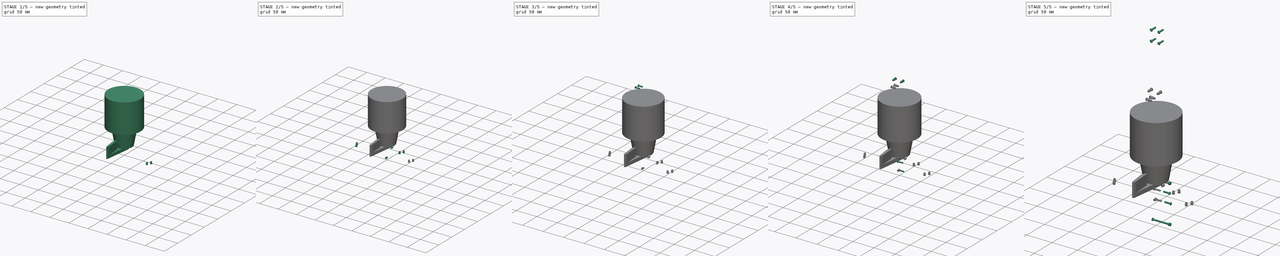
[diagram: build sequence overview — one tinted view per stage of 5, left to right]
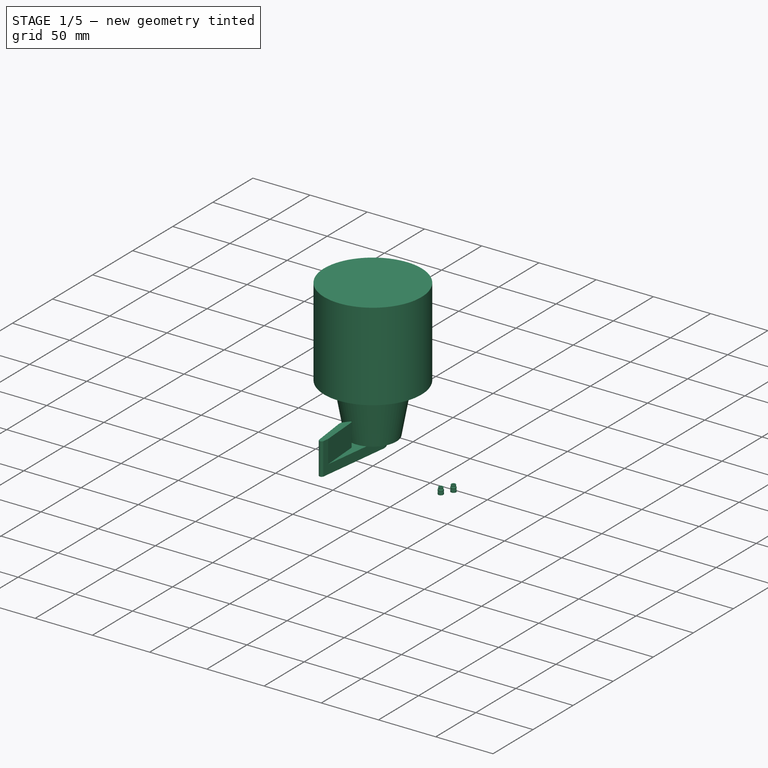
[diagram: stage 1 of 5 — iso view after this stage's code; geometry added in this stage tinted green]
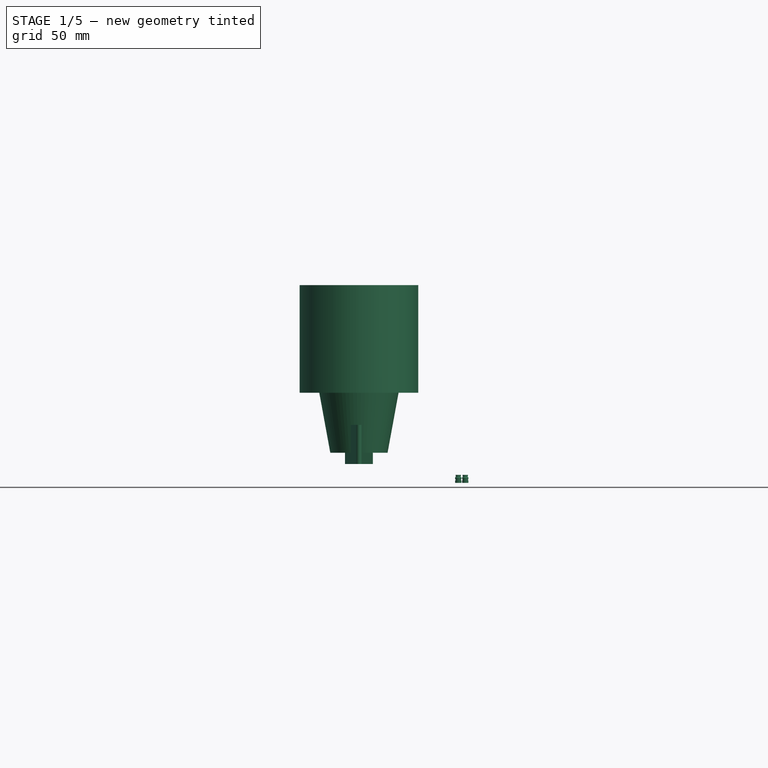
[diagram: stage 1 of 5 — front view after this stage's code; geometry added in this stage tinted green]
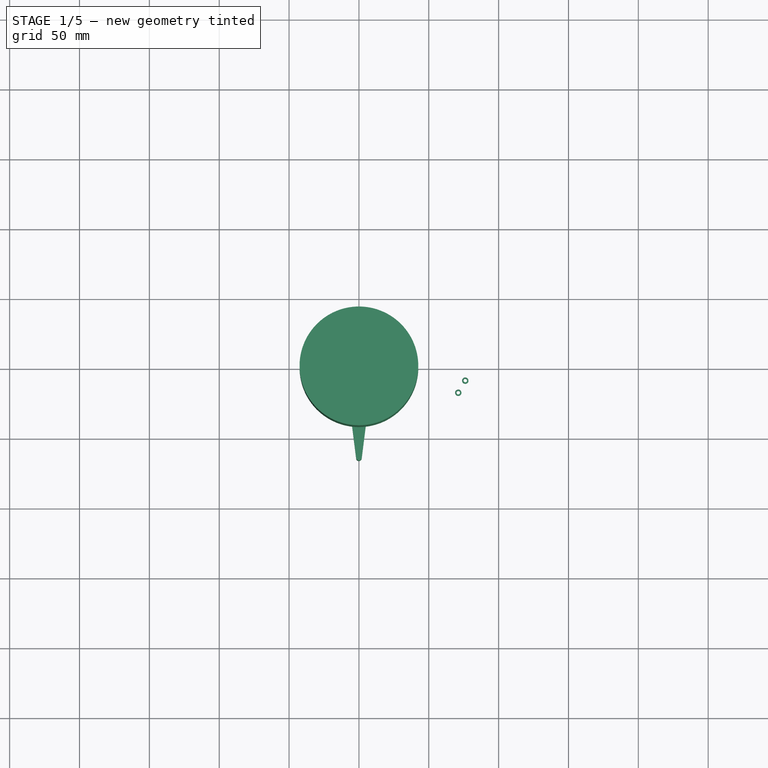
[diagram: stage 1 of 5 — top view after this stage's code; geometry added in this stage tinted green]
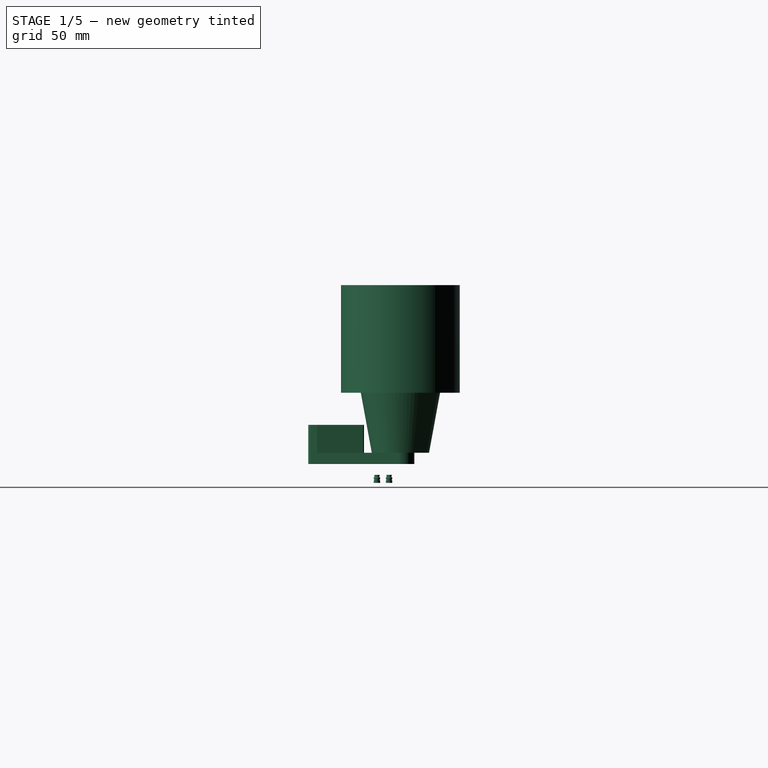
[diagram: stage 1 of 5 — right view after this stage's code; geometry added in this stage tinted green]
FCSTD DOCUMENT  (FreeCAD 2023.1102R14555 (Git shallow))
Label: main-actuator
License: All rights reserved
LicenseURL: https://en.wikipedia.org/wiki/All_rights_reserved
objects: Part::FeaturePython×54, Sketcher::SketchObject×32, App::Link×20, PartDesign::Pad×17, PartDesign::Chamfer×16, PartDesign::Fillet×14, PartDesign::Body×11, App::Part×10, PartDesign::Pocket×9, App::DocumentObjectGroup×8, Part::SubShapeBinder×5, TechDraw::DrawProjGroupItem×5, TechDraw::DrawProjGroup×5, PartDesign::Revolution×3, PartDesign::AdditivePipe×3, PartDesign::Line×3, PartDesign::Draft×2, PartDesign::Mirrored×2, Spreadsheet::Sheet×1, TechDraw::DrawSVGTemplate×1, +2 more types
note: 338 computed .brp shape members not serialized (recipe doc carries the construction recipe); baked Part::Feature solids carry a one-line shape summary decoded from their .brp
EXTERNAL_REF file=../mechanical-parts/generic-hardware.FCStd obj=Part015
EXTERNAL_REF file=../mechanical-parts/generic-hardware.FCStd obj=Body042
EXTERNAL_REF file=../mechanical-parts/generic-hardware.FCStd obj=Part034
EXTERNAL_REF file=finger-gripper.FCStd obj=Part004

FEATURE [App::DocumentObjectGroup] Group005  label="VisserieBrasInf"
  ClaimAllChildren = true
  ExportMode = 1
  Group = -> [Screw020,Screw021,Nut,Nut001,Insert013,Insert014,Insert015,Insert016,Screw022,Screw023,Screw024,Screw025]
  TreeRank = 219
  _GroupVersion = 1
FEATURE [App::Part] Part004  label="EnsembleBrasInferieur"
  ClaimAllChildren = false
  ExportMode = 1
  Group = -> [Body004,Link003,Link004,Link005,Link006,Link007,Group004,Screw020,Screw021,Nut,Nut001,Group005,Link010,Link011,Link012,Link013,Link014,Link015,Body005,Group006,Insert013,Insert014,Insert015,Insert016,Screw022,Screw023,Screw024,Screw025]
  Origin = -> Origin008
  Placement = pos=(-9,-16,71.5) rot=(1,0,0;-0.211497rad)
  TreeRank = 193
  _ExportChildren = -> [Group004,Group005,Body005,Group006]
  _GroupVersion = 1
  expr: Placement.Rotation.Angle = -Spreadsheet.AngleBras
FEATURE [App::Link] Link016  label="Link016(EnsembleServo)"
  AutoLinkLabel = true
  AutoPlacement = true
  LinkPlacement = pos=(61.0596,-5.24164,-40) rot=(0.935113,-0.250563,-0.250563;1.63783rad)
  LinkedObject = -> Part001
  Placement = pos=(61.0596,-5.24164,-40) rot=(0.935113,-0.250563,-0.250563;1.63783rad)
  SyncGroupVisibility = false
  TreeRank = 265
  _LinkVersion = 1
FEATURE [App::Link] Link017  label="Link017(*EnsembleServo)"
  AutoLinkLabel = true
  AutoPlacement = true
  LinkPlacement = pos=(-61.06,-5.242,-40) rot=(-0.186,0.695,0.695;3.5097rad)
  LinkedObject = -> Link016
  Placement = pos=(-61.06,-5.242,-40) rot=(-0.186,0.695,0.695;3.5097rad)
  SyncGroupVisibility = false
  TreeRank = 266
  _LinkVersion = 1
FEATURE [Part::SubShapeBinder] Import003  label="Import003(Fillet024)"
  BindCopyOnChange = 0
  BindMode = 0
  ClaimChildren = false
  Context = -> Part [Part003.Body006.Import003.]
  EdgeTolerance = 1e-06
  FillStyle = 0
  FixShape = 1
  Fuse = false
  InvalidShape = false
  MakeFace = false
  MergeEdges = true
  OffsetFill = false
  OffsetIntersection = false
  OffsetJoinType = 0
  OffsetOpenResult = false
  Outline = false
  PartialLoad = false
  Relative = true
  SplitEdges = false
  Support = -> [Link016[Link.Body041.Fillet024.Edge33]]
  TightBound = false
  TreeRank = 278
  ValidateShape = false
  _Version = 8
FEATURE [Part::SubShapeBinder] Import004  label="Import004(Fillet024)"
  BindCopyOnChange = 0
  BindMode = 0
  ClaimChildren = false
  Context = -> Part [Part003.Body006.Import004.]
  EdgeTolerance = 1e-06
  FillStyle = 0
  FixShape = 1
  Fuse = false
  InvalidShape = false
  MakeFace = false
  MergeEdges = true
  OffsetFill = false
  OffsetIntersection = false
  OffsetJoinType = 0
  OffsetOpenResult = false
  Outline = false
  PartialLoad = false
  Relative = true
  SplitEdges = false
  Support = -> [Link016[Link.Body041.Fillet024.Edge11]]
  TightBound = false
  TreeRank = 279
  ValidateShape = false
  _Version = 8
FEATURE [Part::SubShapeBinder] Import005  label="Import005(Fillet024)"
  BindCopyOnChange = 0
  BindMode = 0
  ClaimChildren = false
  Context = -> Part [Part003.Body006.Import005.]
  EdgeTolerance = 1e-06
  FillStyle = 0
  FixShape = 1
  Fuse = false
  InvalidShape = false
  MakeFace = false
  MergeEdges = true
  OffsetFill = false
  OffsetIntersection = false
  OffsetJoinType = 0
  OffsetOpenResult = false
  Outline = false
  PartialLoad = false
  Relative = true
  SplitEdges = false
  Support = -> [Link016[Link.Body041.Fillet024.Edge57]]
  TightBound = false
  TreeRank = 280
  ValidateShape = false
  _Version = 8
FEATURE [Sketcher::SketchObject] Sketch019
  ArcFitTolerance = 1e-06
  AttachmentSupport = -> [XY_Plane006]
  ExternalBSplineMaxDegree = 5
  ExternalBSplineTolerance = 0.0001
  ExternalGeometry = -> [Import003,Import005]
  FixShape = 1
  FullyConstrained = true
  InternalTolerance = 1e-06
  InvalidShape = false
  MakeInternals = false
  MapMode = 5
  Support = -> [XY_Plane006]
  TreeRank = 277
  ValidateShape = false
  sketch-geometry (22):
    g0: LineSegment StartX=30.0789 StartY=1.09811 StartZ=0 EndX=40.0789 EndY=18.4186 EndZ=0
    g1: LineSegment StartX=30.0789 StartY=1.09811 StartZ=0 EndX=64.7199 EndY=-18.9019 EndZ=0
    g2: LineSegment StartX=64.7199 StartY=-18.9019 StartZ=0 EndX=74.7199 EndY=-1.58138 EndZ=0
    g3: LineSegment StartX=74.7199 StartY=-1.58138 StartZ=0 EndX=81.6481 EndY=-5.58138 EndZ=0
    g4: LineSegment StartX=81.6481 StartY=-5.58138 StartZ=0 EndX=67.6481 EndY=-29.8301 EndZ=0
    g5: LineSegment StartX=0 StartY=-5 StartZ=0 EndX=19 EndY=-5 EndZ=0
    g6: LineSegment StartX=19 StartY=-5 StartZ=0 EndX=23.1507 EndY=5.09811 EndZ=0
    g7: LineSegment StartX=23.1507 StartY=5.09811 StartZ=0 EndX=33.1507 EndY=22.4186 EndZ=0
    g8: LineSegment StartX=33.1507 StartY=22.4186 StartZ=0 EndX=40.0789 EndY=18.4186 EndZ=0
    g9: LineSegment StartX=0 StartY=-5 StartZ=0 EndX=0 EndY=-17 EndZ=0
    g10: LineSegment StartX=0 StartY=-17 StartZ=0 EndX=20 EndY=-17 EndZ=0
    g11: ArcOfCircle CenterX=20 CenterY=-111.892 CenterZ=0 NormalX=0 NormalY=0 NormalZ=1 AngleXU=0 Radius=94.8921 StartAngle=1.04474 EndAngle=1.5708
    g12: LineSegment [constr] StartX=33.6817 StartY=16.3385 StartZ=0 EndX=76.117 EndY=-8.16151 EndZ=0
    g13: LineSegment [constr] StartX=76.117 StartY=-8.16151 StartZ=0 EndX=71.117 EndY=-16.8218 EndZ=0
    g14: LineSegment [constr] StartX=71.117 StartY=-16.8218 StartZ=0 EndX=28.6817 EndY=7.67823 EndZ=0
    g15: LineSegment [constr] StartX=28.6817 StartY=7.67823 StartZ=0 EndX=33.6817 EndY=16.3385 EndZ=0
    g16: LineSegment [constr] StartX=57.3994 StartY=8.41862 StartZ=0 EndX=47.3994 EndY=-8.90189 EndZ=0
    g17: GeomPoint [constr] X=52.3994 Y=-0.241635 Z=0
    g18: Circle CenterX=33.6817 CenterY=16.3385 CenterZ=0 NormalX=0 NormalY=0 NormalZ=1 AngleXU=0 Radius=2.05
    g19: Circle CenterX=28.6817 CenterY=7.67823 CenterZ=0 NormalX=0 NormalY=0 NormalZ=1 AngleXU=0 Radius=2.05
    g20: Circle CenterX=76.117 CenterY=-8.16151 CenterZ=0 NormalX=0 NormalY=0 NormalZ=1 AngleXU=0 Radius=2.05
    g21: Circle CenterX=71.117 CenterY=-16.8218 CenterZ=0 NormalX=0 NormalY=0 NormalZ=1 AngleXU=0 Radius=2.05
  constraints (57):
    c: Coincident(g0,g1)
    c: Coincident(g1,g2)
    c: Coincident(g2,g3)
    c: Coincident(g3,g4)
    c: PointOnObject(g5,g-2)
    c: Horizontal(g5)
    c: Coincident(g6,g7)
    c: Coincident(g7,g8)
    c: Coincident(g8,g0)
    c: Coincident(g9,g5)
    c: PointOnObject(g9,g-2)
    c: Coincident(g10,g9)
    c: Horizontal(g10)
    c: Coincident(g11,g4)
    c: Tangent(g11,g10) = 1.5708
    c: DistanceY(g5,g-1) = 5
    c: DistanceY(g9,g9) = 12
    c: Perpendicular(g1,g0)
    c: Perpendicular(g2,g1)
    c: Perpendicular(g2,g3)
    c: Perpendicular(g3,g4)
    c: Perpendicular(g0,g8)
    c: Perpendicular(g7,g8)
    c: Distance(g0) = 20
    c: Distance(g1) = 40
    c: Angle(g-1,g1) = 2.61799
    c: Equal(g2,g0)
    c: PointOnObject(g6,g1)
    c: Equal(g8,g3)
    c: Distance(g8) = 8
    c: Coincident(g-3,g0)
    c: DistanceX(g10,g10) = 20
    c: Distance(g4) = 28
    c: Coincident(g12,g13)
    c: Coincident(g13,g14)
    c: Coincident(g14,g15)
    c: Coincident(g15,g12)
    c: Parallel(g12,g14)
    c: Parallel(g13,g15)
    c: Perpendicular(g13,g12)
    c: Distance(g13) = 10
    c: Distance(g12) = 49
    c: PointOnObject(g16,g-3)
    c: Symmetric(g0,g1,g16)
    c: Symmetric(g12,g12,g16)
    c: Symmetric(g16,g16,g17)
    c: Coincident(g13,g-4)
    c: Coincident(g18,g12)
    c: Coincident(g19,g14)
    c: Coincident(g20,g12)
    c: Coincident(g21,g-4)
    c: Equal(g21,g20)
    c: Equal(g21,g19)
    c: Equal(g21,g18)
    c: Diameter(g21) = 4.1
    c: Coincident(g6,g5)
    c: DistanceX(g5,g5) = 19
FEATURE [PartDesign::Pad] Pad013
  AddSubType = 0
  AlongSketchNormal = false
  AutoTaperInnerAngle = true
  CheckUpToFaceLimits = true
  ClaimChildren = false
  Direction = (0,0,1)
  Fit = 0
  FitJoin = 0
  FixShape = 1
  InnerFit = 0
  InnerFitJoin = 0
  InvalidShape = false
  Length = 29.5
  Length2 = 10
  Linearize = true
  NewSolid = false
  Profile = -> Sketch019
  ReferenceAxis = -> Sketch019 [N_Axis]
  Refine = true
  Suppress = false
  TaperInnerAngle = 0
  TaperInnerAngleRev = 0
  TreeRank = 281
  Type = 0
  ValidateShape = false
  _ProfileBasedVersion = 1
FEATURE [Sketcher::SketchObject] Sketch020
  ArcFitTolerance = 1e-06
  AttachmentSupport = -> [Pad013]
  ExternalBSplineMaxDegree = 5
  ExternalBSplineTolerance = 0.0001
  ExternalGeometry = -> [Pad013]
  FixShape = 1
  FullyConstrained = true
  InternalTolerance = 1e-06
  InvalidShape = false
  MakeInternals = false
  MapMode = 5
  Placement = pos=(0,0,0) rot=(1,0,0;3.14159rad)
  Support = -> [Pad013]
  TreeRank = 282
  ValidateShape = false
  sketch-geometry (3):
    g0: LineSegment StartX=19 StartY=5 StartZ=0 EndX=23.1507 EndY=-5.09811 EndZ=0
    g1: LineSegment StartX=23.1507 StartY=-5.09811 StartZ=0 EndX=71.6481 EndY=22.9019 EndZ=0
    g2: LineSegment StartX=71.6481 StartY=22.9019 StartZ=0 EndX=67.6481 EndY=29.8301 EndZ=0
  constraints (8):
    c: Coincident(g0,g-7)
    c: PointOnObject(g0,g-7)
    c: Coincident(g1,g0)
    c: PointOnObject(g1,g-8)
    c: Coincident(g2,g1)
    c: Coincident(g2,g-8)
    c: Perpendicular(g1,g2)
    c: PointOnObject(g-9,g1)
FEATURE [PartDesign::Pad] Pad014
  AddSubType = 0
  AlongSketchNormal = false
  AutoTaperInnerAngle = true
  BaseFeature = -> Pad013
  CheckUpToFaceLimits = true
  ClaimChildren = false
  Direction = (0,0,-1)
  Fit = 0
  FitJoin = 0
  FixShape = 1
  InnerFit = 0
  InnerFitJoin = 0
  InvalidShape = false
  Length = 27
  Length2 = 10
  Linearize = true
  NewSolid = false
  Profile = -> Sketch020
  ReferenceAxis = -> Sketch020 [N_Axis]
  Refine = true
  Suppress = false
  TaperInnerAngle = 0
  TaperInnerAngleRev = 0
  TreeRank = 283
  Type = 0
  ValidateShape = false
  _ProfileBasedVersion = 1
FEATURE [PartDesign::Mirrored] Mirrored
  AddSubType = 0
  BaseFeature = -> Pad014
  CopyShape = false
  FixShape = 1
  InvalidShape = false
  MirrorPlane = -> Sketch020 [V_Axis]
  NewSolid = false
  OriginalSubs = -> [Pad014,Pad013]
  Originals = -> [Pad014,Pad013]
  ParallelTransform = true
  Refine = true
  SubTransform = true
  Suppress = false
  TreeRank = 284
  ValidateShape = false
  _Version = 3
FEATURE [Sketcher::SketchObject] Sketch021
  ArcFitTolerance = 1e-06
  AttachmentSupport = -> [Mirrored]
  ExternalBSplineMaxDegree = 5
  ExternalBSplineTolerance = 0.0001
  ExternalGeometry = -> [Mirrored]
  FixShape = 1
  FullyConstrained = true
  InternalTolerance = 1e-06
  InvalidShape = false
  MakeInternals = false
  MapMode = 5
  Placement = pos=(0,0,29.5) rot=(0,0,1;0rad)
  Support = -> [Mirrored]
  TreeRank = 285
  ValidateShape = false
  sketch-geometry (4):
    g0: LineSegment StartX=33.1507 StartY=22.4186 StartZ=0 EndX=81.6481 EndY=-5.58138 EndZ=0
    g1: LineSegment StartX=81.6481 StartY=-5.58138 StartZ=0 EndX=71.6481 EndY=-22.9019 EndZ=0
    g2: LineSegment StartX=71.6481 StartY=-22.9019 StartZ=0 EndX=23.1507 EndY=5.09811 EndZ=0
    g3: LineSegment StartX=23.1507 StartY=5.09811 StartZ=0 EndX=33.1507 EndY=22.4186 EndZ=0
  constraints (10):
    c: Coincident(g0,g1)
    c: Coincident(g1,g2)
    c: Coincident(g2,g3)
    c: Coincident(g3,g0)
    c: Parallel(g0,g2)
    c: Parallel(g1,g3)
    c: Coincident(g0,g-3)
    c: Perpendicular(g1,g0)
    c: Coincident(g0,g-4)
    c: Distance(g1) = 20
FEATURE [PartDesign::Pocket] Pocket007
  AddSubType = 1
  AlongSketchNormal = false
  AutoTaperInnerAngle = true
  BaseFeature = -> Mirrored
  CheckUpToFaceLimits = true
  ClaimChildren = false
  Direction = (0,0,-1)
  Fit = 0
  FitJoin = 0
  FixShape = 1
  InnerFit = 0
  InnerFitJoin = 0
  InvalidShape = false
  Length = 18
  Length2 = 10
  Linearize = true
  NewSolid = false
  Profile = -> Sketch021
  ReferenceAxis = -> Sketch021 [N_Axis]
  Refine = true
  Suppress = false
  TaperInnerAngle = 0
  TaperInnerAngleRev = 0
  TreeRank = 286
  Type = 0
  ValidateShape = false
  _ProfileBasedVersion = 1
  _Version = 1
FEATURE [PartDesign::Mirrored] Mirrored001
  AddSubType = 0
  BaseFeature = -> Pocket007
  CopyShape = false
  FixShape = 1
  InvalidShape = false
  MirrorPlane = -> Sketch021 [V_Axis]
  NewSolid = false
  OriginalSubs = -> [Pocket007]
  Originals = -> [Pocket007]
  ParallelTransform = true
  Refine = true
  SubTransform = true
  Suppress = false
  TreeRank = 287
  ValidateShape = false
  _Version = 3
FEATURE [Sketcher::SketchObject] Sketch022
  ArcFitTolerance = 1e-06
  AttachmentSupport = -> [Mirrored001]
  ExternalBSplineMaxDegree = 5
  ExternalBSplineTolerance = 0.0001
  FixShape = 1
  FullyConstrained = true
  InternalTolerance = 1e-06
  InvalidShape = false
  MakeInternals = false
  MapMode = 5
  Placement = pos=(0,0,29.5) rot=(0,0,1;0rad)
  Support = -> [Mirrored001]
  TreeRank = 288
  ValidateShape = false
  sketch-geometry (4):
    g0: LineSegment StartX=-49 StartY=8 StartZ=0 EndX=-19 EndY=8 EndZ=0
    g1: LineSegment StartX=-19 StartY=8 StartZ=0 EndX=-19 EndY=-8 EndZ=0
    g2: LineSegment StartX=-19 StartY=-8 StartZ=0 EndX=-49 EndY=-8 EndZ=0
    g3: LineSegment StartX=-49 StartY=-8 StartZ=0 EndX=-49 EndY=8 EndZ=0
  constraints (11):
    c: Coincident(g0,g1)
    c: Coincident(g1,g2)
    c: Coincident(g2,g3)
    c: Coincident(g3,g0)
    c: Horizontal(g0)
    c: Horizontal(g2)
    c: Vertical(g3)
    c: DistanceX(g0,g0) = 30
    c: Symmetric(g1,g0,g-1)
    c: DistanceY(g1,g1) = 16
    c: DistanceX(g1,g-1) = 19
FEATURE [PartDesign::Pocket] Pocket008
  AddSubType = 1
  AlongSketchNormal = false
  AutoTaperInnerAngle = true
  BaseFeature = -> Mirrored001
  CheckUpToFaceLimits = true
  ClaimChildren = false
  Direction = (0,0,-1)
  Fit = 0
  FitJoin = 0
  FixShape = 1
  InnerFit = 0
  InnerFitJoin = 0
  InvalidShape = false
  Length = 0
  Length2 = 10
  Linearize = true
  NewSolid = false
  Profile = -> Sketch022
  ReferenceAxis = -> Sketch022 [N_Axis]
  Refine = true
  Suppress = false
  TaperInnerAngle = 0
  TaperInnerAngleRev = 0
  TreeRank = 289
  Type = 3
  UpToFace = -> Mirrored001 [Face1]
  ValidateShape = false
  _ProfileBasedVersion = 1
  _Version = 1
FEATURE [Sketcher::SketchObject] Sketch025
  ArcFitTolerance = 1e-06
  AttachmentSupport = -> [YZ_Plane006]
  ExternalBSplineMaxDegree = 5
  ExternalBSplineTolerance = 0.0001
  FixShape = 1
  FullyConstrained = true
  InternalTolerance = 1e-06
  InvalidShape = false
  MakeInternals = false
  MapMode = 5
  Placement = pos=(0,0,0) rot=(0.57735,0.57735,0.57735;2.0944rad)
  Support = -> [YZ_Plane006]
  TreeRank = 296
  ValidateShape = false
  sketch-geometry (5):
    g0: Circle [constr] CenterX=0 CenterY=-22 CenterZ=0 NormalX=0 NormalY=0 NormalZ=1 AngleXU=0 Radius=8
    g1: ArcOfCircle CenterX=0 CenterY=-22 CenterZ=0 NormalX=0 NormalY=0 NormalZ=1 AngleXU=0 Radius=8 StartAngle=1.5708 EndAngle=4.71239
    g2: ArcOfCircle CenterX=10 CenterY=-22 CenterZ=0 NormalX=0 NormalY=0 NormalZ=1 AngleXU=0 Radius=8 StartAngle=4.71239 EndAngle=7.85398
    g3: LineSegment StartX=0 StartY=-30 StartZ=0 EndX=10 EndY=-30 EndZ=0
    g4: LineSegment StartX=10 StartY=-14 StartZ=0 EndX=1.8e-15 EndY=-14 EndZ=0
  constraints (12):
    c: PointOnObject(g0,g-2)
    c: Diameter(g0) = 16
    c: DistanceY(g0,g-1) = 22
    c: Tangent(g1,g3) = -1.5708
    c: Tangent(g3,g2) = -1.5708
    c: Tangent(g2,g4) = -1.5708
    c: Tangent(g4,g1) = -1.5708
    c: Equal(g1,g2)
    c: Horizontal(g3)
    c: Tangent(g1,g0) = -1.5708
    c: PointOnObject(g1,g0)
    c: DistanceX(g4,g4) = 10
FEATURE [PartDesign::Pocket] Pocket011
  AddSubType = 1
  AlongSketchNormal = false
  AutoTaperInnerAngle = true
  BaseFeature = -> Pocket008
  CheckUpToFaceLimits = true
  ClaimChildren = false
  Direction = (-1,3e-16,-3e-16)
  Fit = 0
  FitJoin = 0
  FixShape = 1
  InnerFit = 0
  InnerFitJoin = 0
  InvalidShape = false
  Length = 50
  Length2 = 10
  Linearize = true
  Midplane = true
  NewSolid = false
  Profile = -> Sketch025
  ReferenceAxis = -> Sketch025 [N_Axis]
  Refine = true
  Suppress = false
  TaperInnerAngle = 0
  TaperInnerAngleRev = 0
  TreeRank = 297
  Type = 0
  ValidateShape = false
  _ProfileBasedVersion = 1
  _Version = 1
FEATURE [Part::FeaturePython] Insert023  label="M3x5.74-Insert034"  # Fasteners workbench fastener (typed FeaturePython)
  FixShape = 1
  InvalidShape = false
  Placement = pos=(71.117,-16.8218,-21.5) rot=(-1,0,0;3.14159rad)
  TreeRank = 339
  ValidateShape = false
  baseObject = -> Body006 [?Edge268]
  diameter = 3
  externalDiam = 4.55
  invert = true
  leftHanded = false
  length = 5.74
  matchOuter = false
  offset = 0
  thread = false
  type = 30
FEATURE [Part::FeaturePython] Insert024  label="M3x5.74-Insert035"  # Fasteners workbench fastener (typed FeaturePython)
  FixShape = 1
  InvalidShape = false
  Placement = pos=(76.117,-8.16151,-21.5) rot=(-1,0,0;3.14159rad)
  TreeRank = 340
  ValidateShape = false
  baseObject = -> Body006 [?Edge263]
  diameter = 3
  externalDiam = 4.55
  invert = true
  leftHanded = false
  length = 5.74
  matchOuter = false
  offset = 0
  thread = false
  type = 30
FEATURE [App::DocumentObjectGroup] Group003  label="VisserieSupportPince"
  ClaimAllChildren = true
  ExportMode = 1
  Group = -> [Insert008,Insert009,Insert010,Insert011,Insert012,Washer,Insert017,Insert018,Insert019,Insert020,Insert021,Insert022,Insert023,Insert024]
  TreeRank = 190
  _GroupVersion = 1
FEATURE [Sketcher::SketchObject] Sketch031
  ArcFitTolerance = 1e-06
  AttachmentSupport = -> [XY_Plane008]
  ExternalBSplineMaxDegree = 5
  ExternalBSplineTolerance = 0.0001
  FixShape = 1
  FullyConstrained = false
  InternalTolerance = 1e-06
  InvalidShape = false
  MakeInternals = false
  MapMode = 5
  Support = -> [XY_Plane008]
  TreeRank = 375
  ValidateShape = false
  sketch-geometry (4):
    g0: Circle [constr] CenterX=-35.2185 CenterY=-33.8266 CenterZ=0 NormalX=0 NormalY=0 NormalZ=1 AngleXU=0 Radius=25
    g1: ArcOfCircle CenterX=0 CenterY=0 CenterZ=0 NormalX=0 NormalY=0 NormalZ=1 AngleXU=0 Radius=10 StartAngle=6.15786 EndAngle=9.55011
    g2: LineSegment StartX=-9.92157 StartY=-1.25 StartZ=0 EndX=0 EndY=-80 EndZ=0
    g3: LineSegment StartX=9.92157 StartY=-1.25 StartZ=0 EndX=0 EndY=-80 EndZ=0
  constraints (8):
    c: Diameter(g0) = 50
    c: Coincident(g1,g-1)
    c: Radius(g1) = 10
    c: PointOnObject(g2,g-2)
    c: Coincident(g3,g2)
    c: Tangent(g2,g1) = -1.5708
    c: Tangent(g3,g1) = 1.5708
    c: DistanceY(g2,g1) = 80
FEATURE [PartDesign::Pad] Pad020
  AddSubType = 0
  AlongSketchNormal = false
  AutoTaperInnerAngle = true
  CheckUpToFaceLimits = true
  ClaimChildren = false
  Direction = (0,0,1)
  Fit = 0
  FitJoin = 0
  FixShape = 1
  InnerFit = 0
  InnerFitJoin = 0
  InvalidShape = false
  Length = 8
  Length2 = 10
  Linearize = true
  NewSolid = false
  Profile = -> Sketch031
  ReferenceAxis = -> Sketch031 [N_Axis]
  Refine = true
  Reversed = true
  Suppress = false
  TaperInnerAngle = 0
  TaperInnerAngleRev = 0
  TreeRank = 376
  Type = 0
  ValidateShape = false
  _ProfileBasedVersion = 1
FEATURE [Sketcher::SketchObject] Sketch032
  ArcFitTolerance = 1e-06
  AttachmentSupport = -> [Pad020]
  ExternalBSplineMaxDegree = 5
  ExternalBSplineTolerance = 0.0001
  ExternalGeometry = -> [Pad020]
  FixShape = 1
  FullyConstrained = false
  InternalTolerance = 1e-06
  InvalidShape = false
  MakeInternals = false
  MapMode = 5
  Support = -> [Pad020]
  TreeRank = 377
  ValidateShape = false
  sketch-geometry (4):
    g0: LineSegment StartX=0 StartY=-80 StartZ=0 EndX=-6.06661 EndY=-31.8478 EndZ=0
    g1: LineSegment StartX=-6.06661 StartY=-31.8478 StartZ=0 EndX=0 EndY=-24.5065 EndZ=0
    g2: LineSegment StartX=0 StartY=-80 StartZ=0 EndX=2.57329 EndY=-59.5752 EndZ=0
    g3: LineSegment StartX=2.57329 StartY=-59.5752 StartZ=0 EndX=0 EndY=-24.5065 EndZ=0
  constraints (8):
    c: Coincident(g0,g-4)
    c: PointOnObject(g0,g-3)
    c: Coincident(g1,g0)
    c: PointOnObject(g1,g-2)
    c: Coincident(g2,g0)
    c: PointOnObject(g2,g-4)
    c: Coincident(g2,g3)
    c: Coincident(g3,g1)
FEATURE [PartDesign::Pad] Pad021
  AddSubType = 0
  AlongSketchNormal = false
  AutoTaperInnerAngle = true
  BaseFeature = -> Pad020
  CheckUpToFaceLimits = true
  ClaimChildren = false
  Direction = (0,0,1)
  Fit = 0
  FitJoin = 0
  FixShape = 1
  InnerFit = 0
  InnerFitJoin = 0
  InvalidShape = false
  Length = 20
  Length2 = 10
  Linearize = true
  NewSolid = false
  Profile = -> Sketch032
  ReferenceAxis = -> Sketch032 [N_Axis]
  Refine = true
  Suppress = false
  TaperInnerAngle = 0
  TaperInnerAngleRev = 0
  TreeRank = 378
  Type = 0
  ValidateShape = false
  _ProfileBasedVersion = 1
FEATURE [PartDesign::Fillet] Fillet018
  AddSubType = 0
  Base = -> Pad021 [Edge18]
  BaseFeature = -> Pad021
  FixShape = 1
  InvalidShape = false
  NewSolid = false
  Radius = 2
  Refine = true
  SupportTransform = false
  Suppress = false
  TreeRank = 379
  UseAllEdges = false
  ValidateShape = false
FEATURE [PartDesign::Fillet] Fillet019
  AddSubType = 0
  Base = -> Fillet018 [Edge9]
  BaseFeature = -> Fillet018
  FixShape = 1
  InvalidShape = false
  NewSolid = false
  Radius = 6
  Refine = true
  SupportTransform = false
  Suppress = false
  TreeRank = 380
  UseAllEdges = false
  ValidateShape = false
FEATURE [PartDesign::Fillet] Fillet020
  AddSubType = 0
  Base = -> Fillet019 [Edge24]
  BaseFeature = -> Fillet019
  FixShape = 1
  InvalidShape = false
  NewSolid = false
  Radius = 1
  Refine = true
  SupportTransform = false
  Suppress = false
  TreeRank = 381
  UseAllEdges = false
  ValidateShape = false
FEATURE [PartDesign::Body] Body008  label="ProtoPince"
  AutoGroupSolids = false
  ClaimAllChildren = false
  ExportMode = 0
  FixShape = 1
  Group = -> [Sketch031,Pad020,Sketch032,Pad021,Fillet018,Fillet019,Fillet020]
  InvalidShape = false
  Origin = -> Origin013
  Placement = pos=(61.06,-5.24,-40) rot=(0,0,1;1.0472rad)
  SingleSolid = true
  Tip = -> Fillet020
  TreeRank = 374
  ValidateShape = false
  _ExportChildren = -> [Pad020,Pad021,Fillet018,Fillet019,Fillet020]
  _GroupVersion = 1
FEATURE [TechDraw::DrawSVGTemplate] Template
  Height = 210
  Orientation = 1
  Template = <path>
  TreeRank = 385
  Width = 297
FEATURE [TechDraw::DrawProjGroupItem] ProjItem  label="Front"
  CoarseView = false
  Direction = (0,-1,0)
  Focus = 100
  HardHidden = false
  IsoCount = 0
  IsoHidden = false
  IsoVisible = false
  LockPosition = true
  Perspective = false
  Rotation = 0
  RotationVector = (0,0,-1)
  ScaleType = 2
  ScrubCount = 0
  SeamHidden = false
  SeamVisible = false
  SmoothHidden = false
  SmoothVisible = false
  TreeRank = 388
  Type = 0
  X = 0
  XDirection = (0,0,-1)
  Y = 0
FEATURE [TechDraw::DrawProjGroup] ProjGroup
  Anchor = -> ProjItem
  AutoDistribute = true
  LockPosition = false
  ProjectionType = 0
  Rotation = 0
  ScaleType = 0
  TreeRank = 389
  Views = -> [ProjItem]
  X = 134.133
  Y = 186.031
  spacingX = 15
  spacingY = 15
FEATURE [TechDraw::DrawProjGroupItem] ProjItem001  label="Front001"
  CoarseView = false
  Direction = (-1,0,0)
  Focus = 100
  HardHidden = false
  IsoCount = 0
  IsoHidden = false
  IsoVisible = false
  LockPosition = true
  Perspective = false
  Rotation = 0
  RotationVector = (0,0,-1)
  ScaleType = 2
  ScrubCount = 0
  SeamHidden = false
  SeamVisible = false
  SmoothHidden = false
  SmoothVisible = false
  Source = -> [Fillet007]
  TreeRank = 391
  Type = 0
  X = 0
  XDirection = (0,0,-1)
  Y = 0
FEATURE [TechDraw::DrawProjGroup] ProjGroup001
  Anchor = -> ProjItem001
  AutoDistribute = true
  LockPosition = false
  ProjectionType = 0
  Rotation = 0
  ScaleType = 0
  Source = -> [Fillet007]
  TreeRank = 392
  Views = -> [ProjItem001]
  X = 52.5268
  Y = 152.412
  spacingX = 15
  spacingY = 15
FEATURE [TechDraw::DrawProjGroupItem] ProjItem002  label="Front002"
  CoarseView = false
  Direction = (-1,0,0)
  Focus = 100
  HardHidden = false
  IsoCount = 0
  IsoHidden = false
  IsoVisible = false
  LockPosition = true
  Perspective = false
  Rotation = 0
  RotationVector = (0,0,-1)
  ScaleType = 2
  ScrubCount = 0
  SeamHidden = false
  SeamVisible = false
  SmoothHidden = false
  SmoothVisible = false
  Source = -> [Fillet006]
  TreeRank = 394
  Type = 0
  X = 0
  XDirection = (0,0,-1)
  Y = 0
FEATURE [TechDraw::DrawProjGroup] ProjGroup002
  Anchor = -> ProjItem002
  AutoDistribute = true
  LockPosition = false
  ProjectionType = 0
  Rotation = 0
  ScaleType = 0
  Source = -> [Fillet006]
  TreeRank = 395
  Views = -> [ProjItem002]
  X = 192.782
  Y = 140.741
  spacingX = 15
  spacingY = 15
FEATURE [TechDraw::DrawProjGroupItem] ProjItem003  label="Front003"
  CoarseView = false
  Direction = (1,0,0)
  Focus = 100
  HardHidden = false
  IsoCount = 0
  IsoHidden = false
  IsoVisible = false
  LockPosition = true
  Perspective = false
  Rotation = 0
  RotationVector = (0,0,-1)
  ScaleType = 2
  ScrubCount = 0
  SeamHidden = false
  SeamVisible = false
  SmoothHidden = false
  SmoothVisible = false
  Source = -> [Fillet006]
  TreeRank = 397
  Type = 0
  X = 0
  XDirection = (0,0,-1)
  Y = 0
FEATURE [TechDraw::DrawProjGroup] ProjGroup003
  Anchor = -> ProjItem003
  AutoDistribute = true
  LockPosition = false
  ProjectionType = 0
  Rotation = 0
  ScaleType = 0
  Source = -> [Fillet006]
  TreeRank = 398
  Views = -> [ProjItem003]
  X = 151.121
  Y = 157.971
  spacingX = 15
  spacingY = 15
FEATURE [TechDraw::DrawProjGroupItem] ProjItem004  label="Front004"
  CoarseView = false
  Direction = (-1,0,0)
  Focus = 100
  HardHidden = false
  IsoCount = 0
  IsoHidden = false
  IsoVisible = false
  LockPosition = true
  Perspective = false
  Rotation = 0
  RotationVector = (0,0,-1)
  ScaleType = 2
  ScrubCount = 0
  SeamHidden = false
  SeamVisible = false
  SmoothHidden = false
  SmoothVisible = false
  Source = -> [Fillet007]
  TreeRank = 400
  Type = 0
  X = 0
  XDirection = (0,0,-1)
  Y = 0
FEATURE [TechDraw::DrawProjGroup] ProjGroup004
  Anchor = -> ProjItem004
  AutoDistribute = true
  LockPosition = false
  ProjectionType = 0
  Rotation = 0
  ScaleType = 0
  Source = -> [Fillet007]
  TreeRank = 401
  Views = -> [ProjItem004]
  X = 104.182
  Y = 131.195
  spacingX = 15
  spacingY = 15
FEATURE [TechDraw::DrawPage] Page  label="Laser3mm-MainActuator"
  KeepUpdated = true
  NextBalloonIndex = 1
  ProjectionType = 0
  Template = -> Template
  TreeRank = 386
  Views = -> [ProjGroup,ProjGroup001,ProjGroup002,ProjGroup003,ProjGroup004]
FEATURE [Sketcher::SketchObject] Sketch034
  ArcFitTolerance = 1e-06
  AttachmentSupport = -> [YZ_Plane010]
  ExternalBSplineMaxDegree = 5
  ExternalBSplineTolerance = 0.0001
  FixShape = 1
  FullyConstrained = true
  InternalTolerance = 1e-06
  InvalidShape = false
  MakeInternals = false
  MapMode = 5
  Placement = pos=(0,0,0) rot=(0.57735,0.57735,0.57735;2.0944rad)
  Support = -> [YZ_Plane010]
  TreeRank = 438
  ValidateShape = false
  sketch-geometry (4):
    g0: LineSegment StartX=0 StartY=0 StartZ=0 EndX=20.25 EndY=0 EndZ=0
    g1: LineSegment StartX=20.25 StartY=0 StartZ=0 EndX=24.75 EndY=43 EndZ=0
    g2: LineSegment StartX=24.75 StartY=43 StartZ=0 EndX=0 EndY=43 EndZ=0
    g3: LineSegment StartX=0 StartY=43 StartZ=0 EndX=0 EndY=0 EndZ=0
  constraints (11):
    c: Coincident(g0,g-1)
    c: PointOnObject(g0,g-1)
    c: Coincident(g1,g0)
    c: Coincident(g2,g1)
    c: PointOnObject(g2,g-2)
    c: Horizontal(g2)
    c: Coincident(g3,g2)
    c: Coincident(g3,g0)
    c: DistanceX(g0,g0) = 20.25
    c: DistanceY(g3,g3) = 43
    c: DistanceX(g2,g2) = 24.75
FEATURE [PartDesign::Revolution] Revolution
  AddSubType = 0
  Angle = 360
  Axis = (-2e-16,3e-16,1)
  Base = (0,0,0)
  ClaimChildren = false
  Fit = 0
  FitJoin = 0
  FixShape = 1
  InnerFit = 0
  InnerFitJoin = 0
  InvalidShape = false
  Linearize = true
  NewSolid = false
  Profile = -> Sketch034
  ReferenceAxis = -> Sketch034 [V_Axis]
  Refine = true
  Reversed = true
  Suppress = false
  TreeRank = 439
  ValidateShape = false
  _ProfileBasedVersion = 1
FEATURE [PartDesign::Body] Body009  label="PotPlante"
  AutoGroupSolids = false
  ClaimAllChildren = false
  ExportMode = 0
  FixShape = 1
  Group = -> [Sketch034,Revolution]
  InvalidShape = false
  Origin = -> Origin015
  SingleSolid = true
  Tip = -> Revolution
  TreeRank = 426
  ValidateShape = false
  _ExportChildren = -> [Revolution]
  _GroupVersion = 1
FEATURE [Sketcher::SketchObject] Sketch035
  ArcFitTolerance = 1e-06
  AttachmentSupport = -> [YZ_Plane011]
  ExternalBSplineMaxDegree = 5
  ExternalBSplineTolerance = 0.0001
  FixShape = 1
  FullyConstrained = true
  InternalTolerance = 1e-06
  InvalidShape = false
  MakeInternals = false
  MapMode = 5
  Placement = pos=(0,0,0) rot=(0.57735,0.57735,0.57735;2.0944rad)
  Support = -> [YZ_Plane011]
  TreeRank = 440
  ValidateShape = false
  sketch-geometry (4):
    g0: LineSegment StartX=0 StartY=43 StartZ=0 EndX=42.5 EndY=43 EndZ=0
    g1: LineSegment StartX=42.5 StartY=43 StartZ=0 EndX=42.5 EndY=120 EndZ=0
    g2: LineSegment StartX=42.5 StartY=120 StartZ=0 EndX=0 EndY=120 EndZ=0
    g3: LineSegment StartX=0 StartY=120 StartZ=0 EndX=0 EndY=43 EndZ=0
  constraints (12):
    c: Coincident(g0,g1)
    c: Coincident(g1,g2)
    c: Coincident(g2,g3)
    c: Coincident(g3,g0)
    c: Horizontal(g0)
    c: Horizontal(g2)
    c: Vertical(g1)
    c: Vertical(g3)
    c: PointOnObject(g0,g-2)
    c: DistanceY(g-1,g0) = 43
    c: DistanceY(g2) = 120
    c: DistanceX(g2,g2) = 42.5
FEATURE [PartDesign::Revolution] Revolution001
  AddSubType = 0
  Angle = 360
  Axis = (-2e-16,3e-16,1)
  Base = (0,0,0)
  ClaimChildren = false
  Fit = 0
  FitJoin = 0
  FixShape = 1
  InnerFit = 0
  InnerFitJoin = 0
  InvalidShape = false
  Linearize = true
  NewSolid = false
  Profile = -> Sketch035
  ReferenceAxis = -> Sketch035 [V_Axis]
  Refine = true
  Reversed = true
  Suppress = false
  TreeRank = 441
  ValidateShape = false
  _ProfileBasedVersion = 1
FEATURE [PartDesign::Body] Body010  label="Feuillage"
  AutoGroupSolids = false
  ClaimAllChildren = false
  ExportMode = 0
  FixShape = 1
  Group = -> [Sketch035,Revolution001]
  InvalidShape = false
  Origin = -> Origin016
  SingleSolid = true
  Tip = -> Revolution001
  TreeRank = 436
  ValidateShape = false
  _ExportChildren = -> [Revolution001]
  _GroupVersion = 1
FEATURE [Sketcher::SketchObject] Sketch036
  ArcFitTolerance = 1e-06
  AttachmentSupport = -> [YZ_Plane012]
  ExternalBSplineMaxDegree = 5
  ExternalBSplineTolerance = 0.0001
  FixShape = 1
  FullyConstrained = true
  InternalTolerance = 1e-06
  InvalidShape = false
  MakeInternals = false
  MapMode = 5
  Placement = pos=(0,0,0) rot=(0.57735,0.57735,0.57735;2.0944rad)
  Support = -> [YZ_Plane012]
  TreeRank = 452
  ValidateShape = false
  sketch-geometry (4):
    g0: LineSegment StartX=0 StartY=0 StartZ=0 EndX=20.5 EndY=0 EndZ=0
    g1: LineSegment StartX=20.5 StartY=0 StartZ=0 EndX=42.5 EndY=120 EndZ=0
    g2: LineSegment StartX=42.5 StartY=120 StartZ=0 EndX=0 EndY=120 EndZ=0
    g3: LineSegment StartX=0 StartY=120 StartZ=0 EndX=0 EndY=0 EndZ=0
  constraints (11):
    c: Coincident(g0,g-1)
    c: PointOnObject(g0,g-1)
    c: Coincident(g1,g0)
    c: Coincident(g2,g1)
    c: PointOnObject(g2,g-2)
    c: Horizontal(g2)
    c: Coincident(g3,g2)
    c: Coincident(g3,g0)
    c: DistanceY(g2) = 120
    c: DistanceX(g2,g2) = 42.5
    c: DistanceX(g0,g0) = 20.5
FEATURE [PartDesign::Revolution] Revolution002
  AddSubType = 0
  Angle = 360
  Axis = (-2e-16,3e-16,1)
  Base = (0,0,0)
  ClaimChildren = false
  Fit = 0
  FitJoin = 0
  FixShape = 1
  InnerFit = 0
  InnerFitJoin = 0
  InvalidShape = false
  Linearize = true
  NewSolid = false
  Profile = -> Sketch036
  ReferenceAxis = -> Sketch036 [V_Axis]
  Refine = true
  Reversed = true
  Suppress = false
  TreeRank = 453
  ValidateShape = false
  _ProfileBasedVersion = 1
FEATURE [App::Link] Link018  label="Link018(Plante)"
  AutoLinkLabel = true
  AutoPlacement = true
  LinkPlacement = pos=(35,-69,-13) rot=(0,0,1;0rad)
  LinkedObject = -> Part005
  Placement = pos=(35,-69,-13) rot=(0,0,1;0rad)
  SyncGroupVisibility = false
  TreeRank = 457
  _LinkVersion = 1
FEATURE [Sketcher::SketchObject] Sketch037
  ArcFitTolerance = 1e-06
  AttachmentSupport = -> [YZ_Plane006]
  ExternalBSplineMaxDegree = 5
  ExternalBSplineTolerance = 0.0001
  ExternalGeometry = -> [Pocket011]
  FixShape = 1
  FullyConstrained = true
  InternalTolerance = 1e-06
  InvalidShape = false
  MakeInternals = false
  MapMode = 5
  Placement = pos=(0,0,0) rot=(0.57735,0.57735,0.57735;2.0944rad)
  Support = -> [YZ_Plane006]
  TreeRank = 470
  ValidateShape = false
  sketch-geometry (7):
    g0: LineSegment StartX=-23.7375 StartY=-27 StartZ=0 EndX=-17 EndY=9.75 EndZ=0
    g1: LineSegment StartX=-17 StartY=9.75 StartZ=0 EndX=-17 EndY=-27 EndZ=0
    g2: LineSegment StartX=-17 StartY=-27 StartZ=0 EndX=-23.7375 EndY=-27 EndZ=0
    g3: LineSegment [constr] StartX=-25.25 StartY=-35.25 StartZ=0 EndX=-3.25 EndY=84.75 EndZ=0
    g4: LineSegment [constr] StartX=-3.25 StartY=84.75 StartZ=0 EndX=-45.75 EndY=84.75 EndZ=0
    g5: LineSegment [constr] StartX=-45.75 StartY=84.75 StartZ=0 EndX=-45.75 EndY=-35.25 EndZ=0
    g6: LineSegment [constr] StartX=-45.75 StartY=-35.25 StartZ=0 EndX=-25.25 EndY=-35.25 EndZ=0
  constraints (20):
    c: PointOnObject(g0,g-3)
    c: PointOnObject(g0,g-4)
    c: Coincident(g1,g0)
    c: Coincident(g1,g-4)
    c: Coincident(g2,g1)
    c: Coincident(g2,g0)
    c: Coincident(g4,g3)
    c: Horizontal(g4)
    c: Coincident(g5,g4)
    c: Vertical(g5)
    c: Coincident(g6,g5)
    c: Coincident(g6,g3)
    c: Horizontal(g6)
    c: DistanceY(g3,g-1) = 35.25
    c: DistanceX(g6,g6) = 20.5
    c: DistanceX(g4,g4) = 42.5
    c: DistanceY(g5,g5) = 120
    c: PointOnObject(g0,g3)
    c: PointOnObject(g0,g3)
    c: DistanceY(g3,g0) = 45
FEATURE [PartDesign::AdditivePipe] Pipe
  AddSubType = 0
  AuxilleryCurvelinear = true
  AuxillerySpineTangent = false
  BaseFeature = -> Pocket011
  Binormal = (0,0,0)
  ClaimChildren = false
  Fit = 0
  FitJoin = 0
  FixShape = 1
  InnerFit = 0
  InnerFitJoin = 0
  InvalidShape = false
  Linearize = true
  Mode = 0
  MoveProfile = false
  NewSolid = false
  Profile = -> Sketch037
  Refine = true
  RotateProfile = false
  Spine = -> Pocket011 [Edge61,Edge60,Edge62]
  SpineTangent = false
  Suppress = false
  Transformation = 0
  Transition = 1
  TreeRank = 471
  ValidateShape = false
  _ProfileBasedVersion = 2
FEATURE [Sketcher::SketchObject] Sketch038
  ArcFitTolerance = 1e-06
  AttachmentSupport = -> [YZ_Plane006]
  ExternalBSplineMaxDegree = 5
  ExternalBSplineTolerance = 0.0001
  ExternalGeometry = -> [Pipe]
  FixShape = 1
  FullyConstrained = true
  InternalTolerance = 1e-06
  InvalidShape = false
  MakeInternals = false
  MapMode = 5
  Placement = pos=(0,0,0) rot=(0.57735,0.57735,0.57735;2.0944rad)
  Support = -> [YZ_Plane006]
  TreeRank = 472
  ValidateShape = false
  sketch-geometry (3):
    g0: LineSegment StartX=-17 StartY=9.75 StartZ=0 EndX=-13.3792 EndY=29.5 EndZ=0
    g1: LineSegment StartX=-13.3792 StartY=29.5 StartZ=0 EndX=-17 EndY=29.5 EndZ=0
    g2: LineSegment StartX=-17 StartY=29.5 StartZ=0 EndX=-17 EndY=9.75 EndZ=0
  constraints (7):
    c: PointOnObject(g0,g-4)
    c: Coincident(g1,g0)
    c: PointOnObject(g1,g-4)
    c: Coincident(g2,g1)
    c: Vertical(g2)
    c: Tangent(g0,g-3) = -1.5708
    c: Coincident(g0,g2)
FEATURE [PartDesign::SubtractivePipe] Pipe001
  AddSubType = 1
  AuxilleryCurvelinear = true
  AuxillerySpineTangent = false
  BaseFeature = -> Pipe
  Binormal = (0,0,0)
  ClaimChildren = false
  Fit = 0
  FitJoin = 0
  FixShape = 1
  InnerFit = 0
  InnerFitJoin = 0
  InvalidShape = false
  Linearize = true
  Mode = 0
  MoveProfile = false
  NewSolid = false
  Profile = -> Sketch038
  Refine = true
  RotateProfile = false
  Spine = -> Pipe [Edge64,Edge65,Edge63]
  SpineTangent = false
  Suppress = false
  Transformation = 0
  Transition = 1
  TreeRank = 473
  ValidateShape = false
  _ProfileBasedVersion = 2
FEATURE [Sketcher::SketchObject] Sketch039
  ArcFitTolerance = 1e-06
  AttachmentSupport = -> [YZ_Plane006]
  ExternalBSplineMaxDegree = 5
  ExternalBSplineTolerance = 0.0001
  ExternalGeometry = -> [Pipe001]
  FixShape = 1
  FullyConstrained = true
  InternalTolerance = 1e-06
  InvalidShape = false
  MakeInternals = false
  MapMode = 5
  Placement = pos=(0,0,0) rot=(0.57735,0.57735,0.57735;2.0944rad)
  Support = -> [YZ_Plane006]
  TreeRank = 474
  ValidateShape = false
  sketch-geometry (4):
    g0: LineSegment StartX=-13.3792 StartY=29.5 StartZ=0 EndX=-3.20417 EndY=85 EndZ=0
    g1: LineSegment StartX=-3.20417 StartY=85 StartZ=0 EndX=-1.20417 EndY=85 EndZ=0
    g2: LineSegment StartX=-1.20417 StartY=85 StartZ=0 EndX=-9.37917 EndY=29.5 EndZ=0
    g3: LineSegment StartX=-9.37917 StartY=29.5 StartZ=0 EndX=-13.3792 EndY=29.5 EndZ=0
  constraints (10):
    c: Coincident(g1,g0)
    c: Coincident(g2,g1)
    c: Coincident(g3,g2)
    c: Horizontal(g3)
    c: Tangent(g0,g-3) = -1.5708
    c: Horizontal(g1)
    c: DistanceY(g-1,g1) = 85
    c: DistanceX(g1,g1) = 2
    c: Coincident(g3,g0)
    c: DistanceX(g3,g3) = 4
FEATURE [PartDesign::AdditivePipe] Pipe002
  AddSubType = 0
  AuxilleryCurvelinear = true
  AuxillerySpineTangent = false
  BaseFeature = -> Pipe001
  Binormal = (0,0,0)
  ClaimChildren = false
  Fit = 0
  FitJoin = 0
  FixShape = 1
  InnerFit = 0
  InnerFitJoin = 0
  InvalidShape = false
  Linearize = true
  Mode = 0
  MoveProfile = false
  NewSolid = false
  Profile = -> Sketch039
  Refine = true
  RotateProfile = false
  Spine = -> Pipe001 [Edge73,Edge74,Edge72]
  SpineTangent = false
  Suppress = false
  Transformation = 0
  Transition = 1
  TreeRank = 475
  ValidateShape = false
  _ProfileBasedVersion = 2
FEATURE [Sketcher::SketchObject] Sketch040
  ArcFitTolerance = 1e-06
  AttachmentSupport = -> [Pipe002]
  ExternalBSplineMaxDegree = 5
  ExternalBSplineTolerance = 0.0001
  ExternalGeometry = -> [Pipe002]
  FixShape = 1
  FullyConstrained = true
  InternalTolerance = 1e-06
  InvalidShape = false
  MakeInternals = false
  MapMode = 5
  Placement = pos=(0,0,-27) rot=(1,0,0;3.14159rad)
  Support = -> [Pipe002]
  TreeRank = 476
  ValidateShape = false
  sketch-geometry (8):
    g0: GeomPoint [constr] X=1e-16 Y=47.7375 Z=0
    g1: ArcOfCircle CenterX=35 CenterY=47.4605 CenterZ=0 NormalX=0 NormalY=0 NormalZ=1 AngleXU=0 Radius=28.0674 StartAngle=3.13368 EndAngle=4.14856
    g2: ArcOfCircle CenterX=-35 CenterY=47.4605 CenterZ=0 NormalX=0 NormalY=0 NormalZ=1 AngleXU=0 Radius=28.0674 StartAngle=5.27622 EndAngle=6.2911
    g3: ArcOfCircle CenterX=1e-16 CenterY=47.7375 CenterZ=0 NormalX=0 NormalY=0 NormalZ=1 AngleXU=0 Radius=6.93367 StartAngle=6.27527 EndAngle=9.43269
    g4: LineSegment StartX=-20 StartY=23.7375 StartZ=0 EndX=20 EndY=23.7375 EndZ=0
    g5: Circle [constr] CenterX=35 CenterY=47.4605 CenterZ=0 NormalX=0 NormalY=0 NormalZ=1 AngleXU=0 Radius=22
    g6: GeomPoint [constr] X=-35 Y=47.4605 Z=0
    g7: GeomPoint [constr] X=35 Y=47.4605 Z=0
  constraints (15):
    c: DistanceY(g-3,g0) = 24
    c: Coincident(g1,g-3)
    c: Coincident(g2,g-3)
    c: Symmetric(g2,g1,g-2)
    c: Coincident(g3,g0)
    c: Tangent(g3,g1) = 1.5708
    c: Tangent(g3,g2) = 1.5708
    c: Coincident(g4,g2)
    c: Coincident(g4,g1)
    c: Coincident(g5,g1)
    c: Diameter(g5) = 44
    c: Tangent(g5,g-4)
    c: DistanceX(g-1,g1) = 35
    c: Coincident(g6,g2)
    c: Coincident(g7,g1)
FEATURE [PartDesign::AdditivePipe] Pipe003
  AddSubType = 0
  AuxilleryCurvelinear = true
  AuxillerySpineTangent = false
  BaseFeature = -> Pipe002
  Binormal = (0,0,0)
  ClaimChildren = false
  Fit = 0
  FitJoin = 0
  FixShape = 1
  InnerFit = 0
  InnerFitJoin = 0
  InvalidShape = false
  Linearize = true
  Mode = 0
  MoveProfile = false
  NewSolid = false
  Profile = -> Sketch040
  Refine = true
  RotateProfile = false
  Spine = -> Pipe002 [Edge113]
  SpineTangent = false
  Suppress = false
  Transformation = 0
  Transition = 1
  TreeRank = 477
  ValidateShape = false
  _ProfileBasedVersion = 2
FEATURE [PartDesign::Line] DatumLine  label="AxePlanteDroite"
  AttacherType = Attacher::AttachEngineLine
  AttachmentSupport = -> [Sketch040]
  FixShape = 1
  InvalidShape = false
  Length = 40.5
  MapMode = 19
  MinimumLength = 10
  Placement = pos=(-35,-47.4605,-27) rot=(-0.875907,-0.482479,0;3.14159rad)
  ResizeMode = 1
  Support = -> [Sketch040]
  TreeRank = 479
  ValidateShape = false
FEATURE [PartDesign::Line] DatumLine001  label="AxePlanteGauche"
  AttacherType = Attacher::AttachEngineLine
  AttachmentSupport = -> [Sketch040]
  FixShape = 1
  InvalidShape = false
  Length = 160
  MapMode = 19
  MinimumLength = 10
  Placement = pos=(35,-47.4605,-27) rot=(-0.003957,0.999992,0;3.14159rad)
  ResizeMode = 1
  Support = -> [Sketch040]
  TreeRank = 480
  ValidateShape = false
FEATURE [PartDesign::Line] DatumLine002
  AttacherType = Attacher::AttachEngineLine
  AttachmentSupport = -> [Revolution002]
  FixShape = 1
  InvalidShape = false
  Length = 120
  MapMode = 19
  MinimumLength = 10
  Placement = pos=(0,0,1.1e-15) rot=(0.707107,0.707107,0;3.14159rad)
  ResizeMode = 0
  Support = -> [Revolution002]
  TreeRank = 481
  ValidateShape = false
FEATURE [PartDesign::Body] Body011  label="EnveloppeOpti"
  AutoGroupSolids = false
  ClaimAllChildren = false
  ExportMode = 0
  FixShape = 1
  Group = -> [Sketch036,Revolution002,DatumLine002]
  InvalidShape = false
  Origin = -> Origin017
  SingleSolid = true
  Tip = -> Revolution002
  TreeRank = 451
  ValidateShape = false
  _ExportChildren = -> [Revolution002,DatumLine002]
  _GroupVersion = 1
FEATURE [App::Part] Part005  label="Plante"
  ClaimAllChildren = false
  ExportMode = 1
  Group = -> [Body009,Body010,Body011]
  Origin = -> Origin014
  Placement = pos=(-35,-69,-13) rot=(0,0,1;0rad)
  TreeRank = 437
  _ExportChildren = -> [Body009,Body010,Body011]
  _GroupVersion = 1
FEATURE [App::Part] Part006  label="EnsemblePlantes"
  ClaimAllChildren = false
  ExportMode = 1
  Group = -> [Part005,Link018]
  Origin = -> Origin018
  Placement = pos=(0,21.5,-43.75) rot=(0,0,1;0rad)
  TreeRank = 456
  _ExportChildren = -> [Part005,Link018]
  _GroupVersion = 1
FEATURE [PartDesign::Chamfer] Chamfer015
  AddSubType = 0
  Angle = 45
  Base = -> Pipe003 [Edge160]
  BaseFeature = -> Pipe003
  ChamferType = 1
  FixShape = 1
  FlipDirection = false
  InvalidShape = false
  NewSolid = false
  Refine = true
  Size = 25
  Size2 = 2
  SupportTransform = false
  Suppress = false
  TreeRank = 482
  UseAllEdges = false
  ValidateShape = false
FEATURE [PartDesign::Fillet] Fillet021
  AddSubType = 0
  Base = -> Chamfer015 [Edge38]
  BaseFeature = -> Chamfer015
  FixShape = 1
  InvalidShape = false
  NewSolid = false
  Radius = 3
  Refine = true
  SupportTransform = false
  Suppress = false
  TreeRank = 483
  UseAllEdges = false
  ValidateShape = false
FEATURE [PartDesign::Fillet] Fillet022
  AddSubType = 0
  Base = -> Fillet021 [Edge44,Edge40]
  BaseFeature = -> Fillet021
  FixShape = 1
  InvalidShape = false
  NewSolid = false
  Radius = 15
  Refine = true
  SupportTransform = false
  Suppress = false
  TreeRank = 484
  UseAllEdges = false
  ValidateShape = false
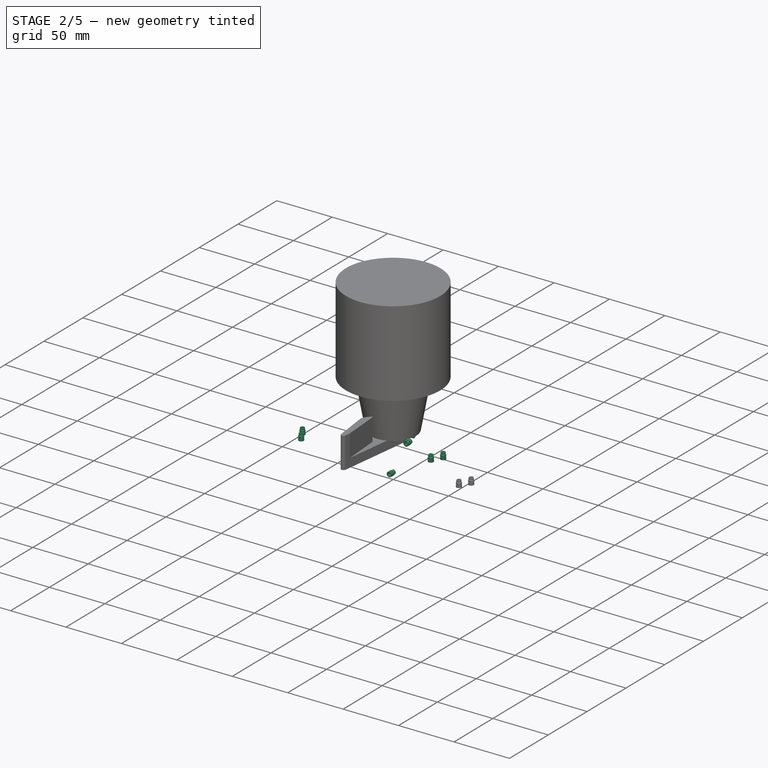
[diagram: stage 2 of 5 — iso view after this stage's code; geometry added in this stage tinted green]
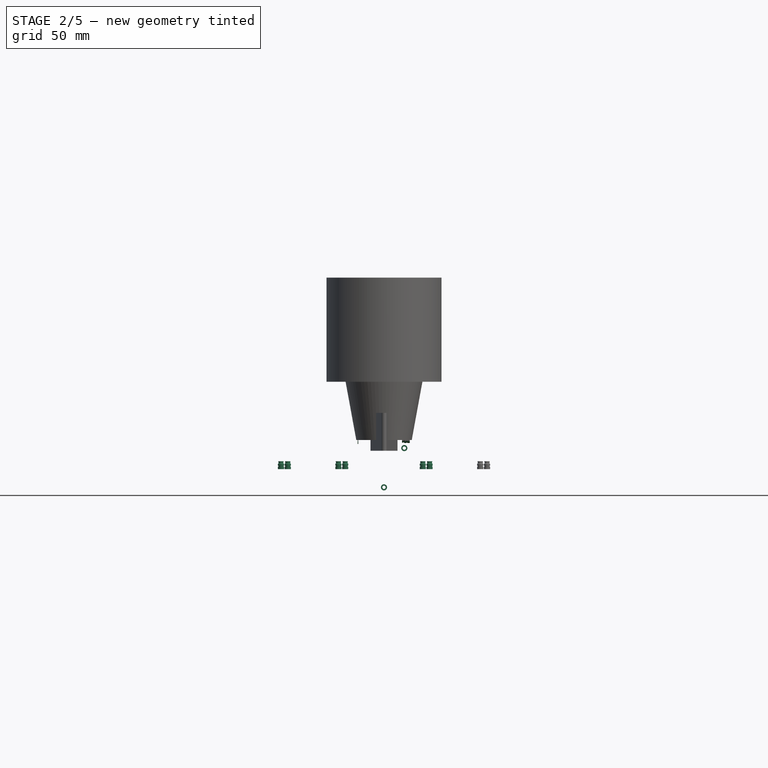
[diagram: stage 2 of 5 — front view after this stage's code; geometry added in this stage tinted green]
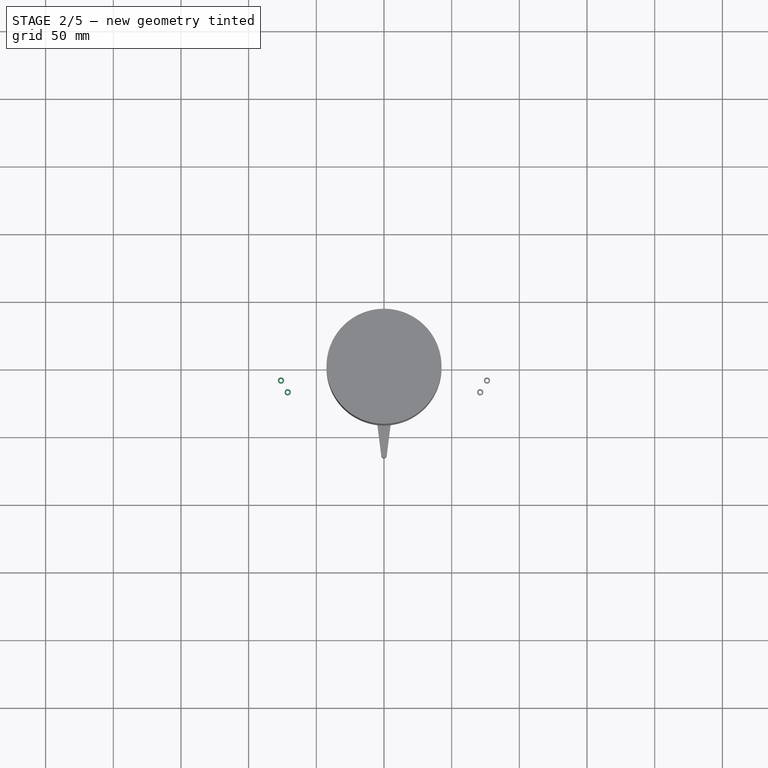
[diagram: stage 2 of 5 — top view after this stage's code; geometry added in this stage tinted green]
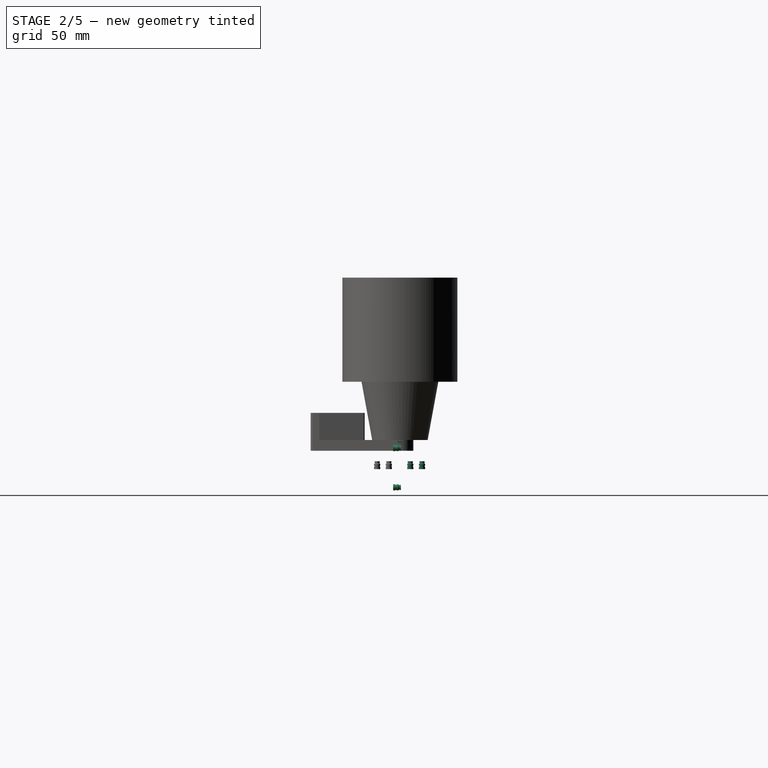
[diagram: stage 2 of 5 — right view after this stage's code; geometry added in this stage tinted green]
FEATURE [App::DocumentObjectGroup] Group002  label="VisserieBras"
  ClaimAllChildren = true
  ExportMode = 1
  Group = -> [Screw016,Screw017,Screw018,Screw019]
  TreeRank = 153
  _GroupVersion = 1
FEATURE [App::Link] Link002  label="Link002(MF83)"
  AutoLinkLabel = true
  AutoPlacement = true
  LinkPlacement = pos=(-6.00001,-5.28986e-07,-73) rot=(0,0,1;1.5708rad)
  LinkedObject = -> <external ../mechanical-parts/generic-hardware.FCStd>#Part034
  Placement = pos=(-6.00001,-5.28986e-07,-73) rot=(0,0,1;1.5708rad)
  SyncGroupVisibility = false
  TreeRank = 154
  _LinkVersion = 1
  expr: Placement.Base.z = -Sketch002.Constraints.LBras
FEATURE [Sketcher::SketchObject] Sketch013
  ArcFitTolerance = 1e-06
  AttachmentSupport = -> [YZ_Plane003]
  ExternalBSplineMaxDegree = 5
  ExternalBSplineTolerance = 0.0001
  FixShape = 1
  FullyConstrained = true
  InternalTolerance = 1e-06
  InvalidShape = false
  MakeInternals = false
  MapMode = 5
  Placement = pos=(0,0,0) rot=(0.57735,0.57735,0.57735;2.0944rad)
  Support = -> [YZ_Plane003]
  TreeRank = 165
  ValidateShape = false
  sketch-geometry (8):
    g0: LineSegment StartX=5 StartY=-48.5 StartZ=0 EndX=5 EndY=5 EndZ=0
    g1: LineSegment StartX=5 StartY=5 StartZ=0 EndX=-5 EndY=5 EndZ=0
    g2: LineSegment StartX=-5 StartY=5 StartZ=0 EndX=-5 EndY=-48.5 EndZ=0
    g3: LineSegment StartX=-5 StartY=-48.5 StartZ=0 EndX=5 EndY=-48.5 EndZ=0
    g4: GeomPoint [constr] X=0 Y=-21.75 Z=0
    g5: GeomPoint [constr] X=0 Y=-43.5 Z=0
    g6: Circle CenterX=0 CenterY=-43.5 CenterZ=0 NormalX=0 NormalY=0 NormalZ=1 AngleXU=0 Radius=1.75
    g7: Circle CenterX=0 CenterY=0 CenterZ=0 NormalX=0 NormalY=0 NormalZ=1 AngleXU=0 Radius=2.05
  constraints (19):
    c: Coincident(g0,g1)
    c: Coincident(g1,g2)
    c: Coincident(g2,g3)
    c: Coincident(g3,g0)
    c: Horizontal(g1)
    c: Horizontal(g3)
    c: Vertical(g0)
    c: Vertical(g2)
    c: Symmetric(g1,g0,g4)
    c: PointOnObject(g4,g-2)
    c: DistanceY(g-1,g0) = 5
    c: DistanceX(g1,g1) = 10
    c: PointOnObject(g5,g-2)
    c: DistanceY(g0,g5) = 5
    c: DistanceY(g5,g-1) = 43.5
    c: Coincident(g6,g5)
    c: Coincident(g7,g-1)
    c: Diameter(g6) = 3.5
    c: Diameter(g7) = 4.1
FEATURE [PartDesign::Pad] Pad009
  AddSubType = 0
  AlongSketchNormal = false
  AutoTaperInnerAngle = true
  CheckUpToFaceLimits = true
  ClaimChildren = false
  Direction = (1,-2e-16,3e-16)
  Fit = 0
  FitJoin = 0
  FixShape = 1
  InnerFit = 0
  InnerFitJoin = 0
  InvalidShape = false
  Length = 38
  Length2 = 10
  Linearize = true
  Midplane = true
  NewSolid = false
  Profile = -> Sketch013
  ReferenceAxis = -> Sketch013 [N_Axis]
  Refine = true
  Suppress = false
  TaperInnerAngle = 0
  TaperInnerAngleRev = 0
  TreeRank = 166
  Type = 0
  ValidateShape = false
  _ProfileBasedVersion = 1
FEATURE [Sketcher::SketchObject] Sketch014
  ArcFitTolerance = 1e-06
  AttachmentSupport = -> [XZ_Plane003]
  ExternalBSplineMaxDegree = 5
  ExternalBSplineTolerance = 0.0001
  ExternalGeometry = -> [Pad009]
  FixShape = 1
  FullyConstrained = true
  InternalTolerance = 1e-06
  InvalidShape = false
  MakeInternals = false
  MapMode = 5
  Placement = pos=(0,0,0) rot=(1,0,0;1.5708rad)
  Support = -> [XZ_Plane003]
  TreeRank = 167
  ValidateShape = false
  sketch-geometry (8):
    g0: LineSegment StartX=-19 StartY=-48.5 StartZ=0 EndX=-5 EndY=-48.5 EndZ=0
    g1: LineSegment StartX=-5 StartY=-48.5 StartZ=0 EndX=-5 EndY=-28.5 EndZ=0
    g2: LineSegment StartX=-5 StartY=-28.5 StartZ=0 EndX=-19 EndY=-28.5 EndZ=0
    g3: LineSegment StartX=-19 StartY=-28.5 StartZ=0 EndX=-19 EndY=-48.5 EndZ=0
    g4: LineSegment StartX=19 StartY=-48.5 StartZ=0 EndX=5 EndY=-48.5 EndZ=0
    g5: LineSegment StartX=5 StartY=-48.5 StartZ=0 EndX=5 EndY=-28.5 EndZ=0
    g6: LineSegment StartX=5 StartY=-28.5 StartZ=0 EndX=19 EndY=-28.5 EndZ=0
    g7: LineSegment StartX=19 StartY=-28.5 StartZ=0 EndX=19 EndY=-48.5 EndZ=0
  constraints (21):
    c: Coincident(g0,g1)
    c: Coincident(g1,g2)
    c: Coincident(g2,g3)
    c: Coincident(g3,g0)
    c: Horizontal(g0)
    c: Horizontal(g2)
    c: Vertical(g1)
    c: Vertical(g3)
    c: Coincident(g4,g5)
    c: Coincident(g5,g6)
    c: Coincident(g6,g7)
    c: Coincident(g7,g4)
    c: Horizontal(g4)
    c: Horizontal(g6)
    c: Vertical(g5)
    c: Vertical(g7)
    c: Coincident(g4,g-3)
    c: Coincident(g0,g-3)
    c: Symmetric(g5,g1,g-2)
    c: DistanceX(g1,g5) = 10
    c: DistanceY(g5,g5) = 20
FEATURE [PartDesign::Pocket] Pocket005
  AddSubType = 1
  AlongSketchNormal = false
  AutoTaperInnerAngle = true
  BaseFeature = -> Pad009
  CheckUpToFaceLimits = true
  ClaimChildren = false
  Direction = (0,1,2e-16)
  Fit = 0
  FitJoin = 0
  FixShape = 1
  InnerFit = 0
  InnerFitJoin = 0
  InvalidShape = false
  Length = 5
  Length2 = 10
  Linearize = true
  Midplane = true
  NewSolid = false
  Profile = -> Sketch014
  ReferenceAxis = -> Sketch014 [N_Axis]
  Refine = true
  Suppress = false
  TaperInnerAngle = 0
  TaperInnerAngleRev = 0
  TreeRank = 168
  Type = 1
  ValidateShape = false
  _ProfileBasedVersion = 1
  _Version = 1
FEATURE [Sketcher::SketchObject] Sketch015
  ArcFitTolerance = 1e-06
  AttachmentSupport = -> [YZ_Plane003]
  ExternalBSplineMaxDegree = 5
  ExternalBSplineTolerance = 0.0001
  ExternalGeometry = -> [Pocket005]
  FixShape = 1
  FullyConstrained = true
  InternalTolerance = 1e-06
  InvalidShape = false
  MakeInternals = false
  MapMode = 5
  Placement = pos=(0,0,0) rot=(0.57735,0.57735,0.57735;2.0944rad)
  Support = -> [YZ_Plane003]
  TreeRank = 169
  ValidateShape = false
  sketch-geometry (1):
    g0: Circle CenterX=0 CenterY=-43.5 CenterZ=0 NormalX=0 NormalY=0 NormalZ=1 AngleXU=0 Radius=4
  constraints (2):
    c: Coincident(g0,g-3)
    c: Diameter(g0) = 8
FEATURE [PartDesign::Pad] Pad010
  AddSubType = 0
  AlongSketchNormal = false
  AutoTaperInnerAngle = true
  BaseFeature = -> Pocket005
  CheckUpToFaceLimits = true
  ClaimChildren = false
  Direction = (1,-2e-16,3e-16)
  Fit = 0
  FitJoin = 0
  FixShape = 1
  InnerFit = 0
  InnerFitJoin = 0
  InvalidShape = false
  Length = 18
  Length2 = 10
  Linearize = true
  Midplane = true
  NewSolid = false
  Profile = -> Sketch015
  ReferenceAxis = -> Sketch015 [N_Axis]
  Refine = true
  Suppress = false
  TaperAngle = -4
  TaperInnerAngle = 0
  TaperInnerAngleRev = 0
  TreeRank = 170
  Type = 0
  ValidateShape = false
  _ProfileBasedVersion = 1
FEATURE [PartDesign::Chamfer] Chamfer006
  AddSubType = 0
  Angle = 45
  Base = -> Pad010 [Edge12,Edge27]
  BaseFeature = -> Pad010
  ChamferType = 0
  FixShape = 1
  FlipDirection = false
  InvalidShape = false
  NewSolid = false
  Refine = true
  Size = 1
  Size2 = 1
  SupportTransform = false
  Suppress = false
  TreeRank = 171
  UseAllEdges = false
  ValidateShape = false
FEATURE [PartDesign::Chamfer] Chamfer007
  AddSubType = 0
  Angle = 45
  Base = -> Chamfer006 [Edge33,Edge37,Edge40,Edge25]
  BaseFeature = -> Chamfer006
  ChamferType = 0
  FixShape = 1
  FlipDirection = false
  InvalidShape = false
  NewSolid = false
  Refine = true
  Size = 0.2
  Size2 = 1
  SupportTransform = false
  Suppress = false
  TreeRank = 172
  UseAllEdges = false
  ValidateShape = false
FEATURE [PartDesign::Fillet] Fillet004
  AddSubType = 0
  Base = -> Chamfer007 [Edge24,Edge27]
  BaseFeature = -> Chamfer007
  FixShape = 1
  InvalidShape = false
  NewSolid = false
  Radius = 5
  Refine = true
  SupportTransform = false
  Suppress = false
  TreeRank = 173
  UseAllEdges = false
  ValidateShape = false
FEATURE [PartDesign::Chamfer] Chamfer008
  AddSubType = 0
  Angle = 45
  Base = -> Fillet004 [Edge18,Edge21]
  BaseFeature = -> Fillet004
  ChamferType = 1
  FixShape = 1
  FlipDirection = false
  InvalidShape = false
  NewSolid = false
  Refine = true
  Size = 20
  Size2 = 5
  SupportTransform = false
  Suppress = false
  TreeRank = 174
  UseAllEdges = false
  ValidateShape = false
FEATURE [PartDesign::Fillet] Fillet005
  AddSubType = 0
  Base = -> Chamfer008 [Edge10,Edge39]
  BaseFeature = -> Chamfer008
  FixShape = 1
  InvalidShape = false
  NewSolid = false
  Radius = 4
  Refine = true
  SupportTransform = false
  Suppress = false
  TreeRank = 175
  UseAllEdges = false
  ValidateShape = false
FEATURE [PartDesign::Chamfer] Chamfer009
  AddSubType = 0
  Angle = 45
  Base = -> Fillet005 [Edge20,Edge16,Edge12,Edge18,Edge15,Edge19]
  BaseFeature = -> Fillet005
  ChamferType = 0
  FixShape = 1
  FlipDirection = false
  InvalidShape = false
  NewSolid = false
  Refine = true
  Size = 1
  Size2 = 1
  SupportTransform = false
  Suppress = false
  TreeRank = 176
  UseAllEdges = false
  ValidateShape = false
FEATURE [Sketcher::SketchObject] Sketch016
  ArcFitTolerance = 1e-06
  AttachmentSupport = -> [XZ_Plane003]
  ExternalBSplineMaxDegree = 5
  ExternalBSplineTolerance = 0.0001
  ExternalGeometry = -> [Chamfer009]
  FixShape = 1
  FullyConstrained = true
  InternalTolerance = 1e-06
  InvalidShape = false
  MakeInternals = false
  MapMode = 5
  Placement = pos=(0,0,0) rot=(1,0,0;1.5708rad)
  Support = -> [XZ_Plane003]
  TreeRank = 177
  ValidateShape = false
  sketch-geometry (3):
    g0: Circle CenterX=0 CenterY=-35 CenterZ=0 NormalX=0 NormalY=0 NormalZ=1 AngleXU=0 Radius=2.05
    g1: Circle CenterX=15 CenterY=-6 CenterZ=0 NormalX=0 NormalY=0 NormalZ=1 AngleXU=0 Radius=2.05
    g2: Circle CenterX=-15 CenterY=-6 CenterZ=0 NormalX=0 NormalY=0 NormalZ=1 AngleXU=0 Radius=2.05
  constraints (15):
    c: PointOnObject(g0,g-2)
    c: Symmetric(g2,g1,g-2)
    c: Equal(g2,g1)
    c: Equal(g2,g0)
    c: Diameter(g2) = 4.1
    c: DistanceY(g0,g-1) = 35
    c: DistanceX(g2,g1) = 30
    c: DistanceY(g2,g-1) = 6
    c: DistanceY(g-4,g-3) = 53.5
    c: DistanceX(g-3,g-3) = 38
    c: DistanceY(g1,g-3) = 11
    c: DistanceX(g1,g-3) = 4
    c: DistanceY(g0,g-3) = 40
    c: DistanceX(g2,g1) = 30
    c: DistanceY(g0,g1) = 29
FEATURE [PartDesign::Pocket] Pocket006
  AddSubType = 1
  AlongSketchNormal = false
  AutoTaperInnerAngle = true
  BaseFeature = -> Chamfer009
  CheckUpToFaceLimits = true
  ClaimChildren = false
  Direction = (0,1,2e-16)
  Fit = 0
  FitJoin = 0
  FixShape = 1
  InnerFit = 0
  InnerFitJoin = 0
  InvalidShape = false
  Length = 5
  Length2 = 10
  Linearize = true
  Midplane = true
  NewSolid = false
  Profile = -> Sketch016
  ReferenceAxis = -> Sketch016 [N_Axis]
  Refine = true
  Suppress = false
  TaperInnerAngle = 0
  TaperInnerAngleRev = 0
  TreeRank = 178
  Type = 1
  ValidateShape = false
  _ProfileBasedVersion = 1
  _Version = 1
FEATURE [PartDesign::Chamfer] Chamfer010
  AddSubType = 0
  Angle = 45
  Base = -> Pocket006 [Edge29,Edge27,Edge28]
  BaseFeature = -> Pocket006
  ChamferType = 0
  FixShape = 1
  FlipDirection = false
  InvalidShape = false
  NewSolid = false
  Refine = true
  Size = 0.6
  Size2 = 1
  SupportTransform = false
  Suppress = false
  TreeRank = 179
  UseAllEdges = false
  ValidateShape = false
FEATURE [PartDesign::Chamfer] Chamfer011
  AddSubType = 0
  Angle = 45
  Base = -> Chamfer010 [Edge51,Edge64,Edge63]
  BaseFeature = -> Chamfer010
  ChamferType = 0
  FixShape = 1
  FlipDirection = false
  InvalidShape = false
  NewSolid = false
  Refine = true
  Size = 0.2
  Size2 = 1
  SupportTransform = false
  Suppress = false
  TreeRank = 180
  UseAllEdges = false
  ValidateShape = false
FEATURE [Part::FeaturePython] Insert009  label="M3x5.74-Insert009"  # Fasteners workbench fastener (typed FeaturePython)
  FixShape = 1
  InvalidShape = false
  Placement = pos=(15,-5,-6) rot=(1,0,0;1.5708rad)
  TreeRank = 188
  ValidateShape = false
  baseObject = -> Body003 [Edge54]
  diameter = 3
  externalDiam = 4.55
  invert = false
  leftHanded = false
  length = 5.74
  matchOuter = false
  offset = 0
  thread = false
  type = 30
FEATURE [Part::FeaturePython] Insert010  label="M3x5.74-Insert010"  # Fasteners workbench fastener (typed FeaturePython)
  FixShape = 1
  InvalidShape = false
  Placement = pos=(1.42e-14,-5,-35) rot=(1,0,0;1.5708rad)
  TreeRank = 189
  ValidateShape = false
  baseObject = -> Body003 [Edge48]
  diameter = 3
  externalDiam = 4.55
  invert = false
  leftHanded = false
  length = 5.74
  matchOuter = false
  offset = 0
  thread = false
  type = 30
FEATURE [PartDesign::Body] Body002  label="BrasServo"
  AutoGroupSolids = false
  ClaimAllChildren = false
  ExportMode = 0
  FixShape = 1
  Group = -> [Sketch012,Pad008,Fillet007]
  InvalidShape = false
  Origin = -> Origin004
  SingleSolid = true
  Tip = -> Fillet007
  TreeRank = 138
  ValidateShape = false
  _ExportChildren = -> [Pad008,Fillet007]
  _GroupVersion = 1
FEATURE [App::Link] Link008  label="Link008(BrasServo)"
  AutoLinkLabel = true
  AutoPlacement = true
  LinkPlacement = pos=(-3,-3.8147e-06,-7.62939e-06) rot=(0,0,1;0rad)
  LinkedObject = -> Body002
  Placement = pos=(-3,-3.8147e-06,-7.62939e-06) rot=(0,0,1;0rad)
  SyncGroupVisibility = false
  TreeRank = 221
  _LinkVersion = 1
FEATURE [App::Link] Link009  label="Link009(*MF83)"
  AutoLinkLabel = true
  AutoPlacement = true
  LinkPlacement = pos=(-1.38283e-05,8.38859e-06,-73) rot=(0,0,-1;1.5708rad)
  LinkedObject = -> Link002
  Placement = pos=(-1.38283e-05,8.38859e-06,-73) rot=(0,0,-1;1.5708rad)
  SyncGroupVisibility = false
  TreeRank = 222
  _LinkVersion = 1
  expr: Placement.Base.z = -Sketch002.Constraints.LBras
FEATURE [App::Part] Part002  label="EnsembleBrasServo"
  ClaimAllChildren = false
  ExportMode = 1
  Group = -> [Group002,Body002,Screw016,Screw017,Screw018,Screw019,Link002,Link008,Link009]
  Origin = -> Origin005
  Placement = pos=(-20,-16,115) rot=(1,0,0;-0.211497rad)
  TreeRank = 144
  _ExportChildren = -> [Group002,Body002,Link002,Link008,Link009]
  _GroupVersion = 1
  expr: Placement.Rotation.Angle = -Spreadsheet.AngleBras
FEATURE [PartDesign::Chamfer] Chamfer012
  AddSubType = 0
  Angle = 45
  Base = -> Chamfer011 [Edge38,Edge55]
  BaseFeature = -> Chamfer011
  ChamferType = 0
  FixShape = 1
  FlipDirection = false
  InvalidShape = false
  NewSolid = false
  Refine = true
  Size = 0.5
  Size2 = 1
  SupportTransform = false
  Suppress = false
  TreeRank = 223
  UseAllEdges = false
  ValidateShape = false
FEATURE [PartDesign::Body] Body003  label="SupportPince"
  AutoGroupSolids = false
  ClaimAllChildren = false
  ExportMode = 0
  FixShape = 1
  Group = -> [Sketch013,Pad009,Sketch014,Pocket005,Sketch015,Pad010,Chamfer006,Chamfer007,Fillet004,Chamfer008,Fillet005,Chamfer009,Sketch016,Pocket006,Chamfer010,Chamfer011,Chamfer012]
  InvalidShape = false
  Origin = -> Origin006
  SingleSolid = true
  Tip = -> Chamfer012
  TreeRank = 164
  ValidateShape = false
  _ExportChildren = -> [Pad009,Pocket005,Pad010,Chamfer006,Chamfer007,Fillet004,Chamfer008,Fillet005,Chamfer009,Pocket006,Chamfer010,Chamfer011,Chamfer012]
  _GroupVersion = 1
  expr: Placement.Base.z = 0
FEATURE [Part::FeaturePython] Insert011  label="M3x5.74-Insert011"  # Fasteners workbench fastener (typed FeaturePython)
  FixShape = 1
  InvalidShape = false
  Placement = pos=(-19,4.2e-15,-3.6e-15) rot=(0,-1,0;1.5708rad)
  TreeRank = 224
  ValidateShape = false
  baseObject = -> Body003 [Edge1]
  diameter = 3
  externalDiam = 4.55
  invert = true
  leftHanded = false
  length = 5.74
  matchOuter = false
  offset = 0
  thread = false
  type = 30
FEATURE [Part::FeaturePython] Insert012  label="M3x5.74-Insert012"  # Fasteners workbench fastener (typed FeaturePython)
  FixShape = 1
  InvalidShape = false
  Placement = pos=(19,4.2e-15,3.6e-15) rot=(0,1,0;1.5708rad)
  TreeRank = 225
  ValidateShape = false
  baseObject = -> Body003 [Edge56]
  diameter = 3
  externalDiam = 4.55
  invert = false
  leftHanded = false
  length = 5.74
  matchOuter = false
  offset = 0
  thread = false
  type = 30
FEATURE [Part::FeaturePython] Washer  label="M3-Rondelle"  # Fasteners workbench fastener (typed FeaturePython)
  FixShape = 1
  InvalidShape = false
  Placement = pos=(-19,4.2e-15,-3.6e-15) rot=(0,-1,0;1.5708rad)
  TreeRank = 226
  ValidateShape = false
  baseObject = -> Insert011 [Edge1]
  diameter = 4
  invert = false
  matchOuter = false
  offset = 0
  type = 7
FEATURE [Part::FeaturePython] Insert017  label="M3x5.74-Insert028"  # Fasteners workbench fastener (typed FeaturePython)
  FixShape = 1
  InvalidShape = false
  Placement = pos=(-76.117,-8.16151,-21.5) rot=(-1,0,0;3.14159rad)
  TreeRank = 333
  ValidateShape = false
  baseObject = -> Body006 [?Edge99]
  diameter = 3
  externalDiam = 4.55
  invert = false
  leftHanded = false
  length = 5.74
  matchOuter = false
  offset = 0
  thread = false
  type = 30
FEATURE [Part::FeaturePython] Insert018  label="M3x5.74-Insert029"  # Fasteners workbench fastener (typed FeaturePython)
  FixShape = 1
  InvalidShape = false
  Placement = pos=(-71.117,-16.8218,-21.5) rot=(-1,0,0;3.14159rad)
  TreeRank = 334
  ValidateShape = false
  baseObject = -> Body006 [?Edge104]
  diameter = 3
  externalDiam = 4.55
  invert = false
  leftHanded = false
  length = 5.74
  matchOuter = false
  offset = 0
  thread = false
  type = 30
FEATURE [Part::FeaturePython] Insert019  label="M3x5.74-Insert030"  # Fasteners workbench fastener (typed FeaturePython)
  FixShape = 1
  InvalidShape = false
  Placement = pos=(-28.6817,7.67823,-21.5) rot=(-1,0,0;3.14159rad)
  TreeRank = 335
  ValidateShape = false
  baseObject = -> Body006 [?Edge1]
  diameter = 3
  externalDiam = 4.55
  invert = false
  leftHanded = false
  length = 5.74
  matchOuter = false
  offset = 0
  thread = false
  type = 30
FEATURE [Part::FeaturePython] Insert020  label="M3x5.74-Insert031"  # Fasteners workbench fastener (typed FeaturePython)
  FixShape = 1
  InvalidShape = false
  Placement = pos=(-33.6817,16.3385,-21.5) rot=(-1,0,0;3.14159rad)
  TreeRank = 336
  ValidateShape = false
  baseObject = -> Body006 [?Edge8]
  diameter = 3
  externalDiam = 4.55
  invert = false
  leftHanded = false
  length = 5.74
  matchOuter = false
  offset = 0
  thread = false
  type = 30
FEATURE [Part::FeaturePython] Insert021  label="M3x5.74-Insert032"  # Fasteners workbench fastener (typed FeaturePython)
  FixShape = 1
  InvalidShape = false
  Placement = pos=(33.6817,16.3385,-21.5) rot=(-1,0,0;3.14159rad)
  TreeRank = 337
  ValidateShape = false
  baseObject = -> Body006 [?Edge243]
  diameter = 3
  externalDiam = 4.55
  invert = true
  leftHanded = false
  length = 5.74
  matchOuter = false
  offset = 0
  thread = false
  type = 30
FEATURE [Part::FeaturePython] Insert022  label="M3x5.74-Insert033"  # Fasteners workbench fastener (typed FeaturePython)
  FixShape = 1
  InvalidShape = false
  Placement = pos=(28.6817,7.67823,-21.5) rot=(-1,0,0;3.14159rad)
  TreeRank = 338
  ValidateShape = false
  baseObject = -> Body006 [?Edge237]
  diameter = 3
  externalDiam = 4.55
  invert = true
  leftHanded = false
  length = 5.74
  matchOuter = false
  offset = 0
  thread = false
  type = 30
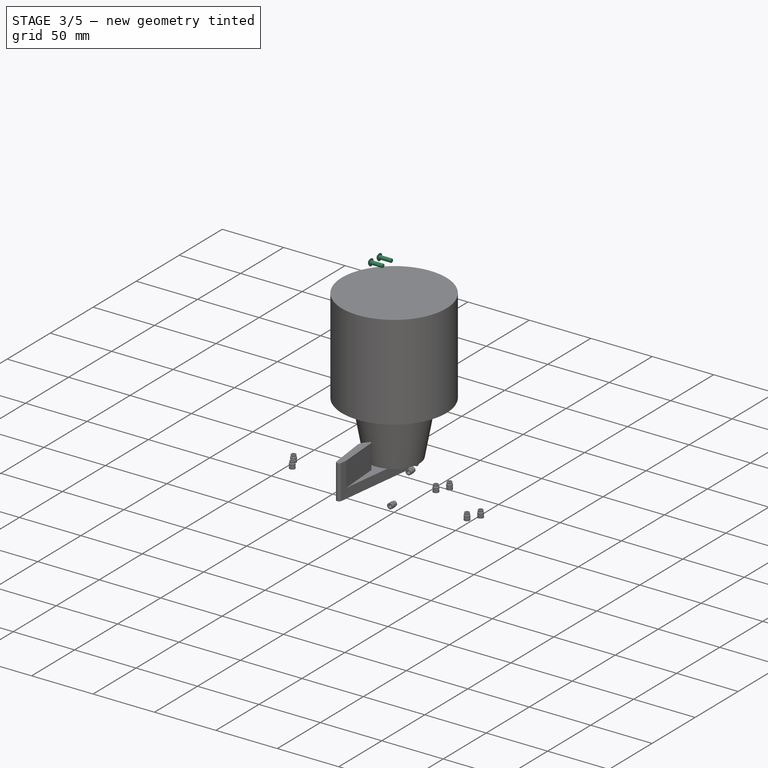
[diagram: stage 3 of 5 — iso view after this stage's code; geometry added in this stage tinted green]
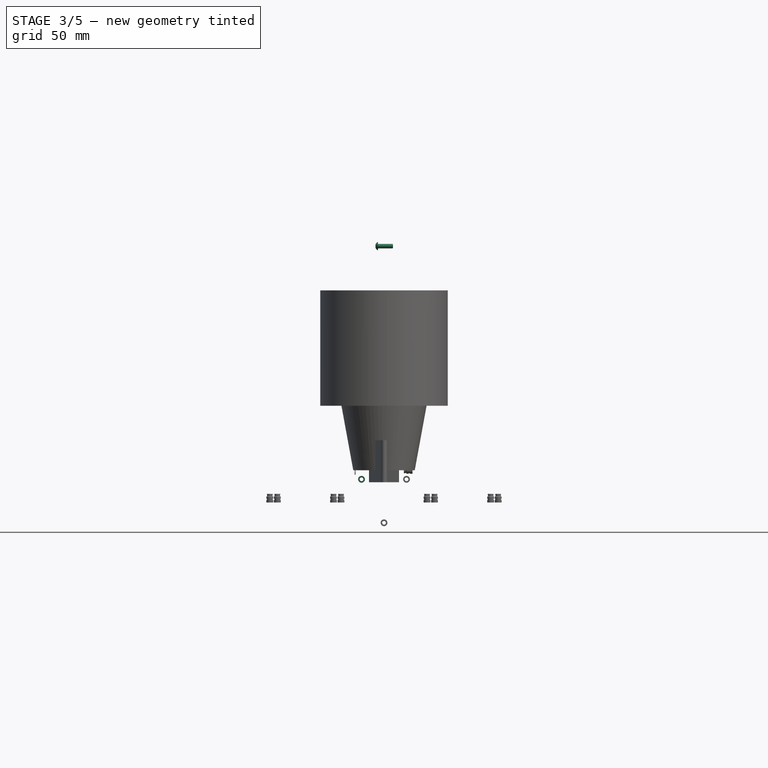
[diagram: stage 3 of 5 — front view after this stage's code; geometry added in this stage tinted green]
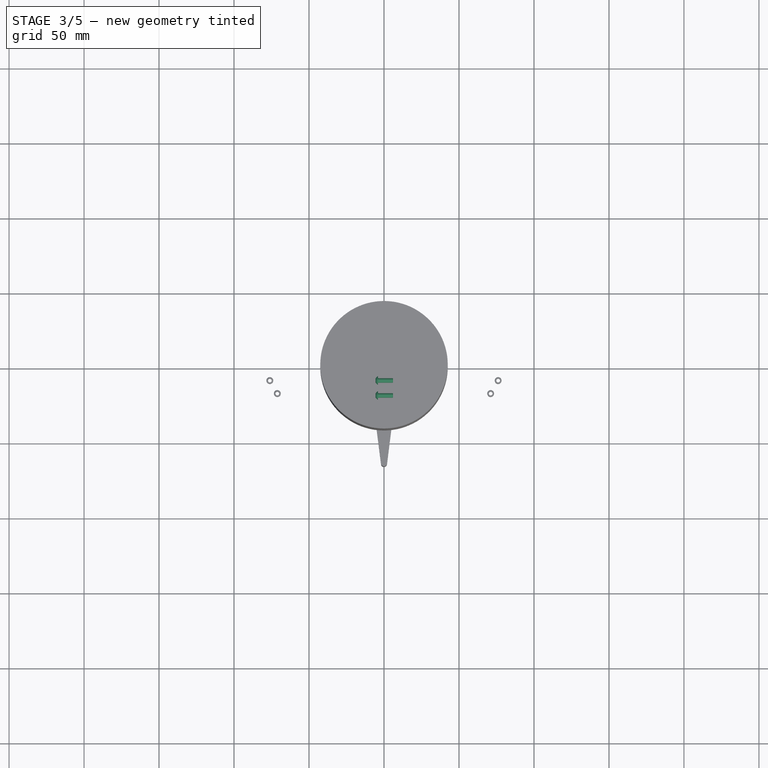
[diagram: stage 3 of 5 — top view after this stage's code; geometry added in this stage tinted green]
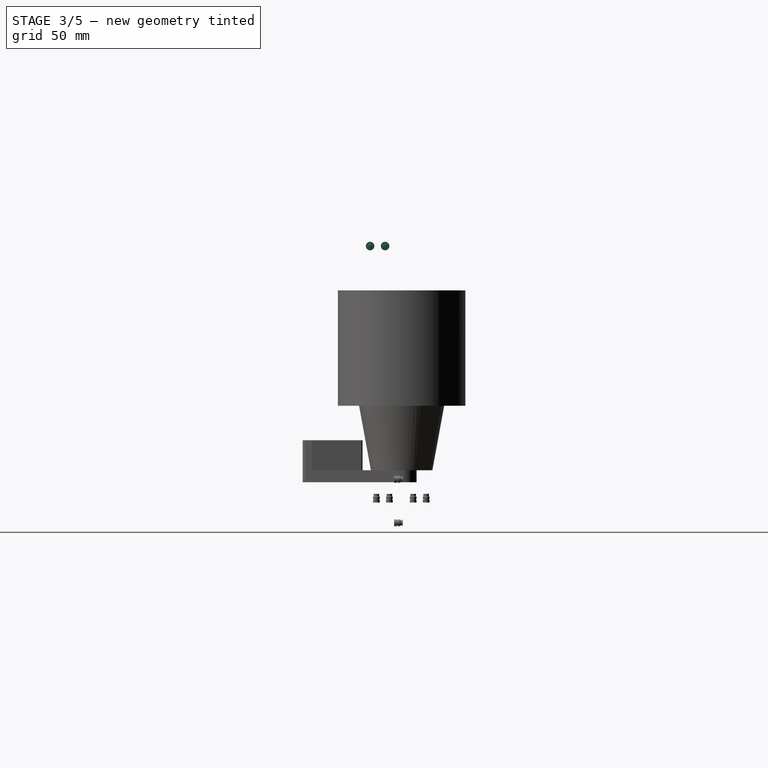
[diagram: stage 3 of 5 — right view after this stage's code; geometry added in this stage tinted green]
FEATURE [App::Link] Link  label="Link(ServoMG996R001)"
  AutoLinkLabel = true
  AutoPlacement = true
  LinkPlacement = pos=(0,0,0) rot=(1,0,0;1.5708rad)
  LinkedObject = -> <external ../mechanical-parts/generic-hardware.FCStd>#Part015
  Placement = pos=(0,0,0) rot=(1,0,0;1.5708rad)
  SyncGroupVisibility = false
  TreeRank = 48
  _LinkVersion = 1
FEATURE [App::Link] Link001  label="Link001(ServoPalonnier)"
  AutoLinkLabel = true
  AutoPlacement = true
  LinkPlacement = pos=(0,0,0) rot=(0.577,-0.577,0.577;2.0944rad)
  LinkedObject = -> <external ../mechanical-parts/generic-hardware.FCStd>#Body042
  Placement = pos=(0,0,0) rot=(0.577,-0.577,0.577;2.0944rad)
  SyncGroupVisibility = false
  TreeRank = 49
  _LinkVersion = 1
FEATURE [App::Part] Part001  label="EnsembleServo"
  ClaimAllChildren = false
  ExportMode = 1
  Group = -> [Link001,Link]
  Origin = -> Origin002
  Placement = pos=(-20,-16,115) rot=(0.57735,0.57735,-0.57735;2.0944rad)
  TreeRank = 52
  _ExportChildren = -> [Link001,Link]
  _GroupVersion = 1
FEATURE [Sketcher::SketchObject] Sketch002
  ArcFitTolerance = 1e-06
  ExternalBSplineMaxDegree = 5
  ExternalBSplineTolerance = 0.0001
  FixShape = 1
  FullyConstrained = false
  InternalTolerance = 1e-06
  InvalidShape = false
  MakeInternals = false
  Placement = pos=(0,0,0) rot=(0.57735,0.57735,0.57735;2.0944rad)
  TreeRank = 53
  ValidateShape = false
  sketch-geometry (12):
    g0: LineSegment StartX=-16 StartY=115 StartZ=0 EndX=-31.3245 EndY=43.6266 EndZ=0
    g1: LineSegment StartX=-16 StartY=71.5 StartZ=0 EndX=-31.3245 EndY=0.126607 EndZ=0
    g2: LineSegment [constr] StartX=-23.3329 StartY=73.0744 StartZ=0 EndX=-38.6573 EndY=1.70104 EndZ=0
    g3: LineSegment [constr] StartX=-8.66712 StartY=69.9256 StartZ=0 EndX=-23.9916 EndY=-1.44782 EndZ=0
    g4: LineSegment [constr] StartX=-8.66712 StartY=69.9256 StartZ=0 EndX=-23.3329 EndY=73.0744 EndZ=0
    g5: LineSegment StartX=0 StartY=-13.5 StartZ=0 EndX=-129.707 EndY=-13.5 EndZ=0
    g6: LineSegment StartX=-129.707 StartY=-13.5 StartZ=0 EndX=-107.707 EndY=-13.5 EndZ=0
    g7: LineSegment StartX=-107.707 StartY=-13.5 StartZ=0 EndX=-107.707 EndY=56.5 EndZ=0
    g8: LineSegment StartX=-107.707 StartY=56.5 StartZ=0 EndX=-129.707 EndY=56.5 EndZ=0
    g9: LineSegment StartX=-129.707 StartY=56.5 StartZ=0 EndX=-129.707 EndY=-13.5 EndZ=0
    g10: LineSegment StartX=-31.3245 StartY=43.6266 StartZ=0 EndX=-31.3245 EndY=0.126607 EndZ=0
    g11: GeomPoint [constr] X=-43 Y=0 Z=0
  constraints (39):
    c: Equal(g0,g1)
    c: Parallel(g0,g1)
    c: Distance(g0) = 73  'LBras'
    c: Vertical(g0,g1)
    c: DistanceX(g0,g-1) = 16
    c: Equal(g3,g2)
    c: Equal(g2,g1)
    c: Parallel(g3,g1)
    c: Parallel(g1,g2)
    c: Coincident(g4,g3)
    c: Coincident(g4,g2)
    c: Perpendicular(g3,g4)
    c: Symmetric(g3,g2,g1)
    c: Distance(g4) = 15
    c: PointOnObject(g5,g-2)
    c: Horizontal(g5)
    c: DistanceY(g5,g-1) = 13.5
    c: Coincident(g6,g7)
    c: Coincident(g7,g8)
    c: Coincident(g8,g9)
    c: Coincident(g9,g6)
    c: Horizontal(g6)
    c: Horizontal(g8)
    c: Vertical(g7)
    c: Vertical(g9)
    c: Coincident(g6,g5)
    c: DistanceX(g8,g8) = 22
    c: DistanceY(g9,g9) = 70
    c: Coincident(g10,g0)
    c: Coincident(g10,g1)
    c: DistanceY(g-1,g0) = 115
    c: DistanceY(g5,g1) = 85
    c: PointOnObject(g11,g-1)
    c: DistanceX(g11,g-1) = 43
    c: DistanceY(g1,g0) = 43.5
    c: Angle(g0,g-2) = 0.211497  'AngleBras'
    c: DistanceY(g0) = 43.6266  'ZSupport'
    c: DistanceX(g0,g-1) = 31.3245  'YSupport'
    c: DistanceX(g11,g1) = 11.6755
FEATURE [Part::SubShapeBinder] Import  label="Import(Sketch002)"
  BindCopyOnChange = 0
  BindMode = 0
  ClaimChildren = false
  Context = -> Part [Part013.Body.Import.]
  EdgeTolerance = 1e-06
  FillStyle = 0
  FixShape = 1
  Fuse = false
  InvalidShape = false
  MakeFace = false
  MergeEdges = true
  OffsetFill = false
  OffsetIntersection = false
  OffsetJoinType = 0
  OffsetOpenResult = false
  Outline = false
  PartialLoad = false
  Relative = true
  SplitEdges = false
  Support = -> [Sketch002]
  TightBound = false
  TreeRank = 66
  ValidateShape = false
  _Version = 8
FEATURE [Sketcher::SketchObject] Sketch003
  ArcFitTolerance = 1e-06
  AttachmentSupport = -> [XZ_Plane]
  ExternalBSplineMaxDegree = 5
  ExternalBSplineTolerance = 0.0001
  ExternalGeometry = -> [Import]
  FixShape = 1
  FullyConstrained = true
  InternalTolerance = 1e-06
  InvalidShape = false
  MakeInternals = false
  MapMode = 5
  Placement = pos=(0,0,0) rot=(1,0,0;1.5708rad)
  Support = -> [XZ_Plane]
  TreeRank = 65
  ValidateShape = false
  sketch-geometry (8):
    g0: LineSegment StartX=-15 StartY=37 StartZ=0 EndX=15 EndY=37 EndZ=0
    g1: LineSegment StartX=15 StartY=37 StartZ=0 EndX=15 EndY=-17 EndZ=0
    g2: LineSegment [constr] StartX=15 StartY=-17 StartZ=0 EndX=-15 EndY=-17 EndZ=0
    g3: LineSegment StartX=-15 StartY=-17 StartZ=0 EndX=-15 EndY=37 EndZ=0
    g4: LineSegment [constr] StartX=-15 StartY=-17 StartZ=0 EndX=15 EndY=-17 EndZ=0
    g5: LineSegment StartX=15 StartY=-17 StartZ=0 EndX=15 EndY=-98.5 EndZ=0
    g6: LineSegment StartX=15 StartY=-98.5 StartZ=0 EndX=-15 EndY=-98.5 EndZ=0
    g7: LineSegment StartX=-15 StartY=-98.5 StartZ=0 EndX=-15 EndY=-17 EndZ=0
  constraints (22):
    c: Coincident(g0,g1)
    c: Coincident(g1,g2)
    c: Coincident(g2,g3)
    c: Coincident(g3,g0)
    c: Horizontal(g2)
    c: Vertical(g1)
    c: Vertical(g3)
    c: Symmetric(g0,g0,g-2)
    c: DistanceX(g2,g2) = 30
    c: DistanceY(g1,g-1) = 17
    c: DistanceY(g-1,g0) = 37
    c: Coincident(g4,g5)
    c: Coincident(g5,g6)
    c: Coincident(g6,g7)
    c: Coincident(g7,g4)
    c: Horizontal(g6)
    c: Vertical(g5)
    c: Vertical(g7)
    c: PointOnObject(g4,g2)
    c: Symmetric(g4,g4,g-2)
    c: DistanceX(g6,g6) = 30
    c: DistanceY(g5,g-3) = 10
FEATURE [PartDesign::Pad] Pad001
  AddSubType = 0
  AlongSketchNormal = false
  AutoTaperInnerAngle = true
  CheckUpToFaceLimits = true
  ClaimChildren = false
  Direction = (0,-1,-2e-16)
  Fit = 0
  FitJoin = 0
  FixShape = 1
  InnerFit = 0
  InnerFitJoin = 0
  InvalidShape = false
  Length = 3
  Length2 = 10
  Linearize = true
  NewSolid = false
  Profile = -> Sketch003
  ReferenceAxis = -> Sketch003 [N_Axis]
  Refine = true
  Suppress = false
  TaperInnerAngle = 0
  TaperInnerAngleRev = 0
  TreeRank = 67
  Type = 0
  ValidateShape = false
  _ProfileBasedVersion = 1
FEATURE [Sketcher::SketchObject] Sketch004
  ArcFitTolerance = 1e-06
  AttachmentSupport = -> [Pad001]
  ExternalBSplineMaxDegree = 5
  ExternalBSplineTolerance = 0.0001
  ExternalGeometry = -> [Pad001]
  FixShape = 1
  FullyConstrained = true
  InternalTolerance = 1e-06
  InvalidShape = false
  MakeInternals = false
  MapMode = 5
  Placement = pos=(0,-3,0) rot=(1,0,0;1.5708rad)
  Support = -> [Pad001]
  TreeRank = 68
  ValidateShape = false
  sketch-geometry (8):
    g0: LineSegment StartX=15 StartY=37 StartZ=0 EndX=-1.5 EndY=37 EndZ=0
    g1: LineSegment StartX=-1.5 StartY=37 StartZ=0 EndX=-1.5 EndY=30.5 EndZ=0
    g2: LineSegment StartX=-1.5 StartY=30.5 StartZ=0 EndX=15 EndY=30.5 EndZ=0
    g3: LineSegment StartX=15 StartY=30.5 StartZ=0 EndX=15 EndY=37 EndZ=0
    g4: LineSegment StartX=15 StartY=-17 StartZ=0 EndX=-1.5 EndY=-17 EndZ=0
    g5: LineSegment StartX=-1.5 StartY=-17 StartZ=0 EndX=-1.5 EndY=-10.5 EndZ=0
    g6: LineSegment StartX=-1.5 StartY=-10.5 StartZ=0 EndX=15 EndY=-10.5 EndZ=0
    g7: LineSegment StartX=15 StartY=-10.5 StartZ=0 EndX=15 EndY=-17 EndZ=0
  constraints (23):
    c: Coincident(g0,g1)
    c: Coincident(g1,g2)
    c: Coincident(g2,g3)
    c: Coincident(g3,g0)
    c: Horizontal(g0)
    c: Horizontal(g2)
    c: Vertical(g1)
    c: Vertical(g3)
    c: Coincident(g0,g-4)
    c: Coincident(g4,g5)
    c: Coincident(g5,g6)
    c: Coincident(g6,g7)
    c: Coincident(g7,g4)
    c: Horizontal(g4)
    c: Horizontal(g6)
    c: Vertical(g5)
    c: Vertical(g7)
    c: PointOnObject(g4,g-4)
    c: DistanceY(g3,g3) = 6.5
    c: DistanceY(g4,g0) = 54
    c: DistanceY(g7,g7) = 6.5
    c: Vertical(g1,g5)
    c: DistanceX(g0,g0) = 16.5
FEATURE [PartDesign::Pad] Pad002
  AddSubType = 0
  AlongSketchNormal = false
  AutoTaperInnerAngle = true
  BaseFeature = -> Pad001
  CheckUpToFaceLimits = true
  ClaimChildren = false
  Direction = (0,-1,2e-16)
  Fit = 0
  FitJoin = 0
  FixShape = 1
  InnerFit = 0
  InnerFitJoin = 0
  InvalidShape = false
  Length = 20
  Length2 = 10
  Linearize = true
  NewSolid = false
  Profile = -> Sketch004
  ReferenceAxis = -> Sketch004 [N_Axis]
  Refine = true
  Suppress = false
  TaperInnerAngle = 0
  TaperInnerAngleRev = 0
  TreeRank = 69
  Type = 0
  ValidateShape = false
  _ProfileBasedVersion = 1
FEATURE [Sketcher::SketchObject] Sketch005
  ArcFitTolerance = 1e-06
  AttachmentSupport = -> [Pad002]
  ExternalBSplineMaxDegree = 5
  ExternalBSplineTolerance = 0.0001
  ExternalGeometry = -> [Pad002]
  FixShape = 1
  FullyConstrained = true
  InternalTolerance = 1e-06
  InvalidShape = false
  MakeInternals = false
  MapMode = 5
  Placement = pos=(0,-3,0) rot=(1,0,0;1.5708rad)
  Support = -> [Pad002]
  TreeRank = 70
  ValidateShape = false
  sketch-geometry (4):
    g0: LineSegment StartX=-5 StartY=-98.5 StartZ=0 EndX=5 EndY=-98.5 EndZ=0
    g1: LineSegment StartX=5 StartY=-98.5 StartZ=0 EndX=5 EndY=-78.5 EndZ=0
    g2: LineSegment StartX=5 StartY=-78.5 StartZ=0 EndX=-5 EndY=-78.5 EndZ=0
    g3: LineSegment StartX=-5 StartY=-78.5 StartZ=0 EndX=-5 EndY=-98.5 EndZ=0
  constraints (11):
    c: Coincident(g0,g1)
    c: Coincident(g1,g2)
    c: Coincident(g2,g3)
    c: Coincident(g3,g0)
    c: Horizontal(g2)
    c: Vertical(g1)
    c: Vertical(g3)
    c: PointOnObject(g0,g-3)
    c: Symmetric(g0,g0,g-2)
    c: DistanceX(g2,g2) = 10
    c: DistanceY(g1,g1) = 20
FEATURE [PartDesign::Pad] Pad003
  AddSubType = 0
  AlongSketchNormal = false
  AutoTaperInnerAngle = true
  BaseFeature = -> Pad002
  CheckUpToFaceLimits = true
  ClaimChildren = false
  Direction = (0,-1,2e-16)
  Fit = 0
  FitJoin = 0
  FixShape = 1
  InnerFit = 0
  InnerFitJoin = 0
  InvalidShape = false
  Length = 20
  Length2 = 10
  Linearize = true
  NewSolid = false
  Profile = -> Sketch005
  ReferenceAxis = -> Sketch005 [N_Axis]
  Refine = true
  Suppress = false
  TaperInnerAngle = 0
  TaperInnerAngleRev = 0
  TreeRank = 71
  Type = 0
  ValidateShape = false
  _ProfileBasedVersion = 1
FEATURE [Sketcher::SketchObject] Sketch006
  ArcFitTolerance = 1e-06
  AttachmentSupport = -> [YZ_Plane]
  ExternalBSplineMaxDegree = 5
  ExternalBSplineTolerance = 0.0001
  ExternalGeometry = -> [Pad003]
  FixShape = 1
  FullyConstrained = true
  InternalTolerance = 1e-06
  InvalidShape = false
  MakeInternals = false
  MapMode = 5
  Placement = pos=(0,0,0) rot=(0.57735,0.57735,0.57735;2.0944rad)
  Support = -> [YZ_Plane]
  TreeRank = 72
  ValidateShape = false
  sketch-geometry (1):
    g0: Circle CenterX=-13 CenterY=-88.5 CenterZ=0 NormalX=0 NormalY=0 NormalZ=1 AngleXU=0 Radius=4
  constraints (2):
    c: Symmetric(g-4,g-3,g0)
    c: Diameter(g0) = 8
FEATURE [PartDesign::Pad] Pad004
  AddSubType = 0
  AlongSketchNormal = false
  AutoTaperInnerAngle = true
  BaseFeature = -> Pad003
  CheckUpToFaceLimits = true
  ClaimChildren = false
  Direction = (1,-2e-16,3e-16)
  Fit = 0
  FitJoin = 0
  FixShape = 1
  InnerFit = 0
  InnerFitJoin = 0
  InvalidShape = false
  Length = 18
  Length2 = 10
  Linearize = true
  Midplane = true
  NewSolid = false
  Profile = -> Sketch006
  ReferenceAxis = -> Sketch006 [N_Axis]
  Refine = true
  Suppress = false
  TaperAngle = -4
  TaperInnerAngle = 0
  TaperInnerAngleRev = 0
  TreeRank = 73
  Type = 0
  ValidateShape = false
  _ProfileBasedVersion = 1
FEATURE [Sketcher::SketchObject] Sketch007
  ArcFitTolerance = 1e-06
  AttachmentSupport = -> [YZ_Plane]
  ExternalBSplineMaxDegree = 5
  ExternalBSplineTolerance = 0.0001
  ExternalGeometry = -> [Pad004]
  FixShape = 1
  FullyConstrained = true
  InternalTolerance = 1e-06
  InvalidShape = false
  MakeInternals = false
  MapMode = 5
  Placement = pos=(0,0,0) rot=(0.57735,0.57735,0.57735;2.0944rad)
  Support = -> [YZ_Plane]
  TreeRank = 74
  ValidateShape = false
  sketch-geometry (1):
    g0: Circle CenterX=-13 CenterY=-88.5 CenterZ=0 NormalX=0 NormalY=0 NormalZ=1 AngleXU=0 Radius=1.75
  constraints (2):
    c: Coincident(g0,g-3)
    c: Diameter(g0) = 3.5
FEATURE [PartDesign::Pocket] Pocket001
  AddSubType = 1
  AlongSketchNormal = false
  AutoTaperInnerAngle = true
  BaseFeature = -> Pad004
  CheckUpToFaceLimits = true
  ClaimChildren = false
  Direction = (-1,2e-16,-3e-16)
  Fit = 0
  FitJoin = 0
  FixShape = 1
  InnerFit = 0
  InnerFitJoin = 0
  InvalidShape = false
  Length = 5
  Length2 = 10
  Linearize = true
  Midplane = true
  NewSolid = false
  Profile = -> Sketch007
  ReferenceAxis = -> Sketch007 [N_Axis]
  Refine = true
  Suppress = false
  TaperInnerAngle = 0
  TaperInnerAngleRev = 0
  TreeRank = 75
  Type = 1
  ValidateShape = false
  _ProfileBasedVersion = 1
  _Version = 1
FEATURE [Sketcher::SketchObject] Sketch008
  ArcFitTolerance = 1e-06
  AttachmentSupport = -> [YZ_Plane]
  ExternalBSplineMaxDegree = 5
  ExternalBSplineTolerance = 0.0001
  ExternalGeometry = -> [Pocket001]
  FixShape = 1
  FullyConstrained = true
  InternalTolerance = 1e-06
  InvalidShape = false
  MakeInternals = false
  MapMode = 5
  Placement = pos=(0,0,0) rot=(0.57735,0.57735,0.57735;2.0944rad)
  Support = -> [YZ_Plane]
  TreeRank = 76
  ValidateShape = false
  sketch-geometry (9):
    g0: LineSegment [constr] StartX=-8 StartY=-14.5 StartZ=0 EndX=-8 EndY=34.5 EndZ=0
    g1: LineSegment [constr] StartX=-8 StartY=34.5 StartZ=0 EndX=-18 EndY=34.5 EndZ=0
    g2: LineSegment [constr] StartX=-18 StartY=34.5 StartZ=0 EndX=-18 EndY=-14.5 EndZ=0
    g3: LineSegment [constr] StartX=-18 StartY=-14.5 StartZ=0 EndX=-8 EndY=-14.5 EndZ=0
    g4: GeomPoint [constr] X=-13 Y=10 Z=0
    g5: Circle CenterX=-8 CenterY=34.5 CenterZ=0 NormalX=0 NormalY=0 NormalZ=1 AngleXU=0 Radius=2
    g6: Circle CenterX=-18 CenterY=34.5 CenterZ=0 NormalX=0 NormalY=0 NormalZ=1 AngleXU=0 Radius=2
    g7: Circle CenterX=-18 CenterY=-14.5 CenterZ=0 NormalX=0 NormalY=0 NormalZ=1 AngleXU=0 Radius=2
    g8: Circle CenterX=-8 CenterY=-14.5 CenterZ=0 NormalX=0 NormalY=0 NormalZ=1 AngleXU=0 Radius=2
  constraints (20):
    c: Coincident(g0,g1)
    c: Coincident(g1,g2)
    c: Coincident(g2,g3)
    c: Coincident(g3,g0)
    c: Horizontal(g1)
    c: Horizontal(g3)
    c: Vertical(g0)
    c: Vertical(g2)
    c: Symmetric(g1,g0,g4)
    c: DistanceX(g1,g1) = 10
    c: DistanceY(g2,g2) = 49
    c: Symmetric(g-4,g-3,g4)
    c: Coincident(g5,g0)
    c: Coincident(g6,g1)
    c: Coincident(g7,g2)
    c: Coincident(g8,g0)
    c: Equal(g7,g8)
    c: Equal(g7,g5)
    c: Equal(g7,g6)
    c: Diameter(g7) = 4
FEATURE [PartDesign::Pocket] Pocket002
  AddSubType = 1
  AlongSketchNormal = false
  AutoTaperInnerAngle = true
  BaseFeature = -> Pocket001
  CheckUpToFaceLimits = true
  ClaimChildren = false
  Direction = (-1,2e-16,-3e-16)
  Fit = 0
  FitJoin = 0
  FixShape = 1
  InnerFit = 0
  InnerFitJoin = 0
  InvalidShape = false
  Length = 5
  Length2 = 10
  Linearize = true
  Midplane = true
  NewSolid = false
  Profile = -> Sketch008
  ReferenceAxis = -> Sketch008 [N_Axis]
  Refine = true
  Suppress = false
  TaperInnerAngle = 0
  TaperInnerAngleRev = 0
  TreeRank = 77
  Type = 1
  ValidateShape = false
  _ProfileBasedVersion = 1
  _Version = 1
FEATURE [PartDesign::Pad] Pad005
  AddSubType = 0
  AlongSketchNormal = false
  AutoTaperInnerAngle = true
  BaseFeature = -> Pocket002
  CheckUpToFaceLimits = true
  ClaimChildren = false
  Direction = (0,-2e-16,-1)
  Fit = 0
  FitJoin = 0
  FixShape = 1
  InnerFit = 0
  InnerFitJoin = 0
  InvalidShape = false
  Length = 2
  Length2 = 10
  Linearize = true
  NewSolid = false
  Profile = -> Pocket002 [Face11]
  Refine = true
  Suppress = false
  TaperInnerAngle = 0
  TaperInnerAngleRev = 0
  TreeRank = 78
  Type = 0
  ValidateShape = false
  _ProfileBasedVersion = 1
FEATURE [PartDesign::Pad] Pad006
  AddSubType = 0
  AlongSketchNormal = false
  AutoTaperInnerAngle = true
  BaseFeature = -> Pad005
  CheckUpToFaceLimits = true
  ClaimChildren = false
  Direction = (0,3e-16,1)
  Fit = 0
  FitJoin = 0
  FixShape = 1
  InnerFit = 0
  InnerFitJoin = 0
  InvalidShape = false
  Length = 5
  Length2 = 10
  Linearize = true
  NewSolid = false
  Profile = -> Pad005 [Face4]
  Refine = true
  Suppress = false
  TaperInnerAngle = 0
  TaperInnerAngleRev = 0
  TreeRank = 79
  Type = 0
  ValidateShape = false
  _ProfileBasedVersion = 1
FEATURE [PartDesign::Draft] Draft
  AddSubType = 0
  Angle = 25
  Base = -> Pad006 [Face5]
  BaseFeature = -> Pad006
  FixShape = 1
  InvalidShape = false
  NeutralPlane = -> Pad006 [Face3]
  NewSolid = false
  Refine = true
  Reversed = true
  SupportTransform = false
  Suppress = false
  TreeRank = 88
  ValidateShape = false
FEATURE [PartDesign::Draft] Draft001
  AddSubType = 0
  Angle = 25
  Base = -> Draft [Face12]
  BaseFeature = -> Draft
  FixShape = 1
  InvalidShape = false
  NeutralPlane = -> Draft [Face25]
  NewSolid = false
  Refine = true
  SupportTransform = false
  Suppress = false
  TreeRank = 89
  ValidateShape = false
FEATURE [Sketcher::SketchObject] Sketch009
  ArcFitTolerance = 1e-06
  AttachmentSupport = -> [Draft001]
  ExternalBSplineMaxDegree = 5
  ExternalBSplineTolerance = 0.0001
  ExternalGeometry = -> [Draft001]
  FixShape = 1
  FullyConstrained = true
  InternalTolerance = 1e-06
  InvalidShape = false
  MakeInternals = false
  MapMode = 5
  Placement = pos=(-1.5,0,0) rot=(0.57735,-0.57735,-0.57735;2.0944rad)
  Support = -> [Draft001]
  TreeRank = 90
  ValidateShape = false
  sketch-geometry (3):
    g0: LineSegment StartX=23 StartY=42 StartZ=0 EndX=23 EndY=38 EndZ=0
    g1: LineSegment StartX=23 StartY=38 StartZ=0 EndX=3 EndY=38 EndZ=0
    g2: LineSegment StartX=3 StartY=38 StartZ=0 EndX=3 EndY=51.3262 EndZ=0
  constraints (8):
    c: Coincident(g0,g-3)
    c: Vertical(g0)
    c: Coincident(g1,g0)
    c: Horizontal(g1)
    c: Coincident(g2,g1)
    c: Coincident(g2,g-3)
    c: Vertical(g2)
    c: DistanceY(g0,g0) = 4
FEATURE [PartDesign::Pad] Pad007
  AddSubType = 0
  AlongSketchNormal = false
  AutoTaperInnerAngle = true
  BaseFeature = -> Draft001
  CheckUpToFaceLimits = true
  ClaimChildren = false
  Direction = (-1,0,0)
  Fit = 0
  FitJoin = 0
  FixShape = 1
  InnerFit = 0
  InnerFitJoin = 0
  InvalidShape = false
  Length = 10
  Length2 = 10
  Linearize = true
  NewSolid = false
  Profile = -> Sketch009
  ReferenceAxis = -> Sketch009 [N_Axis]
  Refine = true
  Suppress = false
  TaperInnerAngle = 0
  TaperInnerAngleRev = 0
  TreeRank = 91
  Type = 3
  UpToFace = -> Draft001 [Face11]
  ValidateShape = false
  _ProfileBasedVersion = 1
FEATURE [Sketcher::SketchObject] Sketch010
  ArcFitTolerance = 1e-06
  AttachmentSupport = -> [XZ_Plane]
  ExternalBSplineMaxDegree = 5
  ExternalBSplineTolerance = 0.0001
  ExternalGeometry = -> [Pad007]
  FixShape = 1
  FullyConstrained = true
  InternalTolerance = 1e-06
  InvalidShape = false
  MakeInternals = false
  MapMode = 5
  Placement = pos=(0,0,0) rot=(1,0,0;1.5708rad)
  Support = -> [XZ_Plane]
  TreeRank = 92
  ValidateShape = false
  sketch-geometry (4):
    g0: Circle CenterX=0 CenterY=-94.5 CenterZ=0 NormalX=0 NormalY=0 NormalZ=1 AngleXU=0 Radius=2.05
    g1: Circle CenterX=0 CenterY=-77.1738 CenterZ=0 NormalX=0 NormalY=0 NormalZ=1 AngleXU=0 Radius=2.05
    g2: Circle CenterX=9 CenterY=42.7251 CenterZ=0 NormalX=0 NormalY=0 NormalZ=1 AngleXU=0 Radius=2.05
    g3: Circle CenterX=-9 CenterY=42.7251 CenterZ=0 NormalX=0 NormalY=0 NormalZ=1 AngleXU=0 Radius=2.05
  constraints (11):
    c: PointOnObject(g0,g-2)
    c: PointOnObject(g1,g-2)
    c: Equal(g2,g3)
    c: Equal(g2,g1)
    c: Equal(g2,g0)
    c: Diameter(g2) = 4.1
    c: Symmetric(g2,g3,g-2)
    c: DistanceX(g3,g2) = 18
    c: DistanceY(g-4,g0) = 4
    c: DistanceY(g1,g-5) = 8
    c: DistanceY(g2,g-3) = 10
FEATURE [PartDesign::Pocket] Pocket003
  AddSubType = 1
  AlongSketchNormal = false
  AutoTaperInnerAngle = true
  BaseFeature = -> Pad007
  CheckUpToFaceLimits = true
  ClaimChildren = false
  Direction = (0,1,2e-16)
  Fit = 0
  FitJoin = 0
  FixShape = 1
  InnerFit = 0
  InnerFitJoin = 0
  InvalidShape = false
  Length = 12
  Length2 = 10
  Linearize = true
  NewSolid = false
  Profile = -> Sketch010
  ReferenceAxis = -> Sketch010 [N_Axis]
  Refine = true
  Reversed = true
  Suppress = false
  TaperInnerAngle = 0
  TaperInnerAngleRev = 0
  TreeRank = 93
  Type = 0
  ValidateShape = false
  _ProfileBasedVersion = 1
  _Version = 1
FEATURE [PartDesign::Fillet] Fillet
  AddSubType = 0
  Base = -> Pocket003 [Edge7,Edge1]
  BaseFeature = -> Pocket003
  FixShape = 1
  InvalidShape = false
  NewSolid = false
  Radius = 6
  Refine = true
  SupportTransform = false
  Suppress = false
  TreeRank = 94
  UseAllEdges = false
  ValidateShape = false
FEATURE [PartDesign::Fillet] Fillet001
  AddSubType = 0
  Base = -> Fillet [Edge70,Edge64,Edge62,Edge51]
  BaseFeature = -> Fillet
  FixShape = 1
  InvalidShape = false
  NewSolid = false
  Radius = 2
  Refine = true
  SupportTransform = false
  Suppress = false
  TreeRank = 114
  UseAllEdges = false
  ValidateShape = false
FEATURE [PartDesign::Fillet] Fillet002
  AddSubType = 0
  Base = -> Fillet001 [Edge61]
  BaseFeature = -> Fillet001
  FixShape = 1
  InvalidShape = false
  NewSolid = false
  Radius = 10
  Refine = true
  SupportTransform = false
  Suppress = false
  TreeRank = 115
  UseAllEdges = false
  ValidateShape = false
FEATURE [PartDesign::Fillet] Fillet003
  AddSubType = 0
  Base = -> Fillet002 [Edge43]
  BaseFeature = -> Fillet002
  FixShape = 1
  InvalidShape = false
  NewSolid = false
  Radius = 15.5
  Refine = true
  SupportTransform = false
  Suppress = false
  TreeRank = 116
  UseAllEdges = false
  ValidateShape = false
FEATURE [PartDesign::Chamfer] Chamfer002
  AddSubType = 0
  Angle = 45
  Base = -> Fillet003 [Edge37,Edge7]
  BaseFeature = -> Fillet003
  ChamferType = 0
  FixShape = 1
  FlipDirection = false
  InvalidShape = false
  NewSolid = false
  Refine = true
  Size = 1
  Size2 = 1
  SupportTransform = false
  Suppress = false
  TreeRank = 117
  UseAllEdges = false
  ValidateShape = false
FEATURE [PartDesign::Chamfer] Chamfer003
  AddSubType = 0
  Angle = 45
  Base = -> Chamfer002 [Edge109,Edge107]
  BaseFeature = -> Chamfer002
  ChamferType = 0
  FixShape = 1
  FlipDirection = false
  InvalidShape = false
  NewSolid = false
  Refine = true
  Size = 0.2
  Size2 = 1
  SupportTransform = false
  Suppress = false
  TreeRank = 118
  UseAllEdges = false
  ValidateShape = false
FEATURE [PartDesign::Chamfer] Chamfer004
  AddSubType = 0
  Angle = 45
  Base = -> Chamfer003 [Edge71,Edge72,Edge86,Edge87,Edge84,Edge85,Edge96,Edge95,Edge59,Edge58,Edge60,Edge57]
  BaseFeature = -> Chamfer003
  ChamferType = 0
  FixShape = 1
  FlipDirection = false
  InvalidShape = false
  NewSolid = false
  Refine = true
  Size = 1
  Size2 = 1
  SupportTransform = false
  Suppress = false
  TreeRank = 119
  UseAllEdges = false
  ValidateShape = false
FEATURE [PartDesign::Chamfer] Chamfer005
  AddSubType = 0
  Angle = 45
  Base = -> Chamfer004 [Edge43,Edge31,Edge86,Edge77,Edge25,Edge73,Edge58]
  BaseFeature = -> Chamfer004
  ChamferType = 0
  FixShape = 1
  FlipDirection = false
  InvalidShape = false
  NewSolid = false
  Refine = true
  Size = 0.5
  Size2 = 1
  SupportTransform = false
  Suppress = false
  TreeRank = 120
  UseAllEdges = false
  ValidateShape = false
FEATURE [Part::FeaturePython] Insert008  label="M3x5.74-Insert008"  # Fasteners workbench fastener (typed FeaturePython)
  FixShape = 1
  InvalidShape = false
  Placement = pos=(-15,-5,-6) rot=(1,0,0;1.5708rad)
  TreeRank = 187
  ValidateShape = false
  baseObject = -> Body003 [Edge55]
  diameter = 3
  externalDiam = 4.55
  invert = false
  leftHanded = false
  length = 5.74
  matchOuter = false
  offset = 0
  thread = false
  type = 30
FEATURE [Part::FeaturePython] Screw012  label="M3x10-Vis486"  # Fasteners workbench fastener (typed FeaturePython)
  FixShape = 1
  InvalidShape = false
  Placement = pos=(-4,-21,100.5) rot=(0,-1,0;1.5708rad)
  TreeRank = 574
  ValidateShape = false
  baseObject = -> Body [Edge162]
  diameter = 1
  invert = true
  leftHanded = false
  length = 2
  lengthCustom = 10
  matchOuter = false
  offset = 2.5
  thread = false
  type = 54
FEATURE [Part::FeaturePython] Screw013  label="M3x10-Vis487"  # Fasteners workbench fastener (typed FeaturePython)
  FixShape = 1
  InvalidShape = false
  Placement = pos=(-4,-11,100.5) rot=(0,-1,0;1.5708rad)
  TreeRank = 575
  ValidateShape = false
  baseObject = -> Body [Edge161]
  diameter = 1
  invert = true
  leftHanded = false
  length = 2
  lengthCustom = 10
  matchOuter = false
  offset = 2.5
  thread = false
  type = 54
FEATURE [Part::FeaturePython] Screw014  label="M3x10-Vis488"  # Fasteners workbench fastener (typed FeaturePython)
  FixShape = 1
  InvalidShape = false
  Placement = pos=(-4,-21,149.5) rot=(0,-1,0;1.5708rad)
  TreeRank = 576
  ValidateShape = false
  baseObject = -> Body [Edge149]
  diameter = 1
  invert = true
  leftHanded = false
  length = 2
  lengthCustom = 10
  matchOuter = false
  offset = 2.5
  thread = false
  type = 54
FEATURE [Part::FeaturePython] Screw015  label="M3x10-Vis489"  # Fasteners workbench fastener (typed FeaturePython)
  FixShape = 1
  InvalidShape = false
  Placement = pos=(-4,-11,149.5) rot=(0,-1,0;1.5708rad)
  TreeRank = 577
  ValidateShape = false
  baseObject = -> Body [Edge148]
  diameter = 1
  invert = true
  leftHanded = false
  length = 2
  lengthCustom = 10
  matchOuter = false
  offset = 2.5
  thread = false
  type = 54
FEATURE [App::Part] Part012  label="Part"
  ClaimAllChildren = false
  ExportMode = 1
  Origin = -> Origin024
  TreeRank = 579
  _GroupVersion = 1
FEATURE [App::DocumentObjectGroup] Group  label="Visserie"
  ClaimAllChildren = true
  ExportMode = 1
  Group = -> [Insert,Insert001,Insert002,Insert003,Insert004,Insert005,Insert006,Insert007,Screw008,Screw009,Screw010,Screw011,Screw012,Screw013,Screw014,Screw015,Part012]
  TreeRank = 557
  _GroupVersion = 1
FEATURE [App::Part] Part014  label="PinceV1"
  ClaimAllChildren = false
  ExportMode = 1
  Group = -> [Part006,Body008,Body006,Link017,Link016,Group003,Insert008,Insert009,Insert010,Insert012,Washer,Insert011,Insert017,Insert019,Insert023,Insert020,Insert021,Insert018,Insert022,Insert024]
  Origin = -> Origin026
  TreeRank = 585
  _ExportChildren = -> [Part006,Body008,Body006,Link017,Link016,Group003]
  _GroupVersion = 1
FEATURE [App::Link] Link019  label="Link019(DualFingerGripper)"
  AutoLinkLabel = true
  AutoPlacement = true
  LinkPlacement = pos=(0.0629761,-3.67001,-63.3084) rot=(0,0,1;3.14159rad)
  LinkedObject = -> <external finger-gripper.FCStd>#Part004
  Placement = pos=(0.0629761,-3.67001,-63.3084) rot=(0,0,1;3.14159rad)
  SyncGroupVisibility = false
  TreeRank = 586
  _LinkVersion = 1
FEATURE [App::Part] Part003  label="EnsemblePince"
  ClaimAllChildren = false
  ExportMode = 1
  Group = -> [Body003,Part014,Link019]
  Origin = -> Origin007
  Placement = pos=(0,-31.3245,43.6266) rot=(0,0,1;0rad)
  TreeRank = 183
  _ExportChildren = -> [Body003,Part014,Link019]
  _GroupVersion = 1
  expr: Placement.Base.y = -Spreadsheet.YSupport
  expr: Placement.Base.z = Spreadsheet.ZSupport
FEATURE [App::Part] Part013  label="Ensemble Ascenseur"
  ClaimAllChildren = false
  ExportMode = 1
  Group = -> [Part001,Body,Part002,Part003,Part004,Group,Insert002,Insert005,Insert001,Insert,Insert003,Insert004,Screw014,Insert006,Screw013,Screw008,Screw012,Screw015,Insert007,Screw009,Screw010,Screw011,Part012]
  Origin = -> Origin025
  Placement = pos=(0,0,45) rot=(0,0,1;0rad)
  TreeRank = 582
  _ExportChildren = -> [Part001,Body,Part002,Part003,Part004,Group]
  _GroupVersion = 1
FEATURE [App::Part] Part  label="main-actuator"
  ClaimAllChildren = false
  ExportMode = 1
  Group = -> [Group001,Body001,Sketch002,Spreadsheet,Group007,Screw,Screw001,Screw002,Screw003,Screw004,Screw005,Screw006,Screw007,Part013]
  Origin = -> Origin
  TreeRank = 27
  _ExportChildren = -> [Group001,Body001,Group007,Part013]
  _GroupVersion = 1
note: 1 file-system path scrubbed to <path> (originals preserved in the JSON sidecar)
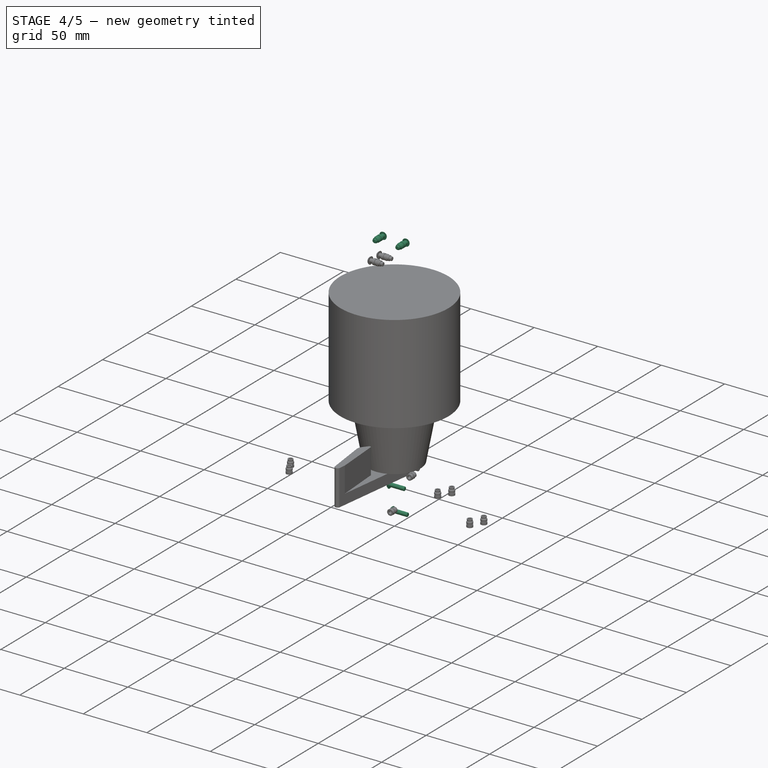
[diagram: stage 4 of 5 — iso view after this stage's code; geometry added in this stage tinted green]
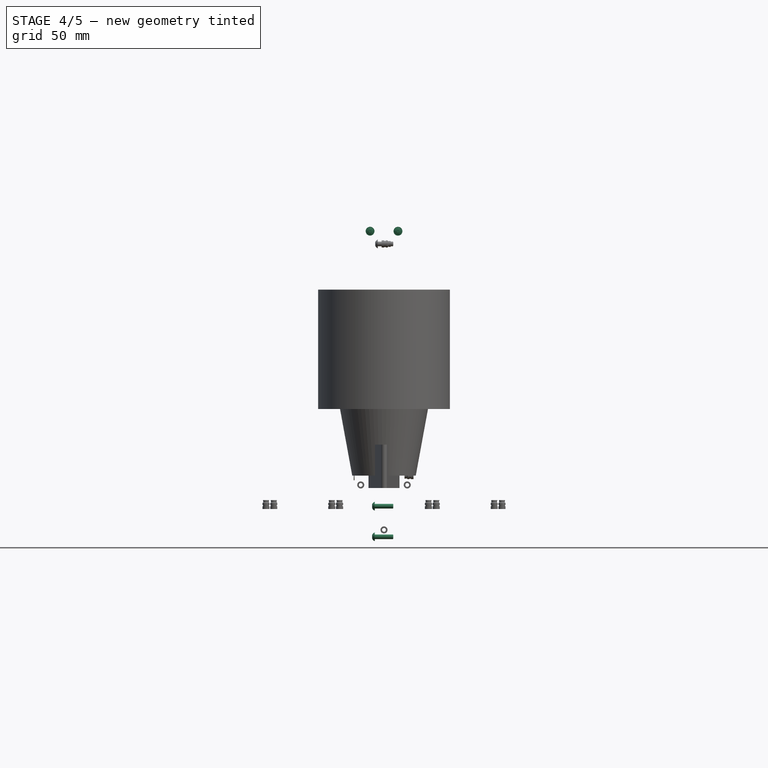
[diagram: stage 4 of 5 — front view after this stage's code; geometry added in this stage tinted green]
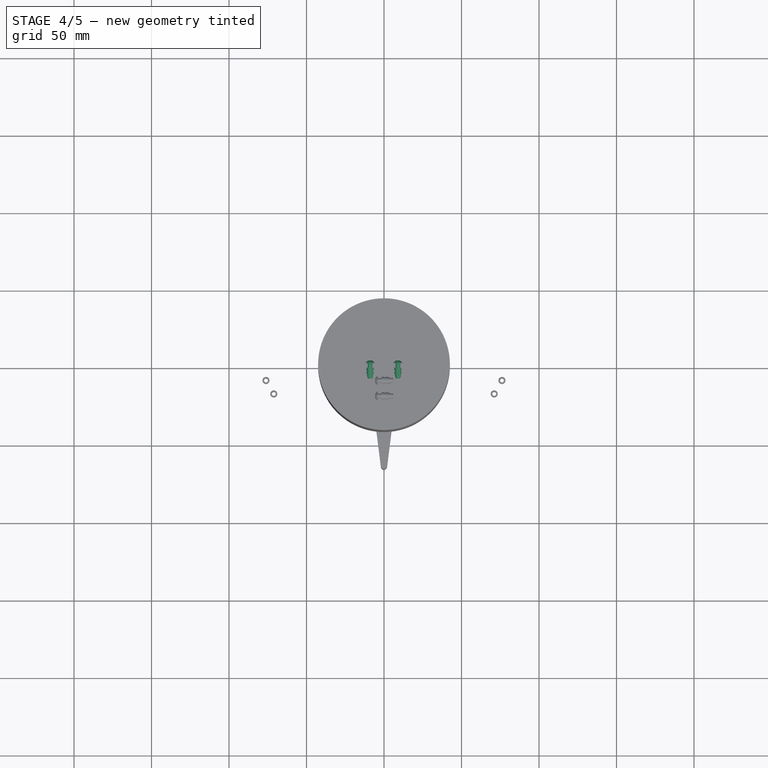
[diagram: stage 4 of 5 — top view after this stage's code; geometry added in this stage tinted green]
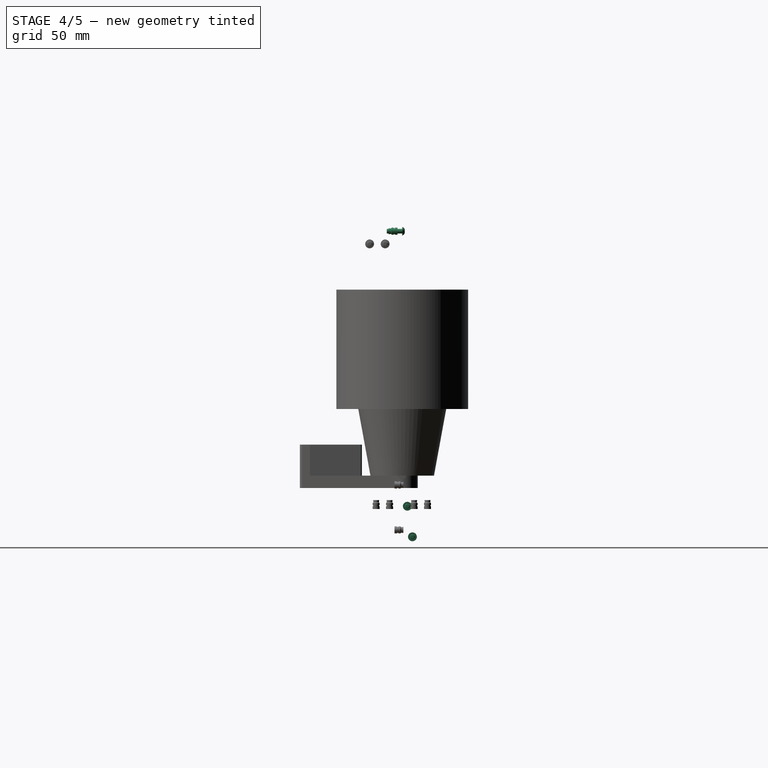
[diagram: stage 4 of 5 — right view after this stage's code; geometry added in this stage tinted green]
FEATURE [Sketcher::SketchObject] Sketch001
  ArcFitTolerance = 1e-06
  AttachmentSupport = -> [XZ_Plane001]
  ExternalBSplineMaxDegree = 5
  ExternalBSplineTolerance = 0.0001
  FixShape = 1
  FullyConstrained = true
  InternalTolerance = 1e-06
  InvalidShape = false
  MakeInternals = false
  MapMode = 5
  Placement = pos=(0,0,0) rot=(1,0,0;1.5708rad)
  Support = -> [XZ_Plane001]
  TreeRank = 22
  ValidateShape = false
  sketch-geometry (23):
    g0: LineSegment StartX=-20 StartY=270 StartZ=0 EndX=-20 EndY=10 EndZ=0
    g1: LineSegment StartX=-20 StartY=10 StartZ=0 EndX=20 EndY=10 EndZ=0
    g2: LineSegment StartX=20 StartY=10 StartZ=0 EndX=20 EndY=270 EndZ=0
    g3: LineSegment StartX=20 StartY=270 StartZ=0 EndX=-20 EndY=270 EndZ=0
    g4: GeomPoint [constr] X=0 Y=140 Z=0
    g5: LineSegment [constr] StartX=-7.5 StartY=15 StartZ=0 EndX=-7.5 EndY=35 EndZ=0
    g6: LineSegment [constr] StartX=-7.5 StartY=35 StartZ=0 EndX=7.5 EndY=35 EndZ=0
    g7: LineSegment [constr] StartX=7.5 StartY=35 StartZ=0 EndX=7.5 EndY=15 EndZ=0
    g8: LineSegment [constr] StartX=7.5 StartY=15 StartZ=0 EndX=-7.5 EndY=15 EndZ=0
    g9: GeomPoint [constr] X=0 Y=25 Z=0
    g10: LineSegment [constr] StartX=-7.5 StartY=245 StartZ=0 EndX=-7.5 EndY=265 EndZ=0
    g11: LineSegment [constr] StartX=-7.5 StartY=265 StartZ=0 EndX=7.5 EndY=265 EndZ=0
    g12: LineSegment [constr] StartX=7.5 StartY=265 StartZ=0 EndX=7.5 EndY=245 EndZ=0
    g13: LineSegment [constr] StartX=7.5 StartY=245 StartZ=0 EndX=-7.5 EndY=245 EndZ=0
    g14: GeomPoint [constr] X=0 Y=255 Z=0
    g15: Circle CenterX=-7.5 CenterY=35 CenterZ=0 NormalX=0 NormalY=0 NormalZ=1 AngleXU=0 Radius=1.75
    g16: Circle CenterX=7.5 CenterY=35 CenterZ=0 NormalX=0 NormalY=0 NormalZ=1 AngleXU=0 Radius=1.75
    g17: Circle CenterX=7.5 CenterY=15 CenterZ=0 NormalX=0 NormalY=0 NormalZ=1 AngleXU=0 Radius=1.75
    g18: Circle CenterX=-7.5 CenterY=15 CenterZ=0 NormalX=0 NormalY=0 NormalZ=1 AngleXU=0 Radius=1.75
    g19: Circle CenterX=-7.5 CenterY=245 CenterZ=0 NormalX=0 NormalY=0 NormalZ=1 AngleXU=0 Radius=1.75
    g20: Circle CenterX=7.5 CenterY=245 CenterZ=0 NormalX=0 NormalY=0 NormalZ=1 AngleXU=0 Radius=1.75
    g21: Circle CenterX=7.5 CenterY=265 CenterZ=0 NormalX=0 NormalY=0 NormalZ=1 AngleXU=0 Radius=1.75
    g22: Circle CenterX=-7.5 CenterY=265 CenterZ=0 NormalX=0 NormalY=0 NormalZ=1 AngleXU=0 Radius=1.75
  constraints (55):
    c: Coincident(g0,g1)
    c: Coincident(g1,g2)
    c: Coincident(g2,g3)
    c: Coincident(g3,g0)
    c: Horizontal(g1)
    c: Horizontal(g3)
    c: Vertical(g0)
    c: Vertical(g2)
    c: Symmetric(g1,g0,g4)
    c: PointOnObject(g4,g-2)
    c: DistanceX(g1,g1) = 40
    c: DistanceY(g0,g0) = 260
    c: DistanceY(g-1,g0) = 10
    c: Coincident(g5,g6)
    c: Coincident(g6,g7)
    c: Coincident(g7,g8)
    c: Coincident(g8,g5)
    c: Horizontal(g6)
    c: Horizontal(g8)
    c: Vertical(g5)
    c: Vertical(g7)
    c: Symmetric(g6,g5,g9)
    c: PointOnObject(g9,g-2)
    c: Coincident(g10,g11)
    c: Coincident(g11,g12)
    c: Coincident(g12,g13)
    c: Coincident(g13,g10)
    c: Horizontal(g11)
    c: Horizontal(g13)
    c: Vertical(g10)
    c: Vertical(g12)
    c: Symmetric(g11,g10,g14)
    c: PointOnObject(g14,g-2)
    c: DistanceY(g12,g12) = 20
    c: DistanceX(g11,g11) = 15
    c: Equal(g13,g6)
    c: Equal(g12,g7)
    c: DistanceY(g1,g7) = 5
    c: DistanceY(g11,g2) = 5
    c: Coincident(g15,g5)
    c: Coincident(g16,g6)
    c: Coincident(g17,g7)
    c: Coincident(g18,g5)
    c: Coincident(g19,g10)
    c: Coincident(g20,g12)
    c: Coincident(g21,g11)
    c: Coincident(g22,g10)
    c: Equal(g22,g19)
    c: Equal(g22,g21)
    c: Equal(g22,g20)
    c: Equal(g22,g16)
    c: Equal(g22,g15)
    c: Equal(g22,g18)
    c: Equal(g22,g17)
    c: Diameter(g22) = 3.5
FEATURE [PartDesign::Pad] Pad
  AddSubType = 0
  AlongSketchNormal = false
  AutoTaperInnerAngle = true
  CheckUpToFaceLimits = true
  ClaimChildren = false
  Direction = (0,-1,0)
  Fit = 0
  FitJoin = 0
  FixShape = 1
  InnerFit = 0
  InnerFitJoin = 0
  InvalidShape = false
  Length = 3
  Length2 = 10
  Linearize = true
  NewSolid = false
  Profile = -> Sketch001
  ReferenceAxis = -> Sketch001 [N_Axis]
  Refine = true
  Suppress = false
  TaperInnerAngle = 0
  TaperInnerAngleRev = 0
  TreeRank = 23
  Type = 0
  ValidateShape = false
  _ProfileBasedVersion = 1
FEATURE [PartDesign::Chamfer] Chamfer
  AddSubType = 0
  Angle = 45
  Base = -> Pad [Edge8,Edge1,Edge5,Edge2]
  BaseFeature = -> Pad
  ChamferType = 0
  FixShape = 1
  FlipDirection = false
  InvalidShape = false
  NewSolid = false
  Refine = true
  Size = 3
  Size2 = 1
  SupportTransform = false
  Suppress = false
  TreeRank = 24
  UseAllEdges = false
  ValidateShape = false
FEATURE [Sketcher::SketchObject] Sketch
  ArcFitTolerance = 1e-06
  AttachmentSupport = -> [XZ_Plane001]
  ExternalBSplineMaxDegree = 5
  ExternalBSplineTolerance = 0.0001
  ExternalGeometry = -> [Chamfer]
  FixShape = 1
  FullyConstrained = true
  InternalTolerance = 1e-06
  InvalidShape = false
  MakeInternals = false
  MapMode = 5
  Placement = pos=(0,0,0) rot=(1,0,0;1.5708rad)
  Support = -> [XZ_Plane001]
  TreeRank = 28
  ValidateShape = false
  sketch-geometry (10):
    g0: LineSegment StartX=-25 StartY=97.5 StartZ=0 EndX=-25 EndY=182.5 EndZ=0
    g1: LineSegment StartX=-25 StartY=182.5 StartZ=0 EndX=-15 EndY=182.5 EndZ=0
    g2: LineSegment StartX=-15 StartY=182.5 StartZ=0 EndX=-15 EndY=97.5 EndZ=0
    g3: LineSegment StartX=-15 StartY=97.5 StartZ=0 EndX=-25 EndY=97.5 EndZ=0
    g4: GeomPoint [constr] X=-20 Y=140 Z=0
    g5: LineSegment StartX=15 StartY=182.5 StartZ=0 EndX=15 EndY=97.5 EndZ=0
    g6: LineSegment StartX=15 StartY=97.5 StartZ=0 EndX=25 EndY=97.5 EndZ=0
    g7: LineSegment StartX=25 StartY=97.5 StartZ=0 EndX=25 EndY=182.5 EndZ=0
    g8: LineSegment StartX=25 StartY=182.5 StartZ=0 EndX=15 EndY=182.5 EndZ=0
    g9: GeomPoint [constr] X=20 Y=140 Z=0
  constraints (24):
    c: Coincident(g0,g1)
    c: Coincident(g1,g2)
    c: Coincident(g2,g3)
    c: Coincident(g3,g0)
    c: Horizontal(g1)
    c: Horizontal(g3)
    c: Vertical(g0)
    c: Vertical(g2)
    c: Symmetric(g1,g0,g4)
    c: Coincident(g5,g6)
    c: Coincident(g6,g7)
    c: Coincident(g7,g8)
    c: Coincident(g8,g5)
    c: Horizontal(g6)
    c: Horizontal(g8)
    c: Vertical(g5)
    c: Vertical(g7)
    c: Symmetric(g6,g5,g9)
    c: Equal(g7,g0)
    c: Equal(g8,g1)
    c: Symmetric(g5,g1,g-2)
    c: DistanceY(g7,g7) = 85
    c: Symmetric(g-3,g-3,g9)
    c: DistanceX(g8,g8) = 10
FEATURE [PartDesign::Pocket] Pocket
  AddSubType = 1
  AlongSketchNormal = false
  AutoTaperInnerAngle = true
  BaseFeature = -> Chamfer
  CheckUpToFaceLimits = true
  ClaimChildren = false
  Direction = (0,1,2e-16)
  Fit = 0
  FitJoin = 0
  FixShape = 1
  InnerFit = 0
  InnerFitJoin = 0
  InvalidShape = false
  Length = 5
  Length2 = 10
  Linearize = true
  NewSolid = false
  Profile = -> Sketch
  ReferenceAxis = -> Sketch [N_Axis]
  Refine = true
  Reversed = true
  Suppress = false
  TaperInnerAngle = 0
  TaperInnerAngleRev = 0
  TreeRank = 29
  Type = 1
  ValidateShape = false
  _ProfileBasedVersion = 1
  _Version = 1
FEATURE [PartDesign::Chamfer] Chamfer001
  AddSubType = 0
  Angle = 45
  Base = -> Pocket [Edge59,Edge60,Edge54,Edge53,Edge61,Edge62,Edge28,Edge2]
  BaseFeature = -> Pocket
  ChamferType = 0
  FixShape = 1
  FlipDirection = false
  InvalidShape = false
  NewSolid = false
  Refine = true
  Size = 1
  Size2 = 1
  SupportTransform = false
  Suppress = false
  TreeRank = 30
  UseAllEdges = false
  ValidateShape = false
FEATURE [App::Link] Link010  label="Link010(BrasInferieur)"
  AutoLinkLabel = true
  AutoPlacement = true
  LinkPlacement = pos=(-3,-3.8147e-06,-7.62939e-06) rot=(0,0,1;0rad)
  LinkedObject = -> Body004
  Placement = pos=(-3,-3.8147e-06,-7.62939e-06) rot=(0,0,1;0rad)
  SyncGroupVisibility = false
  TreeRank = 227
  _LinkVersion = 1
FEATURE [App::Link] Link011  label="Link011(*BrasInferieur)"
  AutoLinkLabel = true
  AutoPlacement = true
  LinkPlacement = pos=(24,-1.14441e-05,7.62939e-06) rot=(0,0,1;0rad)
  LinkedObject = -> Link003
  Placement = pos=(24,-1.14441e-05,7.62939e-06) rot=(0,0,1;0rad)
  SyncGroupVisibility = false
  TreeRank = 228
  _LinkVersion = 1
FEATURE [App::Link] Link012  label="Link012(*MF83)"
  AutoLinkLabel = true
  AutoPlacement = true
  LinkPlacement = pos=(6.67572e-06,-1.04427e-05,-1.52588e-05) rot=(0,0,-1;1.5708rad)
  LinkedObject = -> Link004
  Placement = pos=(6.67572e-06,-1.04427e-05,-1.52588e-05) rot=(0,0,-1;1.5708rad)
  SyncGroupVisibility = false
  TreeRank = 229
  _LinkVersion = 1
FEATURE [App::Link] Link013  label="Link013(*MF83)"
  AutoLinkLabel = true
  AutoPlacement = true
  LinkPlacement = pos=(-5.24521e-06,2.93852e-06,-73) rot=(0,0,-1;1.5708rad)
  LinkedObject = -> Link005
  Placement = pos=(-5.24521e-06,2.93852e-06,-73) rot=(0,0,-1;1.5708rad)
  SyncGroupVisibility = false
  TreeRank = 230
  _LinkVersion = 1
  expr: Placement.Base.z = -Sketch002.Constraints.LBras
FEATURE [App::Link] Link014  label="Link014(*MF83)"
  AutoLinkLabel = true
  AutoPlacement = true
  LinkPlacement = pos=(18,-1.23979e-06,7.62939e-06) rot=(0,0,1;1.5708rad)
  LinkedObject = -> Link006
  Placement = pos=(18,-1.23979e-06,7.62939e-06) rot=(0,0,1;1.5708rad)
  SyncGroupVisibility = false
  TreeRank = 231
  _LinkVersion = 1
FEATURE [App::Link] Link015  label="Link015(*MF83)"
  AutoLinkLabel = true
  AutoPlacement = true
  LinkPlacement = pos=(18,1.61946e-05,-73) rot=(0,0,1;1.5708rad)
  LinkedObject = -> Link007
  Placement = pos=(18,1.61946e-05,-73) rot=(0,0,1;1.5708rad)
  SyncGroupVisibility = false
  TreeRank = 232
  _LinkVersion = 1
  expr: Placement.Base.z = -Sketch002.Constraints.LBras
FEATURE [App::DocumentObjectGroup] Group004  label="RoulementsBrasInf"
  ClaimAllChildren = true
  ExportMode = 1
  Group = -> [Link004,Link005,Link006,Link007,Link012,Link013,Link014,Link015]
  TreeRank = 212
  _GroupVersion = 1
FEATURE [Part::SubShapeBinder] Import002  label="Import002(Fillet006)"
  BindCopyOnChange = 0
  BindMode = 0
  ClaimChildren = false
  Context = -> Part [Part004.Body005.Import002.]
  EdgeTolerance = 1e-06
  FillStyle = 0
  FixShape = 1
  Fuse = false
  InvalidShape = false
  MakeFace = false
  MergeEdges = true
  OffsetFill = false
  OffsetIntersection = false
  OffsetJoinType = 0
  OffsetOpenResult = false
  Outline = false
  PartialLoad = false
  Relative = true
  SplitEdges = false
  Support = -> [Body004[Fillet006.]]
  TightBound = false
  TreeRank = 244
  ValidateShape = false
  _Version = 8
FEATURE [Sketcher::SketchObject] Sketch018
  ArcFitTolerance = 1e-06
  AttachmentSupport = -> [YZ_Plane005]
  ExternalBSplineMaxDegree = 5
  ExternalBSplineTolerance = 0.0001
  ExternalGeometry = -> [Import002]
  FixShape = 1
  FullyConstrained = true
  InternalTolerance = 1e-06
  InvalidShape = false
  MakeInternals = false
  MapMode = 5
  Placement = pos=(0,0,0) rot=(0.57735,0.57735,0.57735;2.0944rad)
  Support = -> [YZ_Plane005]
  TreeRank = 243
  ValidateShape = false
  sketch-geometry (8):
    g0: Circle CenterX=3.30095 CenterY=-19.7257 CenterZ=0 NormalX=0 NormalY=0 NormalZ=1 AngleXU=0 Radius=2.05
    g1: Circle CenterX=6.6019 CenterY=-39.4514 CenterZ=0 NormalX=0 NormalY=0 NormalZ=1 AngleXU=0 Radius=2.05
    g2: ArcOfCircle CenterX=3.30095 CenterY=-19.7257 CenterZ=0 NormalX=0 NormalY=0 NormalZ=1 AngleXU=0 Radius=4 StartAngle=5.40179 EndAngle=10.6378
    g3: ArcOfCircle CenterX=6.6019 CenterY=-39.4514 CenterZ=0 NormalX=0 NormalY=0 NormalZ=1 AngleXU=0 Radius=4 StartAngle=2.2602 EndAngle=7.49619
    g4: LineSegment StartX=1.90012 StartY=-23.4724 StartZ=0 EndX=4.05759 EndY=-36.3649 EndZ=0
    g5: LineSegment StartX=5.84526 StartY=-22.8122 StartZ=0 EndX=8.00273 EndY=-35.7047 EndZ=0
    g6: LineSegment [constr] StartX=3.30095 StartY=-19.7257 StartZ=0 EndX=6.6019 EndY=-39.4514 EndZ=0
    g7: LineSegment [constr] StartX=-3.60305 StartY=-20.881 StartZ=0 EndX=10.205 EndY=-18.5704 EndZ=0
  constraints (23):
    c: Equal(g1,g0)
    c: Diameter(g1) = 4.1
    c: Coincident(g2,g0)
    c: Coincident(g3,g1)
    c: Coincident(g4,g2)
    c: Coincident(g4,g3)
    c: Coincident(g5,g2)
    c: Coincident(g5,g3)
    c: Coincident(g6,g0)
    c: Coincident(g6,g1)
    c: Parallel(g5,g6)
    c: Parallel(g6,g4)
    c: Equal(g3,g2)
    c: Radius(g3) = 4
    c: Distance(g2,g2) = 4
    c: Distance(g6) = 20
    c: Parallel(g6,g-3)
    c: Equal(g5,g4)
    c: PointOnObject(g7,g-3)
    c: PointOnObject(g7,g-4)
    c: Perpendicular(g-4,g7)
    c: Symmetric(g7,g7,g0)
    c: Distance(g-1,g0) = 20
FEATURE [PartDesign::Pad] Pad012
  AddSubType = 0
  AlongSketchNormal = false
  AutoTaperInnerAngle = true
  CheckUpToFaceLimits = true
  ClaimChildren = false
  Direction = (1,-2e-16,3e-16)
  Fit = 0
  FitJoin = 0
  FixShape = 1
  InnerFit = 0
  InnerFitJoin = 0
  InvalidShape = false
  Length = 18
  Length2 = 10
  Linearize = true
  NewSolid = false
  Profile = -> Sketch018
  ReferenceAxis = -> Sketch018 [N_Axis]
  Refine = true
  Suppress = false
  TaperInnerAngle = 0
  TaperInnerAngleRev = 0
  TreeRank = 245
  Type = 0
  ValidateShape = false
  _ProfileBasedVersion = 1
FEATURE [App::DocumentObjectGroup] Group006  label="Bras"
  ClaimAllChildren = true
  ExportMode = 1
  Group = -> [Body004,Link003,Link010,Link011]
  TreeRank = 246
  _GroupVersion = 1
FEATURE [PartDesign::Fillet] Fillet008
  AddSubType = 0
  Base = -> Pad012 [Edge2,Edge5,Edge8,Edge1]
  BaseFeature = -> Pad012
  FixShape = 1
  InvalidShape = false
  NewSolid = false
  Radius = 4
  Refine = true
  SupportTransform = false
  Suppress = false
  TreeRank = 247
  UseAllEdges = false
  ValidateShape = false
FEATURE [PartDesign::Chamfer] Chamfer013
  AddSubType = 0
  Angle = 45
  Base = -> Fillet008 [Edge23,Edge12,Edge13,Edge24]
  BaseFeature = -> Fillet008
  ChamferType = 0
  FixShape = 1
  FlipDirection = false
  InvalidShape = false
  NewSolid = false
  Refine = true
  Size = 0.4
  Size2 = 1
  SupportTransform = false
  Suppress = false
  TreeRank = 248
  UseAllEdges = false
  ValidateShape = false
FEATURE [PartDesign::Chamfer] Chamfer014
  AddSubType = 0
  Angle = 45
  Base = -> Chamfer013 [Edge15,Edge2]
  BaseFeature = -> Chamfer013
  ChamferType = 0
  FixShape = 1
  FlipDirection = false
  InvalidShape = false
  NewSolid = false
  Refine = true
  Size = 0.4
  Size2 = 1
  SupportTransform = false
  Suppress = false
  TreeRank = 249
  UseAllEdges = false
  ValidateShape = false
FEATURE [Part::FeaturePython] Insert015  label="M3-Insert799"  # Fasteners workbench fastener (typed FeaturePython)
  FixShape = 1
  InvalidShape = false
  Placement = pos=(5.5e-15,3.30095,-19.7257) rot=(0,-1,0;1.5708rad)
  TreeRank = 256
  ValidateShape = false
  baseObject = -> Body005 [Edge9]
  diameter = 3
  externalDiam = 4.55
  invert = true
  leftHanded = false
  length = 5.74
  matchOuter = false
  offset = 0
  thread = false
  type = 30
FEATURE [Part::FeaturePython] Insert016  label="M3-Insert800"  # Fasteners workbench fastener (typed FeaturePython)
  FixShape = 1
  InvalidShape = false
  Placement = pos=(9.9e-15,6.6019,-39.4514) rot=(0,-1,0;1.5708rad)
  TreeRank = 257
  ValidateShape = false
  baseObject = -> Body005 [Edge10]
  diameter = 3
  externalDiam = 4.55
  invert = true
  leftHanded = false
  length = 5.74
  matchOuter = false
  offset = 0
  thread = false
  type = 30
FEATURE [Part::FeaturePython] Screw024  label="M3x12-Vis632"  # Fasteners workbench fastener (typed FeaturePython)
  FixShape = 1
  InvalidShape = false
  Placement = pos=(-6,3.30095,-19.7257) rot=(0,-1,0;1.5708rad)
  TreeRank = 263
  ValidateShape = false
  baseObject = -> Insert015 [Edge1]
  diameter = 1
  invert = false
  leftHanded = false
  length = 3
  lengthCustom = 12
  matchOuter = false
  offset = 6
  thread = false
  type = 54
FEATURE [Part::FeaturePython] Screw025  label="M3x12-Vis633"  # Fasteners workbench fastener (typed FeaturePython)
  FixShape = 1
  InvalidShape = false
  Placement = pos=(-6,6.6019,-39.4514) rot=(0,-1,0;1.5708rad)
  TreeRank = 264
  ValidateShape = false
  baseObject = -> Insert016 [Edge1]
  diameter = 1
  invert = false
  leftHanded = false
  length = 3
  lengthCustom = 12
  matchOuter = false
  offset = 6
  thread = false
  type = 54
FEATURE [PartDesign::Body] Body006  label="PareBuffle"
  AutoGroupSolids = false
  ClaimAllChildren = false
  ExportMode = 0
  FixShape = 1
  Group = -> [Sketch019,Import003,Import004,Import005,Pad013,Sketch020,Pad014,Mirrored,Sketch021,Pocket007,Mirrored001,Sketch022,Pocket008,Pocket011,Sketch025,Sketch037,Pipe,Sketch038,Pipe001,Sketch039,Pipe002,Sketch040,Pipe003,Chamfer015,Fillet021,Fillet022,DatumLine,DatumLine001]
  InvalidShape = false
  Origin = -> Origin011
  Placement = pos=(0,0,-21.5) rot=(0,0,1;0rad)
  SingleSolid = true
  Tip = -> Fillet022
  TreeRank = 276
  ValidateShape = false
  _ExportChildren = -> [Import003,Import004,Import005,Pad013,Pad014,Mirrored,Pocket007,Mirrored001,Pocket008,Pocket011,Pipe,Pipe001,Pipe002,Pipe003,Chamfer015,Fillet021,Fillet022,DatumLine,DatumLine001]
  _GroupVersion = 1
FEATURE [App::DocumentObjectGroup] Group007  label="Visserie Plate"
  ClaimAllChildren = true
  ExportMode = 1
  Group = -> [Screw,Screw001,Screw002,Screw003,Screw004,Screw005,Screw006,Screw007]
  TreeRank = 561
  _GroupVersion = 1
FEATURE [Part::FeaturePython] Insert  label="M3x5.74-Insert"  # Fasteners workbench fastener (typed FeaturePython)
  FixShape = 1
  InvalidShape = false
  Placement = pos=(-1.5,-21,149.5) rot=(0,-1,0;1.5708rad)
  TreeRank = 562
  ValidateShape = false
  baseObject = -> Body [?Edge6]
  diameter = 3
  externalDiam = 4.55
  invert = true
  leftHanded = false
  length = 5.74
  matchOuter = false
  offset = 0
  thread = false
  type = 30
FEATURE [Part::FeaturePython] Insert001  label="M3x5.74-Insert113"  # Fasteners workbench fastener (typed FeaturePython)
  FixShape = 1
  InvalidShape = false
  Placement = pos=(-1.5,-11,149.5) rot=(0,-1,0;1.5708rad)
  TreeRank = 563
  ValidateShape = false
  baseObject = -> Body [?Edge66]
  diameter = 3
  externalDiam = 4.55
  invert = true
  leftHanded = false
  length = 5.74
  matchOuter = false
  offset = 0
  thread = false
  type = 30
FEATURE [Part::FeaturePython] Insert002  label="M3x5.74-Insert114"  # Fasteners workbench fastener (typed FeaturePython)
  FixShape = 1
  InvalidShape = false
  Placement = pos=(-1.5,-11,100.5) rot=(0,-1,0;1.5708rad)
  TreeRank = 564
  ValidateShape = false
  baseObject = -> Body [?Edge76]
  diameter = 3
  externalDiam = 4.55
  invert = true
  leftHanded = false
  length = 5.74
  matchOuter = false
  offset = 0
  thread = false
  type = 30
FEATURE [Part::FeaturePython] Insert003  label="M3x5.74-Insert115"  # Fasteners workbench fastener (typed FeaturePython)
  FixShape = 1
  InvalidShape = false
  Placement = pos=(-1.5,-21,100.5) rot=(0,-1,0;1.5708rad)
  TreeRank = 565
  ValidateShape = false
  baseObject = -> Body [?Edge75]
  diameter = 3
  externalDiam = 4.55
  invert = true
  leftHanded = false
  length = 5.74
  matchOuter = false
  offset = 0
  thread = false
  type = 30
FEATURE [Part::FeaturePython] Insert004  label="M3x5.74-Insert116"  # Fasteners workbench fastener (typed FeaturePython)
  FixShape = 1
  InvalidShape = false
  Placement = pos=(-9,-3,157.725) rot=(-1,0,0;1.5708rad)
  TreeRank = 566
  ValidateShape = false
  baseObject = -> Body [?Edge78]
  diameter = 3
  externalDiam = 4.55
  invert = true
  leftHanded = false
  length = 5.74
  matchOuter = false
  offset = 0
  thread = false
  type = 30
FEATURE [Part::FeaturePython] Insert005  label="M3x5.74-Insert117"  # Fasteners workbench fastener (typed FeaturePython)
  FixShape = 1
  InvalidShape = false
  Placement = pos=(9,-3,157.725) rot=(-1,0,0;1.5708rad)
  TreeRank = 567
  ValidateShape = false
  baseObject = -> Body [?Edge81]
  diameter = 3
  externalDiam = 4.55
  invert = true
  leftHanded = false
  length = 5.74
  matchOuter = false
  offset = 0
  thread = false
  type = 30
FEATURE [Part::FeaturePython] Insert006  label="M3x5.74-Insert118"  # Fasteners workbench fastener (typed FeaturePython)
  FixShape = 1
  InvalidShape = false
  Placement = pos=(0,-3,82.8262) rot=(-1,0,0;1.5708rad)
  TreeRank = 568
  ValidateShape = false
  baseObject = -> Body [?Edge80]
  diameter = 3
  externalDiam = 4.55
  invert = true
  leftHanded = false
  length = 5.74
  matchOuter = false
  offset = 0
  thread = false
  type = 30
FEATURE [Part::FeaturePython] Insert007  label="M3x5.74-Insert119"  # Fasteners workbench fastener (typed FeaturePython)
  FixShape = 1
  InvalidShape = false
  Placement = pos=(0,-3,65.5) rot=(-1,0,0;1.5708rad)
  TreeRank = 569
  ValidateShape = false
  baseObject = -> Body [?Edge79]
  diameter = 3
  externalDiam = 4.55
  invert = true
  leftHanded = false
  length = 5.74
  matchOuter = false
  offset = 0
  thread = false
  type = 30
FEATURE [Part::FeaturePython] Screw008  label="M3x10-Vis"  # Fasteners workbench fastener (typed FeaturePython)
  FixShape = 1
  InvalidShape = false
  Placement = pos=(9,-3.5e-14,157.725) rot=(-1,0,0;1.5708rad)
  TreeRank = 570
  ValidateShape = false
  baseObject = -> Body001 [?Edge43]
  diameter = 1
  invert = true
  leftHanded = false
  length = 2
  lengthCustom = 10
  matchOuter = false
  offset = 0
  thread = false
  type = 54
FEATURE [Part::FeaturePython] Screw009  label="M3x10-Vis447"  # Fasteners workbench fastener (typed FeaturePython)
  FixShape = 1
  InvalidShape = false
  Placement = pos=(-9,-3.5e-14,157.725) rot=(-1,0,0;1.5708rad)
  TreeRank = 571
  ValidateShape = false
  baseObject = -> Body001 [?Edge30]
  diameter = 1
  invert = true
  leftHanded = false
  length = 2
  lengthCustom = 10
  matchOuter = false
  offset = 0
  thread = false
  type = 54
FEATURE [Part::FeaturePython] Screw010  label="M3x10-Vis448"  # Fasteners workbench fastener (typed FeaturePython)
  FixShape = 1
  InvalidShape = false
  Placement = pos=(0,-1.45e-14,65.5) rot=(-1,0,0;1.5708rad)
  TreeRank = 572
  ValidateShape = false
  baseObject = -> Body001 [?Edge34]
  diameter = 1
  invert = true
  leftHanded = false
  length = 2
  lengthCustom = 10
  matchOuter = false
  offset = 0
  thread = false
  type = 54
FEATURE [Part::FeaturePython] Screw011  label="M3x10-Vis449"  # Fasteners workbench fastener (typed FeaturePython)
  FixShape = 1
  InvalidShape = false
  Placement = pos=(0,-1.84e-14,82.8262) rot=(-1,0,0;1.5708rad)
  TreeRank = 573
  ValidateShape = false
  baseObject = -> Body001 [?Edge35]
  diameter = 1
  invert = true
  leftHanded = false
  length = 2
  lengthCustom = 10
  matchOuter = false
  offset = 0
  thread = false
  type = 54
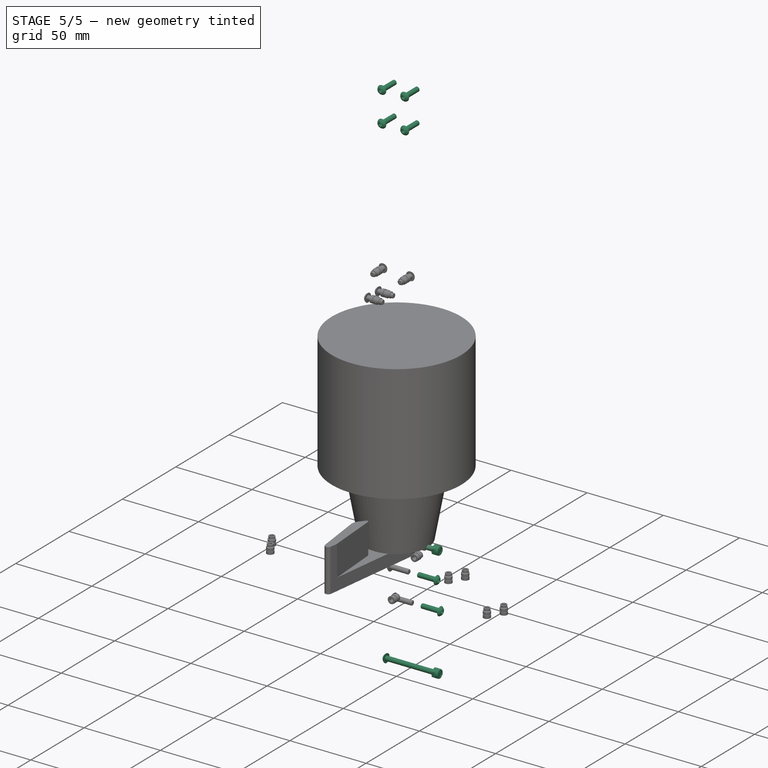
[diagram: stage 5 of 5 — iso view after this stage's code; geometry added in this stage tinted green]
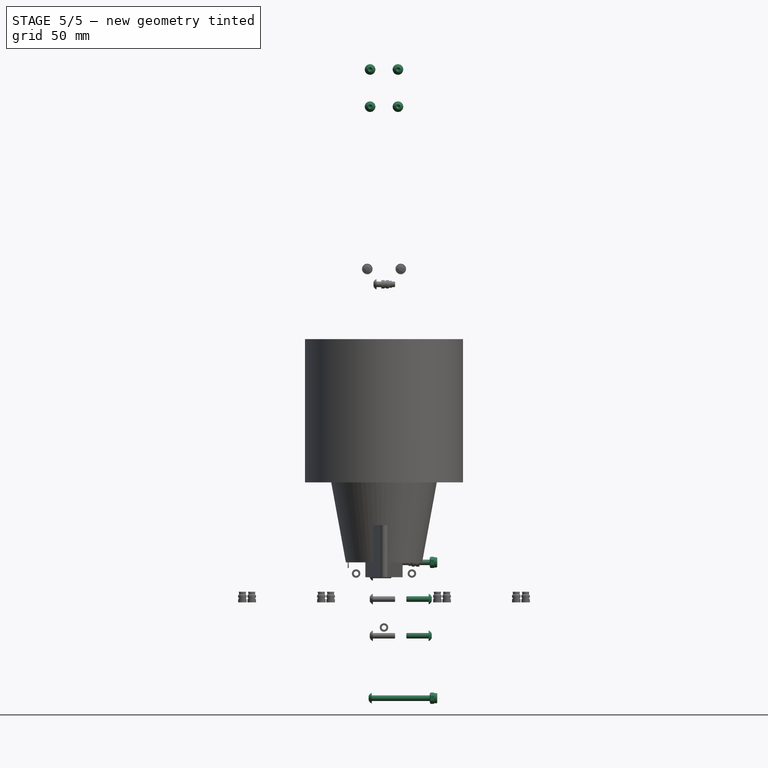
[diagram: stage 5 of 5 — front view after this stage's code; geometry added in this stage tinted green]
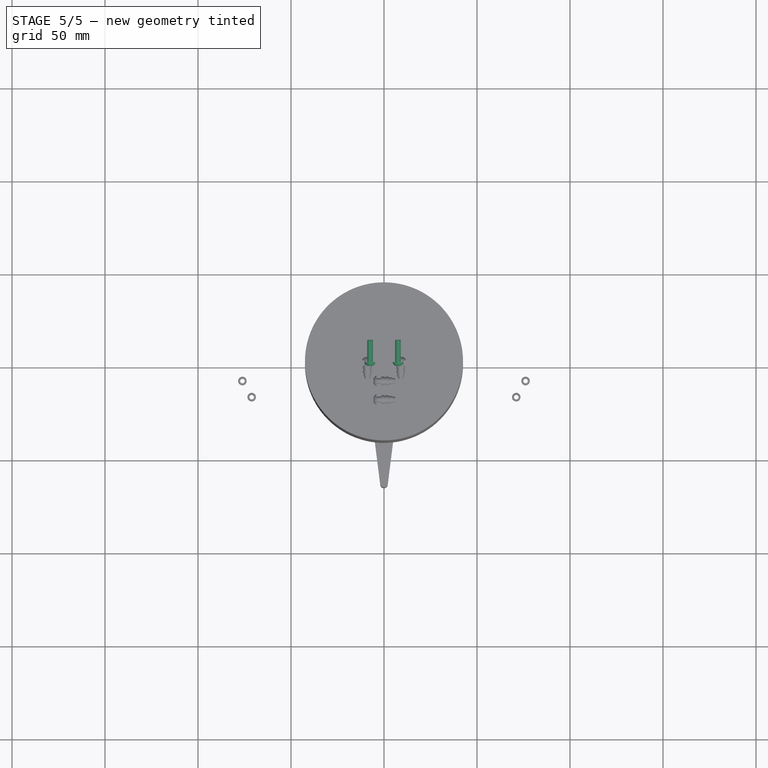
[diagram: stage 5 of 5 — top view after this stage's code; geometry added in this stage tinted green]
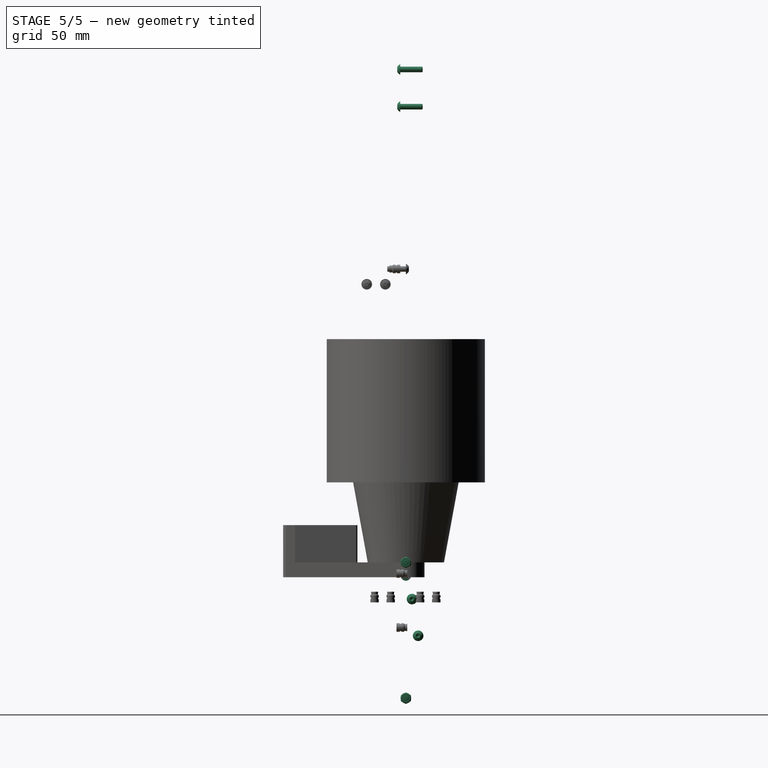
[diagram: stage 5 of 5 — right view after this stage's code; geometry added in this stage tinted green]
FEATURE [PartDesign::Body] Body001  label="MainPlate"
  AutoGroupSolids = false
  ClaimAllChildren = false
  ExportMode = 0
  FixShape = 1
  Group = -> [Sketch001,Pad,Chamfer,Sketch,Pocket,Chamfer001]
  InvalidShape = false
  Origin = -> Origin001
  SingleSolid = true
  Tip = -> Chamfer001
  TreeRank = 21
  ValidateShape = false
  _ExportChildren = -> [Pad,Chamfer,Pocket,Chamfer001]
  _GroupVersion = 1
FEATURE [Part::FeaturePython] Screw  label="M3x12-Vis"  # Fasteners workbench fastener (typed FeaturePython)
  FixShape = 1
  InvalidShape = false
  Placement = pos=(-7.5,-3,265) rot=(1,0,0;1.5708rad)
  TreeRank = 543
  ValidateShape = false
  baseObject = -> Body001 [Edge64]
  diameter = 1
  invert = false
  leftHanded = false
  length = 3
  lengthCustom = 12
  matchOuter = false
  offset = 0
  thread = false
  type = 54
FEATURE [Part::FeaturePython] Screw001  label="M3x12-Vis669"  # Fasteners workbench fastener (typed FeaturePython)
  FixShape = 1
  InvalidShape = false
  Placement = pos=(7.5,-3,265) rot=(1,0,0;1.5708rad)
  TreeRank = 544
  ValidateShape = false
  baseObject = -> Body001 [Edge68]
  diameter = 1
  invert = false
  leftHanded = false
  length = 3
  lengthCustom = 12
  matchOuter = false
  offset = 0
  thread = false
  type = 54
FEATURE [Part::FeaturePython] Screw002  label="M3x12-Vis670"  # Fasteners workbench fastener (typed FeaturePython)
  FixShape = 1
  InvalidShape = false
  Placement = pos=(7.5,-3,245) rot=(1,0,0;1.5708rad)
  TreeRank = 545
  ValidateShape = false
  baseObject = -> Body001 [Edge67]
  diameter = 1
  invert = false
  leftHanded = false
  length = 3
  lengthCustom = 12
  matchOuter = false
  offset = 0
  thread = false
  type = 54
FEATURE [Part::FeaturePython] Screw003  label="M3x12-Vis671"  # Fasteners workbench fastener (typed FeaturePython)
  FixShape = 1
  InvalidShape = false
  Placement = pos=(-7.5,-3,245) rot=(1,0,0;1.5708rad)
  TreeRank = 546
  ValidateShape = false
  baseObject = -> Body001 [Edge63]
  diameter = 1
  invert = false
  leftHanded = false
  length = 3
  lengthCustom = 12
  matchOuter = false
  offset = 0
  thread = false
  type = 54
FEATURE [Part::FeaturePython] Screw004  label="M3x12-Vis672"  # Fasteners workbench fastener (typed FeaturePython)
  FixShape = 1
  InvalidShape = false
  Placement = pos=(-7.5,-3,15) rot=(1,0,0;1.5708rad)
  TreeRank = 547
  ValidateShape = false
  baseObject = -> Body001 [Edge61]
  diameter = 1
  invert = false
  leftHanded = false
  length = 3
  lengthCustom = 12
  matchOuter = false
  offset = 0
  thread = false
  type = 54
FEATURE [Part::FeaturePython] Screw005  label="M3x12-Vis673"  # Fasteners workbench fastener (typed FeaturePython)
  FixShape = 1
  InvalidShape = false
  Placement = pos=(-7.5,-3,35) rot=(1,0,0;1.5708rad)
  TreeRank = 548
  ValidateShape = false
  baseObject = -> Body001 [Edge62]
  diameter = 1
  invert = false
  leftHanded = false
  length = 3
  lengthCustom = 12
  matchOuter = false
  offset = 0
  thread = false
  type = 54
FEATURE [Part::FeaturePython] Screw006  label="M3x12-Vis674"  # Fasteners workbench fastener (typed FeaturePython)
  FixShape = 1
  InvalidShape = false
  Placement = pos=(7.5,-3,35) rot=(1,0,0;1.5708rad)
  TreeRank = 549
  ValidateShape = false
  baseObject = -> Body001 [Edge66]
  diameter = 1
  invert = false
  leftHanded = false
  length = 3
  lengthCustom = 12
  matchOuter = false
  offset = 0
  thread = false
  type = 54
FEATURE [Part::FeaturePython] Screw007  label="M3x12-Vis675"  # Fasteners workbench fastener (typed FeaturePython)
  FixShape = 1
  InvalidShape = false
  Placement = pos=(7.5,-3,15) rot=(1,0,0;1.5708rad)
  TreeRank = 550
  ValidateShape = false
  baseObject = -> Body001 [Edge65]
  diameter = 1
  invert = false
  leftHanded = false
  length = 3
  lengthCustom = 12
  matchOuter = false
  offset = 0
  thread = false
  type = 54
FEATURE [PartDesign::Body] Body  label="BerceauServo"
  AutoGroupSolids = false
  ClaimAllChildren = false
  ExportMode = 0
  FixShape = 1
  Group = -> [Sketch003,Import,Pad001,Sketch004,Pad002,Sketch005,Pad003,Sketch006,Pad004,Sketch007,Pocket001,Sketch008,Pocket002,Pad005,Pad006,Draft,Draft001,Sketch009,Pad007,Sketch010,Pocket003,Fillet,Fillet001,Fillet002,Fillet003,Chamfer002,Chamfer003,Chamfer004,Chamfer005]
  InvalidShape = false
  Origin = -> Origin003
  Placement = pos=(0,-3,115) rot=(0,0,1;0rad)
  SingleSolid = true
  Tip = -> Chamfer005
  TreeRank = 63
  ValidateShape = false
  _ExportChildren = -> [Import,Pad001,Pad002,Pad003,Pad004,Pocket001,Pocket002,Pad005,Pad006,Draft,Draft001,Pad007,Pocket003,Fillet,Fillet001,Fillet002,Fillet003,Chamfer002,Chamfer003,Chamfer004,Chamfer005]
  _GroupVersion = 1
FEATURE [Sketcher::SketchObject] Sketch012
  ArcFitTolerance = 1e-06
  AttachmentSupport = -> [YZ_Plane002]
  ExternalBSplineMaxDegree = 5
  ExternalBSplineTolerance = 0.0001
  FixShape = 1
  FullyConstrained = true
  InternalTolerance = 1e-06
  InvalidShape = false
  MakeInternals = false
  MapMode = 5
  Placement = pos=(0,0,0) rot=(0.57735,0.57735,0.57735;2.0944rad)
  Support = -> [YZ_Plane002]
  TreeRank = 139
  ValidateShape = false
  expr: Constraints[3] = Sketch002.Constraints.LBras
  sketch-geometry (20):
    g0: ArcOfCircle CenterX=0 CenterY=0 CenterZ=0 NormalX=0 NormalY=0 NormalZ=1 AngleXU=0 Radius=10 StartAngle=6.09612 EndAngle=9.38114
    g1: ArcOfCircle CenterX=0 CenterY=-73 CenterZ=0 NormalX=0 NormalY=0 NormalZ=1 AngleXU=0 Radius=7 StartAngle=3.27249 EndAngle=6.41409
    g2: Circle CenterX=0 CenterY=0 CenterZ=0 NormalX=0 NormalY=0 NormalZ=1 AngleXU=0 Radius=3.5
    g3: Circle [constr] CenterX=0 CenterY=0 CenterZ=0 NormalX=0 NormalY=0 NormalZ=1 AngleXU=0 Radius=7
    g4: LineSegment [constr] StartX=0 StartY=-7 StartZ=0 EndX=7 EndY=-1.8e-15 EndZ=0
    g5: LineSegment [constr] StartX=7 StartY=-1.7e-15 StartZ=0 EndX=3.6e-15 EndY=7 EndZ=0
    g6: LineSegment [constr] StartX=3.9e-15 StartY=7 StartZ=0 EndX=-7 EndY=2.7e-15 EndZ=0
    g7: LineSegment [constr] StartX=-7 StartY=2.9e-15 StartZ=0 EndX=0 EndY=-7 EndZ=0
    g8: Circle [constr] CenterX=0 CenterY=0 CenterZ=0 NormalX=0 NormalY=0 NormalZ=1 AngleXU=0 Radius=7
    g9: Circle CenterX=-7 CenterY=2.9e-15 CenterZ=0 NormalX=0 NormalY=0 NormalZ=1 AngleXU=0 Radius=1.75
    g10: Circle CenterX=0 CenterY=-7 CenterZ=0 NormalX=0 NormalY=0 NormalZ=1 AngleXU=0 Radius=1.75
    g11: Circle CenterX=7 CenterY=-1.7e-15 CenterZ=0 NormalX=0 NormalY=0 NormalZ=1 AngleXU=0 Radius=1.75
    g12: Circle CenterX=3.9e-15 CenterY=7 CenterZ=0 NormalX=0 NormalY=0 NormalZ=1 AngleXU=0 Radius=1.75
    g13: Circle CenterX=0 CenterY=-73 CenterZ=0 NormalX=0 NormalY=0 NormalZ=1 AngleXU=0 Radius=4
    g14: LineSegment StartX=-6.94011 StartY=-73.9137 StartZ=0 EndX=-11.6685 EndY=-37.9977 EndZ=0
    g15: LineSegment StartX=6.94011 StartY=-72.0863 StartZ=0 EndX=2.67099 EndY=-39.6591 EndZ=0
    g16: LineSegment StartX=-11.6685 StartY=-37.9977 StartZ=0 EndX=-9.99048 EndY=0.436194 EndZ=0
    g17: LineSegment StartX=2.67099 StartY=-39.6591 StartZ=0 EndX=9.82554 EndY=-1.85975 EndZ=0
    g18: LineSegment [constr] StartX=2.67099 StartY=-39.6591 StartZ=0 EndX=-11.6685 EndY=-37.9977 EndZ=0
    g19: LineSegment [constr] StartX=-4.49877 StartY=-38.8284 StartZ=0 EndX=0 EndY=0 EndZ=0
  constraints (47):
    c: Coincident(g0,g-1)
    c: PointOnObject(g1,g-2)
    c: Radius(g0) = 10
    c: DistanceY(g1,g0) = 73
    c: Radius(g1) = 7
    c: Coincident(g2,g0)
    c: Diameter(g2) = 7
    c: Coincident(g3,g0)
    c: Diameter(g3) = 14
    c: Coincident(g4,g5)
    c: Coincident(g5,g6)
    c: Coincident(g6,g7)
    c: Coincident(g7,g4)
    c: Equal(g4,g5)
    c: Equal(g4,g6)
    c: Equal(g4,g7)
    c: PointOnObject(g4,g8)
    c: PointOnObject(g5,g8)
    c: PointOnObject(g6,g8)
    c: PointOnObject(g7,g8)
    c: Coincident(g8,g0)
    c: PointOnObject(g7,g3)
    c: PointOnObject(g4,g-2)
    c: Coincident(g9,g6)
    c: Coincident(g10,g4)
    c: Coincident(g11,g4)
    c: Coincident(g12,g5)
    c: Equal(g12,g11)
    c: Equal(g12,g10)
    c: Equal(g12,g9)
    c: Diameter(g12) = 3.5
    c: Coincident(g13,g1)
    c: Diameter(g13) = 8
    c: Tangent(g15,g1) = -1.5708
    c: Tangent(g14,g1) = 1.5708
    c: Coincident(g16,g14)
    c: Coincident(g17,g15)
    c: Tangent(g17,g0) = -1.5708
    c: Tangent(g16,g0) = 1.5708
    c: Parallel(g14,g15)
    c: Coincident(g18,g15)
    c: Coincident(g18,g14)
    c: Coincident(g19,g0)
    c: Symmetric(g14,g15,g19)
    c: Perpendicular(g19,g18)
    c: Angle(g-2,g14) = 0.1309
    c: Angle(g14,g16) = 2.96706
FEATURE [PartDesign::Pad] Pad008
  AddSubType = 0
  AlongSketchNormal = false
  AutoTaperInnerAngle = true
  CheckUpToFaceLimits = true
  ClaimChildren = false
  Direction = (1,-2e-16,3e-16)
  Fit = 0
  FitJoin = 0
  FixShape = 1
  InnerFit = 0
  InnerFitJoin = 0
  InvalidShape = false
  Length = 3
  Length2 = 10
  Linearize = true
  NewSolid = false
  Profile = -> Sketch012
  ReferenceAxis = -> Sketch012 [N_Axis]
  Refine = true
  Reversed = true
  Suppress = false
  TaperInnerAngle = 0
  TaperInnerAngleRev = 0
  TreeRank = 140
  Type = 0
  ValidateShape = false
  _ProfileBasedVersion = 1
FEATURE [Spreadsheet::Sheet] Spreadsheet
  PythonMode = false
  ShowCells = 0
  TreeRank = 141
  cells = A2=Angle Bras :; B2(AngleBras)==Sketch002.Constraints.AngleBras; A3=ZSupport; B3(ZSupport)==Sketch002.Constraints.ZSupport; A4=YSupport; B4(YSupport)==Sketch002.Constraints.YSupport; A5=LBras; B5(LBras)==<<Sketch002>>.Constraints.LBras
FEATURE [App::DocumentObjectGroup] Group001  label="Tools"
  ClaimAllChildren = true
  ExportMode = 1
  Group = -> [Sketch002,Spreadsheet]
  TreeRank = 64
  _GroupVersion = 1
FEATURE [Part::FeaturePython] Screw016  label="M3x10-Vis401"  # Fasteners workbench fastener (typed FeaturePython)
  FixShape = 1
  InvalidShape = false
  Placement = pos=(-6,6.8e-15,7) rot=(0,-1,0;1.5708rad)
  TreeRank = 149
  ValidateShape = false
  baseObject = -> Body002 [Edge32]
  diameter = 1
  invert = true
  leftHanded = false
  length = 2
  lengthCustom = 10
  matchOuter = false
  offset = 3
  thread = false
  type = 54
FEATURE [Part::FeaturePython] Screw017  label="M3x10-Vis402"  # Fasteners workbench fastener (typed FeaturePython)
  FixShape = 1
  InvalidShape = false
  Placement = pos=(-6,-7,2.9e-15) rot=(0,-1,0;1.5708rad)
  TreeRank = 150
  ValidateShape = false
  baseObject = -> Body002 [Edge29]
  diameter = 1
  invert = true
  leftHanded = false
  length = 2
  lengthCustom = 10
  matchOuter = false
  offset = 3
  thread = false
  type = 54
FEATURE [Part::FeaturePython] Screw018  label="M3x10-Vis403"  # Fasteners workbench fastener (typed FeaturePython)
  FixShape = 1
  InvalidShape = false
  Placement = pos=(-6,-2e-16,-7) rot=(0,-1,0;1.5708rad)
  TreeRank = 151
  ValidateShape = false
  baseObject = -> Body002 [Edge30]
  diameter = 1
  invert = true
  leftHanded = false
  length = 2
  lengthCustom = 10
  matchOuter = false
  offset = 3
  thread = false
  type = 54
FEATURE [Part::FeaturePython] Screw019  label="M3x10-Vis404"  # Fasteners workbench fastener (typed FeaturePython)
  FixShape = 1
  InvalidShape = false
  Placement = pos=(-6,7,-4.7e-15) rot=(0,-1,0;1.5708rad)
  TreeRank = 152
  ValidateShape = false
  baseObject = -> Body002 [Edge31]
  diameter = 1
  invert = true
  leftHanded = false
  length = 2
  lengthCustom = 10
  matchOuter = false
  offset = 3
  thread = false
  type = 54
FEATURE [Sketcher::SketchObject] Sketch017
  ArcFitTolerance = 1e-06
  AttachmentSupport = -> [YZ_Plane004]
  ExternalBSplineMaxDegree = 5
  ExternalBSplineTolerance = 0.0001
  FixShape = 1
  FullyConstrained = true
  InternalTolerance = 1e-06
  InvalidShape = false
  MakeInternals = false
  MapMode = 5
  Placement = pos=(0,0,0) rot=(0.57735,0.57735,0.57735;2.0944rad)
  Support = -> [YZ_Plane004]
  TreeRank = 204
  ValidateShape = false
  expr: Constraints[4] = Sketch002.Constraints.LBras
  sketch-geometry (14):
    g0: ArcOfCircle CenterX=0 CenterY=0 CenterZ=0 NormalX=0 NormalY=0 NormalZ=1 AngleXU=0 Radius=7 StartAngle=0.165806 EndAngle=3.3074
    g1: ArcOfCircle CenterX=0 CenterY=-73 CenterZ=0 NormalX=0 NormalY=0 NormalZ=1 AngleXU=0 Radius=7 StartAngle=2.705 EndAngle=6.0344
    g2: Circle CenterX=0 CenterY=0 CenterZ=0 NormalX=0 NormalY=0 NormalZ=1 AngleXU=0 Radius=4
    g3: LineSegment StartX=-6.904 StartY=-1.15533 StartZ=0 EndX=0.110524 EndY=-43.0725 EndZ=0
    g4: LineSegment StartX=6.78448 StartY=-74.7236 StartZ=0 EndX=14.5118 EndY=-44.3071 EndZ=0
    g5: LineSegment StartX=14.5118 StartY=-44.3071 StartZ=0 EndX=6.904 EndY=1.15533 EndZ=0
    g6: LineSegment StartX=0.110524 StartY=-43.0725 StartZ=0 EndX=-1.26915 EndY=-59.1656 EndZ=0
    g7: LineSegment StartX=-6.34339 StartY=-70.04 StartZ=0 EndX=-1.26915 EndY=-59.1656 EndZ=0
    g8: Circle CenterX=0 CenterY=-73 CenterZ=0 NormalX=0 NormalY=0 NormalZ=1 AngleXU=0 Radius=4
    g9: LineSegment [constr] StartX=0.110524 StartY=-43.0725 StartZ=0 EndX=14.5118 EndY=-44.3071 EndZ=0
    g10: Circle CenterX=3.30095 CenterY=-19.7257 CenterZ=0 NormalX=0 NormalY=0 NormalZ=1 AngleXU=0 Radius=1.75
    g11: Circle CenterX=6.6019 CenterY=-39.4514 CenterZ=0 NormalX=0 NormalY=0 NormalZ=1 AngleXU=0 Radius=1.75
    g12: LineSegment [constr] StartX=3.30095 StartY=-19.7257 StartZ=0 EndX=6.6019 EndY=-39.4514 EndZ=0
    g13: LineSegment [constr] StartX=3.30095 StartY=-19.7257 StartZ=0 EndX=0 EndY=0 EndZ=0
  constraints (34):
    c: Equal(g0,g1)
    c: Coincident(g0,g-1)
    c: PointOnObject(g1,g-2)
    c: Radius(g0) = 7
    c: DistanceY(g1,g0) = 73
    c: Coincident(g2,g0)
    c: Diameter(g2) = 8
    c: Coincident(g5,g4)
    c: Tangent(g5,g0) = -1.5708
    c: Tangent(g3,g0) = -1.5708
    c: Parallel(g3,g5)
    c: Tangent(g4,g1) = -1.5708
    c: Coincident(g6,g3)
    c: Coincident(g7,g6)
    c: Tangent(g7,g1) = 1.5708
    c: Coincident(g8,g1)
    c: Equal(g8,g2)
    c: Angle(g-2,g3) = 0.165806
    c: Angle(g-2,g6) = 3.05607
    c: Coincident(g9,g3)
    c: Coincident(g9,g4)
    c: Perpendicular(g6,g9)
    c: Distance(g3) = 42.5
    c: Distance(g7) = 12
    c: Equal(g11,g10)
    c: Diameter(g11) = 3.5
    c: Coincident(g12,g10)
    c: Coincident(g12,g11)
    c: Coincident(g13,g10)
    c: Coincident(g13,g0)
    c: Parallel(g13,g5)
    c: Distance(g12) = 20
    c: Distance(g13) = 20
    c: Parallel(g12,g5)
FEATURE [PartDesign::Pad] Pad011
  AddSubType = 0
  AlongSketchNormal = false
  AutoTaperInnerAngle = true
  CheckUpToFaceLimits = true
  ClaimChildren = false
  Direction = (1,-2e-16,3e-16)
  Fit = 0
  FitJoin = 0
  FixShape = 1
  InnerFit = 0
  InnerFitJoin = 0
  InvalidShape = false
  Length = 3
  Length2 = 10
  Linearize = true
  NewSolid = false
  Profile = -> Sketch017
  ReferenceAxis = -> Sketch017 [N_Axis]
  Refine = true
  Reversed = true
  Suppress = false
  TaperInnerAngle = 0
  TaperInnerAngleRev = 0
  TreeRank = 205
  Type = 0
  ValidateShape = false
  _ProfileBasedVersion = 1
FEATURE [App::Link] Link003  label="Link003(BrasInferieur)"
  AutoLinkLabel = true
  AutoPlacement = true
  LinkPlacement = pos=(21,-7.62939e-06,7.62939e-06) rot=(1.125,0,0;0rad)
  LinkedObject = -> Body004
  Placement = pos=(21,-7.62939e-06,7.62939e-06) rot=(1.125,0,0;0rad)
  SyncGroupVisibility = false
  TreeRank = 206
  _LinkVersion = 1
FEATURE [PartDesign::Fillet] Fillet006
  AddSubType = 0
  Base = -> Pad011 [Edge17,Edge5,Edge14]
  BaseFeature = -> Pad011
  FixShape = 1
  InvalidShape = false
  NewSolid = false
  Radius = 30
  Refine = true
  SupportTransform = false
  Suppress = false
  TreeRank = 207
  UseAllEdges = false
  ValidateShape = false
FEATURE [PartDesign::Body] Body004  label="BrasInferieur"
  AutoGroupSolids = false
  ClaimAllChildren = false
  ExportMode = 0
  FixShape = 1
  Group = -> [Sketch017,Pad011,Fillet006]
  InvalidShape = false
  Origin = -> Origin009
  SingleSolid = true
  Tip = -> Fillet006
  TreeRank = 203
  ValidateShape = false
  _ExportChildren = -> [Pad011,Fillet006]
  _GroupVersion = 1
FEATURE [App::Link] Link004  label="Link004(*MF83)"
  AutoLinkLabel = true
  AutoPlacement = true
  LinkPlacement = pos=(-5.99999,-6.4373e-06,0) rot=(0,0,1;1.5708rad)
  LinkedObject = -> Link002
  Placement = pos=(-5.99999,-6.4373e-06,0) rot=(0,0,1;1.5708rad)
  SyncGroupVisibility = false
  TreeRank = 208
  _LinkVersion = 1
FEATURE [App::Link] Link005  label="Link005(*MF83)"
  AutoLinkLabel = true
  AutoPlacement = true
  LinkPlacement = pos=(-6,0,-73) rot=(0,0,1;1.5708rad)
  LinkedObject = -> Link004
  Placement = pos=(-6,0,-73) rot=(0,0,1;1.5708rad)
  SyncGroupVisibility = false
  TreeRank = 209
  _LinkVersion = 1
  expr: Placement.Base.z = -Sketch002.Constraints.LBras
FEATURE [App::Link] Link006  label="Link006(*MF83)"
  AutoLinkLabel = true
  AutoPlacement = true
  LinkPlacement = pos=(24,-9.53674e-07,7.1e-15) rot=(0,0,-1;1.5708rad)
  LinkedObject = -> Link005
  Placement = pos=(24,-9.53674e-07,7.1e-15) rot=(0,0,-1;1.5708rad)
  SyncGroupVisibility = false
  TreeRank = 210
  _LinkVersion = 1
FEATURE [App::Link] Link007  label="Link007(*MF83)"
  AutoLinkLabel = true
  AutoPlacement = true
  LinkPlacement = pos=(24,1.07586e-05,-73) rot=(0,0,-1;1.5708rad)
  LinkedObject = -> Link006
  Placement = pos=(24,1.07586e-05,-73) rot=(0,0,-1;1.5708rad)
  SyncGroupVisibility = false
  TreeRank = 211
  _LinkVersion = 1
  expr: Placement.Base.z = -Sketch002.Constraints.LBras
FEATURE [Part::FeaturePython] Screw020  label="M3x35-Vis"  # Fasteners workbench fastener (typed FeaturePython)
  FixShape = 1
  InvalidShape = false
  Placement = pos=(-6.6,1.5e-15,-1.6e-15) rot=(0,-1,0;1.5708rad)
  TreeRank = 213
  ValidateShape = false
  baseObject = -> Body004 [Edge29]
  diameter = 1
  invert = true
  leftHanded = false
  length = 9
  lengthCustom = 35
  matchOuter = false
  offset = 3.6
  thread = false
  type = 54
FEATURE [Part::FeaturePython] Screw021  label="M3x35-Vis001"  # Fasteners workbench fastener (typed FeaturePython)
  FixShape = 1
  InvalidShape = false
  Placement = pos=(-6.6,-1.47e-14,-73) rot=(0,-1,0;1.5708rad)
  TreeRank = 214
  ValidateShape = false
  baseObject = -> Body004 [Edge30]
  diameter = 1
  invert = true
  leftHanded = false
  length = 9
  lengthCustom = 35
  matchOuter = false
  offset = 3.6
  thread = false
  type = 54
FEATURE [Part::FeaturePython] Nut  label="M3-Écrou"  # Fasteners workbench fastener (typed FeaturePython)
  FixShape = 1
  InvalidShape = false
  Placement = pos=(24.6,-2.17e-14,-73) rot=(0,1,0;1.5708rad)
  TreeRank = 217
  ValidateShape = false
  baseObject = -> Body004 [Edge15]
  diameter = 1
  invert = false
  leftHanded = false
  matchOuter = false
  offset = 24.6
  thread = false
  type = 21
FEATURE [Part::FeaturePython] Nut001  label="M3-Écrou001"  # Fasteners workbench fastener (typed FeaturePython)
  FixShape = 1
  InvalidShape = false
  Placement = pos=(24.6,-5.5e-15,5.5e-15) rot=(0,1,0;1.5708rad)
  TreeRank = 218
  ValidateShape = false
  baseObject = -> Body004 [Edge14]
  diameter = 1
  invert = false
  leftHanded = false
  matchOuter = false
  offset = 24.6
  thread = false
  type = 21
FEATURE [PartDesign::Fillet] Fillet007
  AddSubType = 0
  Base = -> Pad008 [Edge14,Edge5]
  BaseFeature = -> Pad008
  FixShape = 1
  InvalidShape = false
  NewSolid = false
  Radius = 80
  Refine = true
  SupportTransform = false
  Suppress = false
  TreeRank = 220
  UseAllEdges = false
  ValidateShape = false
FEATURE [PartDesign::Body] Body005  label="InterBras"
  AutoGroupSolids = false
  ClaimAllChildren = false
  ExportMode = 0
  FixShape = 1
  Group = -> [Sketch018,Import002,Pad012,Fillet008,Chamfer013,Chamfer014]
  InvalidShape = false
  Origin = -> Origin010
  SingleSolid = true
  Tip = -> Chamfer014
  TreeRank = 242
  ValidateShape = false
  _ExportChildren = -> [Import002,Pad012,Fillet008,Chamfer013,Chamfer014]
  _GroupVersion = 1
FEATURE [Part::FeaturePython] Insert013  label="M3-Insert797"  # Fasteners workbench fastener (typed FeaturePython)
  FixShape = 1
  InvalidShape = false
  Placement = pos=(18,6.6019,-39.4514) rot=(0,1,0;1.5708rad)
  TreeRank = 252
  ValidateShape = false
  baseObject = -> Body005 [Edge70]
  diameter = 3
  externalDiam = 4.55
  invert = false
  leftHanded = false
  length = 5.74
  matchOuter = false
  offset = 0
  thread = false
  type = 30
FEATURE [Part::FeaturePython] Insert014  label="M3-Insert798"  # Fasteners workbench fastener (typed FeaturePython)
  FixShape = 1
  InvalidShape = false
  Placement = pos=(18,3.30095,-19.7257) rot=(0,1,0;1.5708rad)
  TreeRank = 253
  ValidateShape = false
  baseObject = -> Body005 [Edge68]
  diameter = 3
  externalDiam = 4.55
  invert = false
  leftHanded = false
  length = 5.74
  matchOuter = false
  offset = 0
  thread = false
  type = 30
FEATURE [Part::FeaturePython] Screw022  label="M3x12-Vis630"  # Fasteners workbench fastener (typed FeaturePython)
  FixShape = 1
  InvalidShape = false
  Placement = pos=(24,3.30095,-19.7257) rot=(0,1,0;1.5708rad)
  TreeRank = 258
  ValidateShape = false
  baseObject = -> Insert014 [Edge1]
  diameter = 1
  invert = false
  leftHanded = false
  length = 3
  lengthCustom = 12
  matchOuter = false
  offset = 6
  thread = false
  type = 54
FEATURE [Part::FeaturePython] Screw023  label="M3x12-Vis631"  # Fasteners workbench fastener (typed FeaturePython)
  FixShape = 1
  InvalidShape = false
  Placement = pos=(24,6.6019,-39.4514) rot=(0,1,0;1.5708rad)
  TreeRank = 262
  ValidateShape = false
  baseObject = -> Insert013 [Edge1]
  diameter = 1
  invert = false
  leftHanded = false
  length = 3
  lengthCustom = 12
  matchOuter = false
  offset = 6
  thread = false
  type = 54
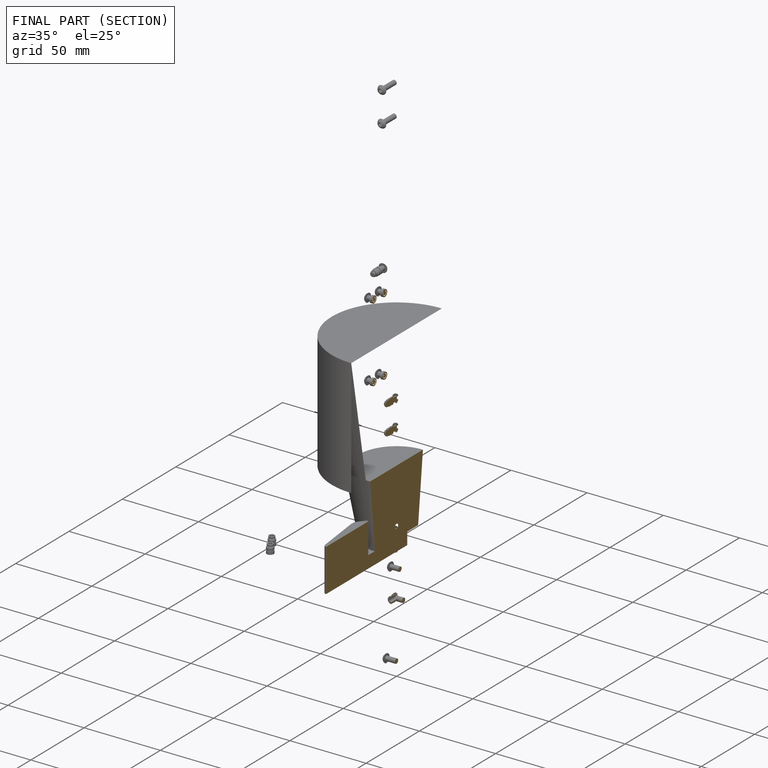
[diagram: finished part — half-section view (interior)]
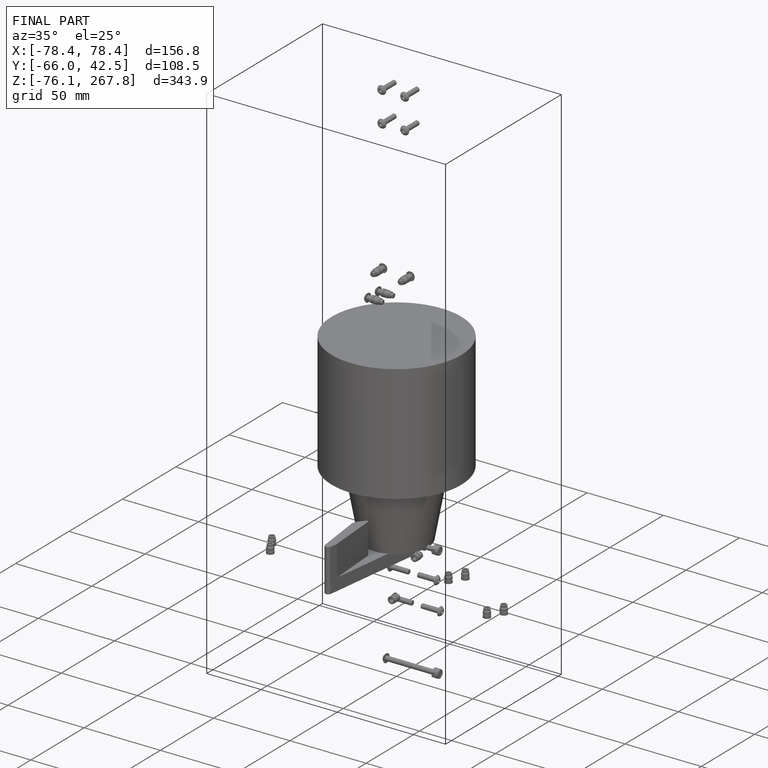
[diagram: finished part — iso view with bounding-box wireframe]
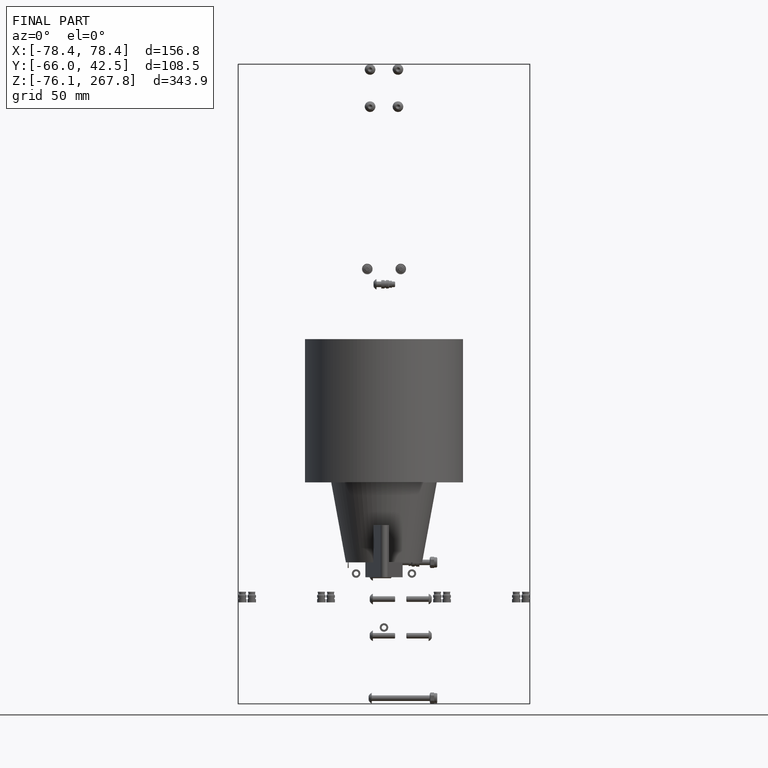
[diagram: finished part — front view with bounding-box wireframe]
